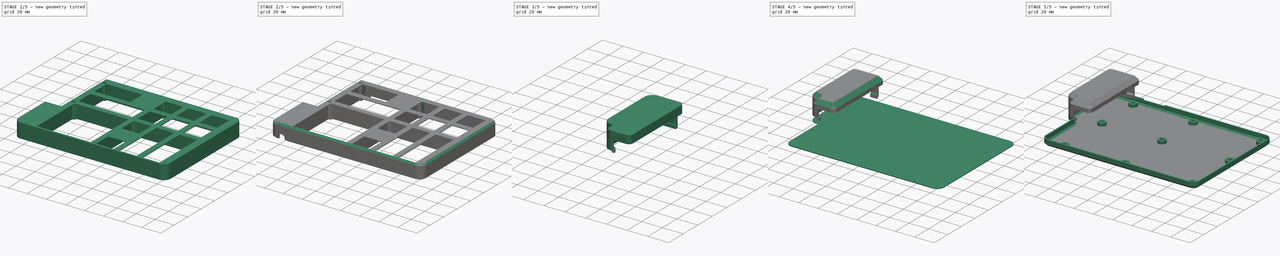
[diagram: build sequence overview — one tinted view per stage of 5, left to right]
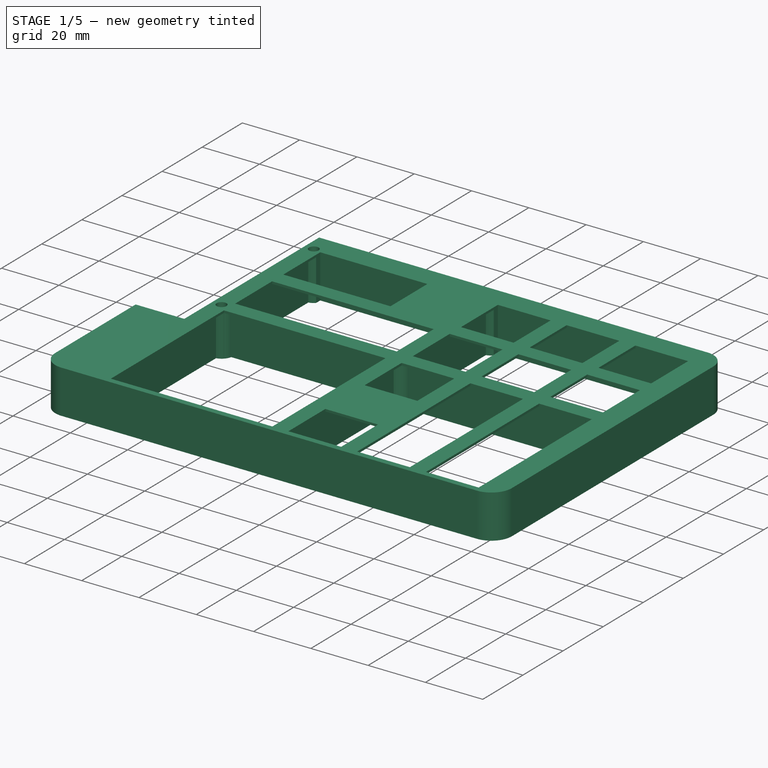
[diagram: stage 1 of 5 — iso view after this stage's code; geometry added in this stage tinted green]
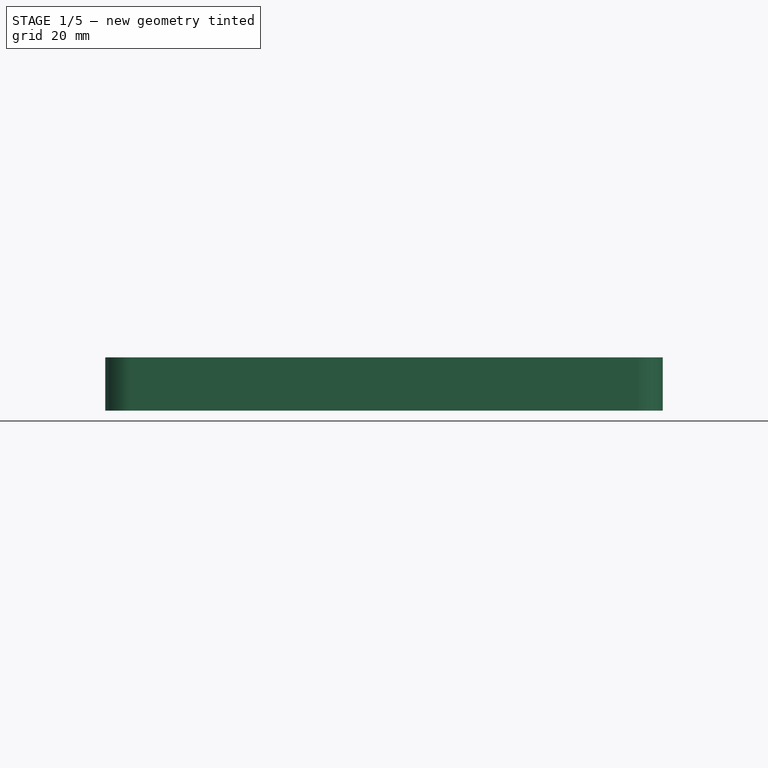
[diagram: stage 1 of 5 — front view after this stage's code; geometry added in this stage tinted green]
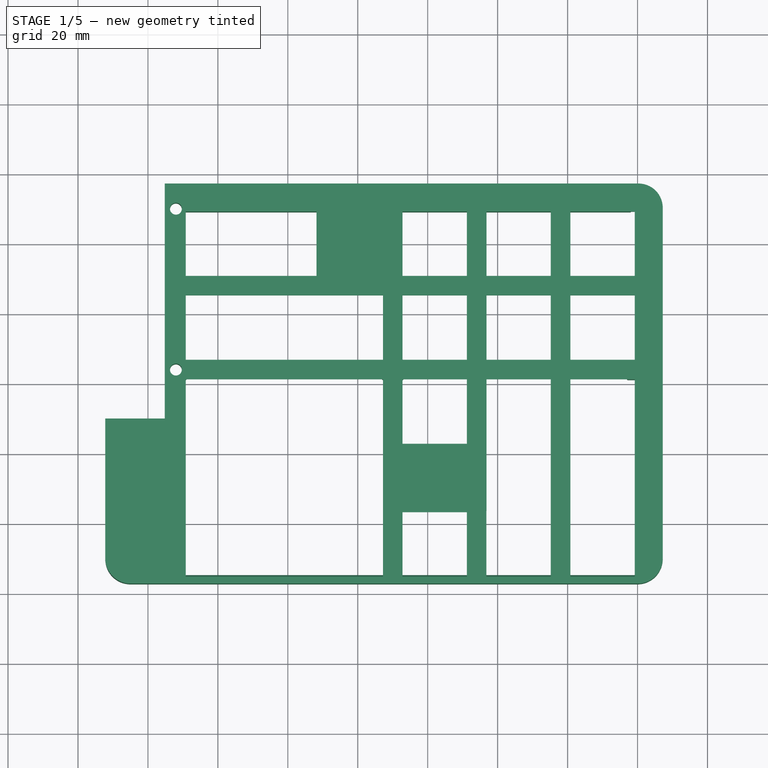
[diagram: stage 1 of 5 — top view after this stage's code; geometry added in this stage tinted green]
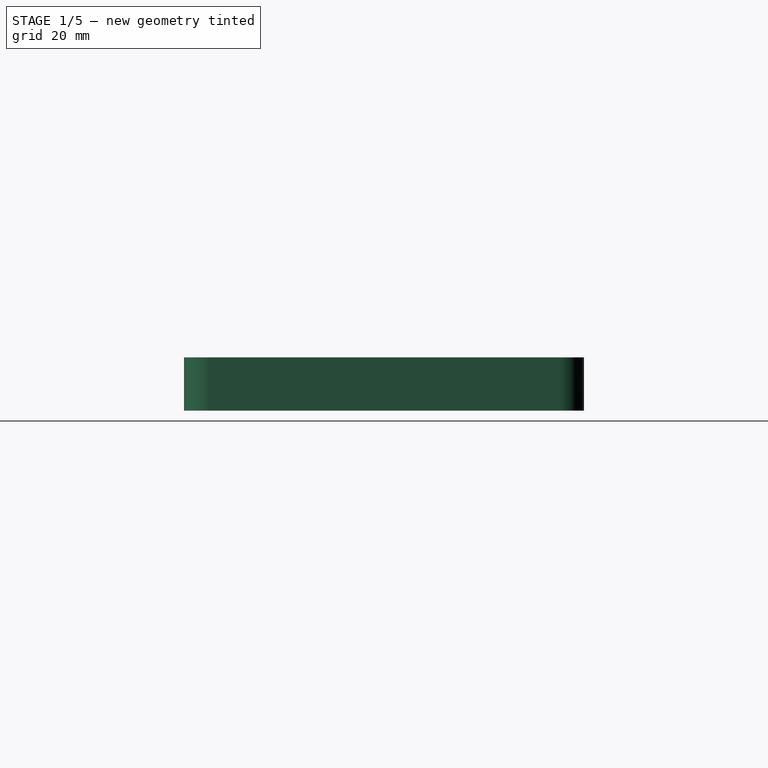
[diagram: stage 1 of 5 — right view after this stage's code; geometry added in this stage tinted green]
FCSTD DOCUMENT  (FreeCAD 2023.131R26244 +5365 (Git))
Label: KeyPadBox
License: All rights reserved
LicenseURL: http://en.wikipedia.org/wiki/All_rights_reserved
objects: Sketcher::SketchObject×36, PartDesign::Pocket×18, PartDesign::Pad×16, PartDesign::Chamfer×14, Part::SubShapeBinder×6, PartDesign::Plane×3, PartDesign::Body×3, PartDesign::SubShapeBinder×2, Part::Feature×1, App::Part×1, Spreadsheet::Sheet×1, PartDesign::Fillet×1
note: 234 computed .brp shape members not serialized (recipe doc carries the construction recipe); baked Part::Feature solids carry a one-line shape summary decoded from their .brp

FEATURE [Sketcher::SketchObject] Sketch008
  ArcFitTolerance = 1e-06
  AttachmentSupport = -> [XY_Plane]
  ExternalBSplineMaxDegree = 5
  ExternalBSplineTolerance = 0.0001
  ExternalGeometry = -> [Import]
  FixShape = 1
  FullyConstrained = true
  InternalTolerance = 1e-06
  InvalidShape = false
  MakeInternals = false
  MapMode = 5
  Support = -> [XY_Plane]
  TreeRank = 218
  ValidateShape = false
  sketch-geometry (5):
    g0: LineSegment StartX=89.5 StartY=-116.5 StartZ=0 EndX=89.5 EndY=-135.5 EndZ=0
    g1: LineSegment StartX=89.5 StartY=-135.5 StartZ=0 EndX=108.5 EndY=-135.5 EndZ=0
    g2: LineSegment StartX=108.5 StartY=-135.5 StartZ=0 EndX=108.5 EndY=-116.5 EndZ=0
    g3: LineSegment StartX=108.5 StartY=-116.5 StartZ=0 EndX=89.5 EndY=-116.5 EndZ=0
    g4: GeomPoint [constr] X=99 Y=-126 Z=0
  constraints (12):
    c: Coincident(g0,g1)
    c: Coincident(g1,g2)
    c: Coincident(g2,g3)
    c: Coincident(g3,g0)
    c: Horizontal(g1)
    c: Horizontal(g3)
    c: Vertical(g0)
    c: Vertical(g2)
    c: Symmetric(g1,g0,g4)
    c: Coincident(g4,g-3)
    c: Equal(g1,g2)
    c: Distance(g1) = 19
FEATURE [PartDesign::Body] Body  label="Bottom"
  AutoGroupSolids = false
  ClaimAllChildren = false
  ExportMode = 0
  FixShape = 1
  Group = -> [DatumPlane,Import,Sketch,Pad,Sketch001,Pad001,Chamfer,Sketch002,Pad002,Sketch003,Pocket,Sketch004,Pad003,Sketch005,Pad004,Sketch006,Pocket001,Sketch007,Pad005,Chamfer001,Chamfer002,Sketch008]
  InvalidShape = false
  Origin = -> Origin
  Tip = -> Chamfer002
  TreeRank = 192
  ValidateShape = false
  _ExportChildren = -> [DatumPlane,Import,Pad,Pad001,Chamfer,Pad002,Pocket,Pad003,Pad004,Pocket001,Pad005,Chamfer001,Chamfer002,Sketch008]
  _GroupVersion = 1
FEATURE [Part::SubShapeBinder] Import001  label="Import001(GrblHAL_Keypad PCB)"
  BindCopyOnChange = 0
  BindMode = 0
  ClaimChildren = false
  Context = -> Body001 [Import001.]
  EdgeTolerance = 1e-06
  FillStyle = 0
  FixShape = 1
  Fuse = false
  InvalidShape = false
  MakeFace = false
  MergeEdges = true
  OffsetFill = false
  OffsetIntersection = false
  OffsetJoinType = 0
  OffsetOpenResult = false
  Outline = false
  PartialLoad = false
  Relative = true
  SplitEdges = false
  Support = -> [Part006[Solid004.]]
  TightBound = false
  TreeRank = 232
  ValidateShape = false
  _Version = 8
FEATURE [PartDesign::Plane] DatumPlane001
  AttachmentOffset = pos=(0,0,14.4) rot=(0,0,1;0rad)
  AttachmentSupport = -> [Import001]
  FixShape = 1
  InvalidShape = false
  Length = 207.2
  MapMode = 5
  MinimumLength = 10
  MinimumWidth = 10
  Placement = pos=(0,0,16) rot=(0,0,1;0rad)
  ResizeMode = 0
  Support = -> [Import001]
  TreeRank = 231
  ValidateShape = false
  Width = 137.2
  expr: AttachmentOffset.Base.z = <<Vars>>.Top2PcbSpace
FEATURE [Part::SubShapeBinder] Import002  label="Import002(Chamfer002)"
  BindCopyOnChange = 0
  BindMode = 0
  ClaimChildren = false
  Context = -> Body001 [Import002.]
  EdgeTolerance = 1e-06
  FillStyle = 0
  FixShape = 1
  Fuse = false
  InvalidShape = false
  MakeFace = false
  MergeEdges = true
  OffsetFill = false
  OffsetIntersection = false
  OffsetJoinType = 0
  OffsetOpenResult = false
  Outline = false
  PartialLoad = false
  Relative = true
  SplitEdges = false
  Support = -> [Body[Chamfer002.]]
  TightBound = false
  TreeRank = 234
  ValidateShape = false
  _Version = 8
FEATURE [Sketcher::SketchObject] Sketch009
  ArcFitTolerance = 1e-06
  AttachmentSupport = -> [DatumPlane001]
  ExternalBSplineMaxDegree = 5
  ExternalBSplineTolerance = 0.0001
  ExternalGeometry = -> [Import001,Import002]
  FixShape = 1
  FullyConstrained = true
  InternalTolerance = 1e-06
  InvalidShape = false
  MakeInternals = false
  MapMode = 5
  Placement = pos=(0,0,16) rot=(0,0,1;0rad)
  Support = -> [DatumPlane001]
  TreeRank = 235
  ValidateShape = false
  expr: Constraints[336] = <<Vars>>.CapOpening
  sketch-geometry (163):
    g0: LineSegment StartX=70.8 StartY=-116.8 StartZ=0 EndX=70.8 EndY=-135.2 EndZ=0
    g1: LineSegment StartX=70.8 StartY=-135.2 StartZ=0 EndX=89.2 EndY=-135.2 EndZ=0
    g2: LineSegment [constr] StartX=89.2 StartY=-135.2 StartZ=0 EndX=89.2 EndY=-116.8 EndZ=0
    g3: LineSegment [constr] StartX=89.2 StartY=-116.8 StartZ=0 EndX=70.8 EndY=-116.8 EndZ=0
    g4: GeomPoint [constr] X=80 Y=-126 Z=0
    g5: LineSegment [constr] StartX=89.8 StartY=-116.8 StartZ=0 EndX=89.8 EndY=-135.2 EndZ=0
    g6: LineSegment StartX=89.8 StartY=-135.2 StartZ=0 EndX=108.2 EndY=-135.2 EndZ=0
    g7: LineSegment [constr] StartX=108.2 StartY=-135.2 StartZ=0 EndX=108.2 EndY=-116.8 EndZ=0
    g8: LineSegment [constr] StartX=108.2 StartY=-116.8 StartZ=0 EndX=89.8 EndY=-116.8 EndZ=0
    g9: GeomPoint [constr] X=99 Y=-126 Z=0
    g10: LineSegment StartX=127.2 StartY=-135.2 StartZ=0 EndX=127.2 EndY=-116.8 EndZ=0
    g11: LineSegment [constr] StartX=127.2 StartY=-116.8 StartZ=0 EndX=108.8 EndY=-116.8 EndZ=0
    g12: LineSegment [constr] StartX=108.8 StartY=-116.8 StartZ=0 EndX=108.8 EndY=-135.2 EndZ=0
    g13: LineSegment StartX=108.8 StartY=-135.2 StartZ=0 EndX=127.2 EndY=-135.2 EndZ=0
    g14: GeomPoint [constr] X=118 Y=-126 Z=0
    g15: LineSegment StartX=132.8 StartY=-116.8 StartZ=0 EndX=132.8 EndY=-135.2 EndZ=0
    g16: LineSegment StartX=132.8 StartY=-135.2 StartZ=0 EndX=151.2 EndY=-135.2 EndZ=0
    g17: LineSegment StartX=151.2 StartY=-135.2 StartZ=0 EndX=151.2 EndY=-116.8 EndZ=0
    g18: LineSegment StartX=151.2 StartY=-116.8 StartZ=0 EndX=132.8 EndY=-116.8 EndZ=0
    g19: GeomPoint [constr] X=142 Y=-126 Z=0
    g20: LineSegment StartX=156.785 StartY=-116.8 StartZ=0 EndX=156.785 EndY=-135.2 EndZ=0
    g21: LineSegment StartX=156.785 StartY=-135.2 StartZ=0 EndX=175.185 EndY=-135.2 EndZ=0
    g22: LineSegment StartX=175.185 StartY=-135.2 StartZ=0 EndX=175.185 EndY=-116.8 EndZ=0
    g23: LineSegment [constr] StartX=175.185 StartY=-116.8 StartZ=0 EndX=156.785 EndY=-116.8 EndZ=0
    g24: GeomPoint [constr] X=165.985 Y=-126 Z=0
    g25: LineSegment StartX=180.8 StartY=-116.8 StartZ=0 EndX=180.8 EndY=-135.2 EndZ=0
    g26: LineSegment StartX=180.8 StartY=-135.2 StartZ=0 EndX=199.2 EndY=-135.2 EndZ=0
    g27: LineSegment StartX=199.2 StartY=-135.2 StartZ=0 EndX=199.2 EndY=-116.8 EndZ=0
    g28: LineSegment [constr] StartX=199.2 StartY=-116.8 StartZ=0 EndX=180.8 EndY=-116.8 EndZ=0
    g29: GeomPoint [constr] X=190 Y=-126 Z=0
    g30: LineSegment StartX=180.8 StartY=-97.8 StartZ=0 EndX=180.8 EndY=-116.2 EndZ=0
    g31: LineSegment [constr] StartX=180.8 StartY=-116.2 StartZ=0 EndX=199.2 EndY=-116.2 EndZ=0
    g32: LineSegment StartX=199.2 StartY=-116.2 StartZ=0 EndX=199.2 EndY=-97.8 EndZ=0
    g33: LineSegment [constr] StartX=199.2 StartY=-97.8 StartZ=0 EndX=180.8 EndY=-97.8 EndZ=0
    g34: GeomPoint [constr] X=190 Y=-107 Z=0
    g35: LineSegment StartX=156.8 StartY=-97.8 StartZ=0 EndX=156.8 EndY=-116.2 EndZ=0
    g36: LineSegment [constr] StartX=156.8 StartY=-116.2 StartZ=0 EndX=175.2 EndY=-116.2 EndZ=0
    g37: LineSegment StartX=175.2 StartY=-116.2 StartZ=0 EndX=175.2 EndY=-97.8 EndZ=0
    g38: LineSegment [constr] StartX=175.2 StartY=-97.8 StartZ=0 EndX=156.8 EndY=-97.8 EndZ=0
    g39: GeomPoint [constr] X=166 Y=-107 Z=0
    g40: GeomPoint [constr] X=142 Y=-107 Z=0
    g41: LineSegment [constr] StartX=108.8 StartY=-97.8 StartZ=0 EndX=108.8 EndY=-116.2 EndZ=0
    g42: LineSegment [constr] StartX=108.8 StartY=-116.2 StartZ=0 EndX=127.2 EndY=-116.2 EndZ=0
    g43: LineSegment StartX=127.2 StartY=-116.2 StartZ=0 EndX=127.2 EndY=-97.8 EndZ=0
    g44: LineSegment [constr] StartX=127.2 StartY=-97.8 StartZ=0 EndX=108.8 EndY=-97.8 EndZ=0
    g45: GeomPoint [constr] X=118 Y=-107 Z=0
    g46: LineSegment [constr] StartX=89.8 StartY=-97.8 StartZ=0 EndX=89.8 EndY=-116.2 EndZ=0
    g47: LineSegment [constr] StartX=89.8 StartY=-116.2 StartZ=0 EndX=108.2 EndY=-116.2 EndZ=0
    g48: LineSegment [constr] StartX=108.2 StartY=-116.2 StartZ=0 EndX=108.2 EndY=-97.8 EndZ=0
    g49: LineSegment [constr] StartX=108.2 StartY=-97.8 StartZ=0 EndX=89.8 EndY=-97.8 EndZ=0
    g50: GeomPoint [constr] X=99 Y=-107 Z=0
    g51: LineSegment StartX=70.8 StartY=-97.8 StartZ=0 EndX=70.8 EndY=-116.2 EndZ=0
    g52: LineSegment [constr] StartX=70.8 StartY=-116.2 StartZ=0 EndX=89.2 EndY=-116.2 EndZ=0
    g53: LineSegment [constr] StartX=89.2 StartY=-116.2 StartZ=0 EndX=89.2 EndY=-97.8 EndZ=0
    g54: LineSegment [constr] StartX=89.2 StartY=-97.8 StartZ=0 EndX=70.8 EndY=-97.8 EndZ=0
    g55: GeomPoint [constr] X=80 Y=-107 Z=0
    g56: LineSegment StartX=70.8 StartY=-78.8 StartZ=0 EndX=70.8 EndY=-97.2 EndZ=0
    g57: LineSegment [constr] StartX=70.8 StartY=-97.2 StartZ=0 EndX=89.2 EndY=-97.2 EndZ=0
    g58: LineSegment [constr] StartX=89.2 StartY=-97.2 StartZ=0 EndX=89.2 EndY=-78.8 EndZ=0
    g59: LineSegment StartX=89.2 StartY=-78.8 StartZ=0 EndX=70.8 EndY=-78.8 EndZ=0
    g60: GeomPoint [constr] X=80 Y=-88 Z=0
    g61: LineSegment [constr] StartX=89.8 StartY=-78.8 StartZ=0 EndX=89.8 EndY=-97.2 EndZ=0
    g62: LineSegment [constr] StartX=89.8 StartY=-97.2 StartZ=0 EndX=108.2 EndY=-97.2 EndZ=0
    g63: LineSegment [constr] StartX=108.2 StartY=-97.2 StartZ=0 EndX=108.2 EndY=-78.8 EndZ=0
    g64: LineSegment StartX=108.2 StartY=-78.8 StartZ=0 EndX=89.8 EndY=-78.8 EndZ=0
    g65: GeomPoint [constr] X=99 Y=-88 Z=0
    g66: LineSegment [constr] StartX=108.8 StartY=-78.8 StartZ=0 EndX=108.8 EndY=-97.2 EndZ=0
    g67: LineSegment [constr] StartX=108.8 StartY=-97.2 StartZ=0 EndX=127.2 EndY=-97.2 EndZ=0
    g68: LineSegment StartX=127.2 StartY=-97.2 StartZ=0 EndX=127.2 EndY=-78.8 EndZ=0
    g69: LineSegment StartX=127.2 StartY=-78.8 StartZ=0 EndX=108.8 EndY=-78.8 EndZ=0
    g70: GeomPoint [constr] X=118 Y=-88 Z=0
    g71: LineSegment StartX=132.8 StartY=-78.8 StartZ=0 EndX=132.8 EndY=-97.2 EndZ=0
    g72: LineSegment StartX=132.8 StartY=-97.2 StartZ=0 EndX=151.2 EndY=-97.2 EndZ=0
    g73: LineSegment StartX=151.2 StartY=-97.2 StartZ=0 EndX=151.2 EndY=-78.8 EndZ=0
    g74: LineSegment StartX=151.2 StartY=-78.8 StartZ=0 EndX=132.8 EndY=-78.8 EndZ=0
    g75: GeomPoint [constr] X=142 Y=-88 Z=0
    g76: LineSegment StartX=156.8 StartY=-78.8 StartZ=0 EndX=156.8 EndY=-97.2 EndZ=0
    g77: LineSegment [constr] StartX=156.8 StartY=-97.2 StartZ=0 EndX=175.2 EndY=-97.2 EndZ=0
    g78: LineSegment StartX=175.2 StartY=-97.2 StartZ=0 EndX=175.2 EndY=-78.8 EndZ=0
    g79: LineSegment StartX=175.2 StartY=-78.8 StartZ=0 EndX=156.8 EndY=-78.8 EndZ=0
    g80: GeomPoint [constr] X=166 Y=-88 Z=0
    g81: LineSegment StartX=180.8 StartY=-78.8 StartZ=0 EndX=180.8 EndY=-97.2 EndZ=0
    g82: LineSegment [constr] StartX=180.8 StartY=-97.2 StartZ=0 EndX=199.2 EndY=-97.2 EndZ=0
    g83: LineSegment StartX=199.2 StartY=-97.2 StartZ=0 EndX=199.2 EndY=-78.8 EndZ=0
    g84: LineSegment StartX=199.2 StartY=-78.8 StartZ=0 EndX=180.8 EndY=-78.8 EndZ=0
    g85: GeomPoint [constr] X=190 Y=-88 Z=0
    g86: LineSegment StartX=180.8 StartY=-54.8 StartZ=0 EndX=180.8 EndY=-73.2 EndZ=0
    g87: LineSegment StartX=180.8 StartY=-73.2 StartZ=0 EndX=199.2 EndY=-73.2 EndZ=0
    g88: LineSegment StartX=199.2 StartY=-73.2 StartZ=0 EndX=199.2 EndY=-54.8 EndZ=0
    g89: LineSegment StartX=199.2 StartY=-54.8 StartZ=0 EndX=180.8 EndY=-54.8 EndZ=0
    g90: GeomPoint [constr] X=190 Y=-64 Z=0
    g91: LineSegment StartX=156.8 StartY=-54.8 StartZ=0 EndX=156.8 EndY=-73.2 EndZ=0
    g92: LineSegment StartX=156.8 StartY=-73.2 StartZ=0 EndX=175.2 EndY=-73.2 EndZ=0
    g93: LineSegment StartX=175.2 StartY=-73.2 StartZ=0 EndX=175.2 EndY=-54.8 EndZ=0
    g94: LineSegment StartX=175.2 StartY=-54.8 StartZ=0 EndX=156.8 EndY=-54.8 EndZ=0
    g95: GeomPoint [constr] X=166 Y=-64 Z=0
    g96: LineSegment StartX=156.8 StartY=-30.8 StartZ=0 EndX=156.8 EndY=-49.2 EndZ=0
    g97: LineSegment StartX=156.8 StartY=-49.2 StartZ=0 EndX=175.2 EndY=-49.2 EndZ=0
    g98: LineSegment StartX=175.2 StartY=-49.2 StartZ=0 EndX=175.2 EndY=-30.8 EndZ=0
    g99: LineSegment StartX=175.2 StartY=-30.8 StartZ=0 EndX=156.8 EndY=-30.8 EndZ=0
    g100: GeomPoint [constr] X=166 Y=-40 Z=0
    g101: LineSegment StartX=180.8 StartY=-30.8 StartZ=0 EndX=180.8 EndY=-49.2 EndZ=0
    g102: LineSegment StartX=180.8 StartY=-49.2 StartZ=0 EndX=199.2 EndY=-49.2 EndZ=0
    g103: LineSegment StartX=199.2 StartY=-49.2 StartZ=0 EndX=199.2 EndY=-30.8 EndZ=0
    g104: LineSegment StartX=199.2 StartY=-30.8 StartZ=0 EndX=180.8 EndY=-30.8 EndZ=0
    g105: GeomPoint [constr] X=190 Y=-40 Z=0
    g106: LineSegment StartX=132.8 StartY=-30.8 StartZ=0 EndX=132.8 EndY=-49.2 EndZ=0
    g107: LineSegment StartX=132.8 StartY=-49.2 StartZ=0 EndX=151.2 EndY=-49.2 EndZ=0
    g108: LineSegment StartX=151.2 StartY=-49.2 StartZ=0 EndX=151.2 EndY=-30.8 EndZ=0
    g109: LineSegment StartX=151.2 StartY=-30.8 StartZ=0 EndX=132.8 EndY=-30.8 EndZ=0
    g110: GeomPoint [constr] X=142 Y=-40 Z=0
    g111: LineSegment [constr] StartX=89.8 StartY=-30.8 StartZ=0 EndX=89.8 EndY=-49.2 EndZ=0
    g112: LineSegment StartX=89.8 StartY=-49.2 StartZ=0 EndX=108.2 EndY=-49.2 EndZ=0
    g113: LineSegment StartX=108.2 StartY=-49.2 StartZ=0 EndX=108.2 EndY=-30.8 EndZ=0
    g114: LineSegment StartX=108.2 StartY=-30.8 StartZ=0 EndX=89.8 EndY=-30.8 EndZ=0
    g115: GeomPoint [constr] X=99 Y=-40 Z=0
    g116: LineSegment StartX=70.8 StartY=-30.8 StartZ=0 EndX=70.8 EndY=-49.2 EndZ=0
    g117: LineSegment StartX=70.8 StartY=-49.2 StartZ=0 EndX=89.2 EndY=-49.2 EndZ=0
    g118: LineSegment [constr] StartX=89.2 StartY=-49.2 StartZ=0 EndX=89.2 EndY=-30.8 EndZ=0
    g119: LineSegment StartX=89.2 StartY=-30.8 StartZ=0 EndX=70.8 EndY=-30.8 EndZ=0
    g120: GeomPoint [constr] X=80 Y=-40 Z=0
    g121: LineSegment StartX=70.8 StartY=-54.8 StartZ=0 EndX=70.8 EndY=-73.2 EndZ=0
    g122: LineSegment StartX=70.8 StartY=-73.2 StartZ=0 EndX=89.2 EndY=-73.2 EndZ=0
    g123: LineSegment [constr] StartX=89.2 StartY=-73.2 StartZ=0 EndX=89.2 EndY=-54.8 EndZ=0
    g124: LineSegment StartX=89.2 StartY=-54.8 StartZ=0 EndX=70.8 EndY=-54.8 EndZ=0
    g125: GeomPoint [constr] X=80 Y=-64 Z=0
    g126: LineSegment [constr] StartX=89.8 StartY=-54.8 StartZ=0 EndX=89.8 EndY=-73.2 EndZ=0
    g127: LineSegment StartX=89.8 StartY=-73.2 StartZ=0 EndX=108.2 EndY=-73.2 EndZ=0
    g128: LineSegment [constr] StartX=108.2 StartY=-73.2 StartZ=0 EndX=108.2 EndY=-54.8 EndZ=0
    g129: LineSegment StartX=108.2 StartY=-54.8 StartZ=0 EndX=89.8 EndY=-54.8 EndZ=0
    g130: GeomPoint [constr] X=99 Y=-64 Z=0
    g131: LineSegment [constr] StartX=108.8 StartY=-54.8 StartZ=0 EndX=108.8 EndY=-73.2 EndZ=0
    g132: LineSegment StartX=108.8 StartY=-73.2 StartZ=0 EndX=127.2 EndY=-73.2 EndZ=0
    g133: LineSegment StartX=127.2 StartY=-73.2 StartZ=0 EndX=127.2 EndY=-54.8 EndZ=0
    g134: LineSegment StartX=127.2 StartY=-54.8 StartZ=0 EndX=108.8 EndY=-54.8 EndZ=0
    g135: GeomPoint [constr] X=118 Y=-64 Z=0
    g136: LineSegment StartX=132.8 StartY=-54.8 StartZ=0 EndX=132.8 EndY=-73.2 EndZ=0
    g137: LineSegment StartX=132.8 StartY=-73.2 StartZ=0 EndX=151.2 EndY=-73.2 EndZ=0
    g138: LineSegment StartX=151.2 StartY=-73.2 StartZ=0 EndX=151.2 EndY=-54.8 EndZ=0
    g139: LineSegment StartX=151.2 StartY=-54.8 StartZ=0 EndX=132.8 EndY=-54.8 EndZ=0
    g140: GeomPoint [constr] X=142 Y=-64 Z=0
    g141: LineSegment StartX=89.2 StartY=-78.8 StartZ=0 EndX=89.8 EndY=-78.8 EndZ=0
    g142: LineSegment StartX=108.2 StartY=-78.8 StartZ=0 EndX=108.8 EndY=-78.8 EndZ=0
    g143: LineSegment StartX=70.8 StartY=-97.8 StartZ=0 EndX=70.8 EndY=-97.2 EndZ=0
    g144: LineSegment StartX=70.8 StartY=-116.8 StartZ=0 EndX=70.8 EndY=-116.2 EndZ=0
    g145: LineSegment StartX=89.2 StartY=-135.2 StartZ=0 EndX=89.8 EndY=-135.2 EndZ=0
    g146: LineSegment StartX=108.2 StartY=-135.2 StartZ=0 EndX=108.8 EndY=-135.2 EndZ=0
    g147: LineSegment StartX=127.2 StartY=-116.8 StartZ=0 EndX=127.2 EndY=-116.2 EndZ=0
    g148: LineSegment StartX=127.2 StartY=-97.8 StartZ=0 EndX=127.2 EndY=-97.2 EndZ=0
    g149: LineSegment StartX=156.8 StartY=-97.2 StartZ=0 EndX=156.8 EndY=-97.8 EndZ=0
    g150: LineSegment StartX=156.8 StartY=-116.2 StartZ=0 EndX=156.785 EndY=-116.8 EndZ=0
    g151: LineSegment StartX=175.2 StartY=-97.2 StartZ=0 EndX=175.2 EndY=-97.8 EndZ=0
    g152: LineSegment StartX=175.2 StartY=-116.2 StartZ=0 EndX=175.185 EndY=-116.8 EndZ=0
    g153: LineSegment StartX=180.8 StartY=-97.2 StartZ=0 EndX=180.8 EndY=-97.8 EndZ=0
    g154: LineSegment StartX=199.2 StartY=-97.2 StartZ=0 EndX=199.2 EndY=-97.8 EndZ=0
    g155: LineSegment StartX=180.8 StartY=-116.2 StartZ=0 EndX=180.8 EndY=-116.8 EndZ=0
    g156: LineSegment StartX=199.2 StartY=-116.2 StartZ=0 EndX=199.2 EndY=-116.8 EndZ=0
    g157: LineSegment StartX=89.2 StartY=-73.2 StartZ=0 EndX=89.8 EndY=-73.2 EndZ=0
    g158: LineSegment StartX=108.2 StartY=-73.2 StartZ=0 EndX=108.8 EndY=-73.2 EndZ=0
    g159: LineSegment StartX=108.8 StartY=-54.8 StartZ=0 EndX=108.2 EndY=-54.8 EndZ=0
    g160: LineSegment StartX=89.8 StartY=-54.8 StartZ=0 EndX=89.2 EndY=-54.8 EndZ=0
    g161: LineSegment StartX=89.8 StartY=-49.2 StartZ=0 EndX=89.2 EndY=-49.2 EndZ=0
    g162: LineSegment StartX=89.8 StartY=-30.8 StartZ=0 EndX=89.2 EndY=-30.8 EndZ=0
  constraints (381):
    c: Coincident(g0,g1)
    c: Coincident(g1,g2)
    c: Coincident(g2,g3)
    c: Coincident(g3,g0)
    c: Horizontal(g1)
    c: Horizontal(g3)
    c: Vertical(g0)
    c: Vertical(g2)
    c: Symmetric(g1,g0,g4)
    c: Coincident(g4,g-3)
    c: Coincident(g5,g6)
    c: Coincident(g6,g7)
    c: Coincident(g7,g8)
    c: Coincident(g8,g5)
    c: Horizontal(g6)
    c: Horizontal(g8)
    c: Vertical(g5)
    c: Vertical(g7)
    c: Symmetric(g6,g5,g9)
    c: Coincident(g9,g-4)
    c: Coincident(g10,g11)
    c: Coincident(g11,g12)
    c: Coincident(g12,g13)
    c: Coincident(g13,g10)
    c: Horizontal(g11)
    c: Horizontal(g13)
    c: Vertical(g10)
    c: Vertical(g12)
    c: Symmetric(g11,g10,g14)
    c: Coincident(g14,g-5)
    c: Coincident(g15,g16)
    c: Coincident(g16,g17)
    c: Coincident(g17,g18)
    c: Coincident(g18,g15)
    c: Horizontal(g16)
    c: Horizontal(g18)
    c: Vertical(g15)
    c: Vertical(g17)
    c: Symmetric(g16,g15,g19)
    c: Coincident(g19,g-29)
    c: Coincident(g20,g21)
    c: Coincident(g21,g22)
    c: Coincident(g22,g23)
    c: Coincident(g23,g20)
    c: Horizontal(g21)
    c: Horizontal(g23)
    c: Vertical(g20)
    c: Vertical(g22)
    c: Symmetric(g21,g20,g24)
    c: Coincident(g24,g-32)
    c: Coincident(g25,g26)
    c: Coincident(g26,g27)
    c: Coincident(g27,g28)
    c: Coincident(g28,g25)
    c: Horizontal(g26)
    c: Horizontal(g28)
    c: Vertical(g25)
    c: Vertical(g27)
    c: Symmetric(g26,g25,g29)
    c: Coincident(g29,g-33)
    c: Coincident(g30,g31)
    c: Coincident(g31,g32)
    c: Coincident(g32,g33)
    c: Coincident(g33,g30)
    c: Horizontal(g31)
    c: Horizontal(g33)
    c: Vertical(g30)
    c: Vertical(g32)
    c: Symmetric(g31,g30,g34)
    c: Coincident(g34,g-31)
    c: Coincident(g35,g36)
    c: Coincident(g36,g37)
    c: Coincident(g37,g38)
    c: Coincident(g38,g35)
    c: Horizontal(g36)
    c: Horizontal(g38)
    c: Vertical(g35)
    c: Vertical(g37)
    c: Symmetric(g36,g35,g39)
    c: Coincident(g39,g-30)
    c: Coincident(g40,g-28)
    c: Coincident(g41,g42)
    c: Coincident(g42,g43)
    c: Coincident(g43,g44)
    c: Coincident(g44,g41)
    c: Horizontal(g42)
    c: Horizontal(g44)
    c: Vertical(g41)
    c: Vertical(g43)
    c: Symmetric(g42,g41,g45)
    c: Coincident(g45,g-15)
    c: Coincident(g46,g47)
    c: Coincident(g47,g48)
    c: Coincident(g48,g49)
    c: Coincident(g49,g46)
    c: Horizontal(g47)
    c: Horizontal(g49)
    c: Vertical(g46)
    c: Vertical(g48)
    c: Symmetric(g47,g46,g50)
    c: Coincident(g50,g-6)
    c: Coincident(g51,g52)
    c: Coincident(g52,g53)
    c: Coincident(g53,g54)
    c: Coincident(g54,g51)
    c: Horizontal(g52)
    c: Horizontal(g54)
    c: Vertical(g51)
    c: Vertical(g53)
    c: Symmetric(g52,g51,g55)
    c: Coincident(g55,g-7)
    c: Coincident(g56,g57)
    c: Coincident(g57,g58)
    c: Coincident(g58,g59)
    c: Coincident(g59,g56)
    c: Horizontal(g57)
    c: Horizontal(g59)
    c: Vertical(g56)
    c: Vertical(g58)
    c: Symmetric(g57,g56,g60)
    c: Coincident(g60,g-9)
    c: Coincident(g61,g62)
    c: Coincident(g62,g63)
    c: Coincident(g63,g64)
    c: Coincident(g64,g61)
    c: Horizontal(g62)
    c: Horizontal(g64)
    c: Vertical(g61)
    c: Vertical(g63)
    c: Symmetric(g62,g61,g65)
    c: Coincident(g65,g-10)
    c: Coincident(g66,g67)
    c: Coincident(g67,g68)
    c: Coincident(g68,g69)
    c: Coincident(g69,g66)
    c: Horizontal(g67)
    c: Horizontal(g69)
    c: Vertical(g66)
    c: Vertical(g68)
    c: Symmetric(g67,g66,g70)
    c: Coincident(g70,g-14)
    c: Coincident(g71,g72)
    c: Coincident(g72,g73)
    c: Coincident(g73,g74)
    c: Coincident(g74,g71)
    c: Horizontal(g72)
    c: Horizontal(g74)
    c: Vertical(g71)
    c: Vertical(g73)
    c: Symmetric(g72,g71,g75)
    c: Coincident(g75,g-27)
    c: Coincident(g76,g77)
    c: Coincident(g77,g78)
    c: Coincident(g78,g79)
    c: Coincident(g79,g76)
    c: Horizontal(g77)
    c: Horizontal(g79)
    c: Vertical(g76)
    c: Vertical(g78)
    c: Symmetric(g77,g76,g80)
    c: Coincident(g80,g-26)
    c: Coincident(g81,g82)
    c: Coincident(g82,g83)
    c: Coincident(g83,g84)
    c: Coincident(g84,g81)
    c: Horizontal(g82)
    c: Horizontal(g84)
    c: Vertical(g81)
    c: Vertical(g83)
    c: Symmetric(g82,g81,g85)
    c: Coincident(g85,g-25)
    c: Coincident(g86,g87)
    c: Coincident(g87,g88)
    c: Coincident(g88,g89)
    c: Coincident(g89,g86)
    c: Horizontal(g87)
    c: Horizontal(g89)
    c: Vertical(g86)
    c: Vertical(g88)
    c: Symmetric(g87,g86,g90)
    c: Coincident(g90,g-24)
    c: Coincident(g91,g92)
    c: Coincident(g92,g93)
    c: Coincident(g93,g94)
    c: Coincident(g94,g91)
    c: Horizontal(g92)
    c: Horizontal(g94)
    c: Vertical(g91)
    c: Vertical(g93)
    c: Symmetric(g92,g91,g95)
    c: Coincident(g95,g-23)
    c: Coincident(g96,g97)
    c: Coincident(g97,g98)
    c: Coincident(g98,g99)
    c: Coincident(g99,g96)
    c: Horizontal(g97)
    c: Horizontal(g99)
    c: Vertical(g96)
    c: Vertical(g98)
    c: Symmetric(g97,g96,g100)
    c: Coincident(g100,g-20)
    c: Coincident(g101,g102)
    c: Coincident(g102,g103)
    c: Coincident(g103,g104)
    c: Coincident(g104,g101)
    c: Horizontal(g102)
    c: Horizontal(g104)
    c: Vertical(g101)
    c: Vertical(g103)
    c: Symmetric(g102,g101,g105)
    c: Coincident(g105,g-22)
    c: Coincident(g106,g107)
    c: Coincident(g107,g108)
    c: Coincident(g108,g109)
    c: Coincident(g109,g106)
    c: Horizontal(g107)
    c: Horizontal(g109)
    c: Vertical(g106)
    c: Vertical(g108)
    c: Symmetric(g107,g106,g110)
    c: Coincident(g110,g-19)
    c: Coincident(g111,g112)
    c: Coincident(g112,g113)
    c: Coincident(g113,g114)
    c: Coincident(g114,g111)
    c: Horizontal(g112)
    c: Horizontal(g114)
    c: Vertical(g111)
    c: Vertical(g113)
    c: Symmetric(g112,g111,g115)
    c: Coincident(g115,g-17)
    c: Coincident(g116,g117)
    c: Coincident(g117,g118)
    c: Coincident(g118,g119)
    c: Coincident(g119,g116)
    c: Horizontal(g117)
    c: Horizontal(g119)
    c: Vertical(g116)
    c: Vertical(g118)
    c: Symmetric(g117,g116,g120)
    c: Coincident(g120,g-16)
    c: Coincident(g121,g122)
    c: Coincident(g122,g123)
    c: Coincident(g123,g124)
    c: Coincident(g124,g121)
    c: Horizontal(g122)
    c: Horizontal(g124)
    c: Vertical(g121)
    c: Vertical(g123)
    c: Symmetric(g122,g121,g125)
    c: Coincident(g125,g-11)
    c: Coincident(g126,g127)
    c: Coincident(g127,g128)
    c: Coincident(g128,g129)
    c: Coincident(g129,g126)
    c: Horizontal(g127)
    c: Horizontal(g129)
    c: Vertical(g126)
    c: Vertical(g128)
    c: Symmetric(g127,g126,g130)
    c: Coincident(g130,g-12)
    c: Coincident(g131,g132)
    c: Coincident(g132,g133)
    c: Coincident(g133,g134)
    c: Coincident(g134,g131)
    c: Horizontal(g132)
    c: Horizontal(g134)
    c: Vertical(g131)
    c: Vertical(g133)
    c: Symmetric(g132,g131,g135)
    c: Coincident(g135,g-13)
    c: Coincident(g136,g137)
    c: Coincident(g137,g138)
    c: Coincident(g138,g139)
    c: Coincident(g139,g136)
    c: Horizontal(g137)
    c: Horizontal(g139)
    c: Vertical(g136)
    c: Vertical(g138)
    c: Symmetric(g137,g136,g140)
    c: Coincident(g140,g-21)
    c: Equal(g51,g0)
    c: Equal(g0,g5)
    c: Equal(g5,g12)
    c: Equal(g12,g15)
    c: Equal(g15,g20)
    c: Equal(g20,g25)
    c: Equal(g25,g30)
    c: Equal(g30,g35)
    c: Equal(g35,g41)
    c: Equal(g41,g46)
    c: Equal(g46,g56)
    c: Equal(g56,g61)
    c: Equal(g61,g66)
    c: Equal(g66,g71)
    c: Equal(g71,g76)
    c: Equal(g76,g81)
    c: Equal(g81,g121)
    c: Equal(g121,g126)
    c: Equal(g126,g131)
    c: Equal(g131,g136)
    c: Equal(g136,g91)
    c: Equal(g91,g86)
    c: Equal(g86,g116)
    c: Equal(g116,g111)
    c: Equal(g111,g106)
    c: Equal(g106,g96)
    c: Equal(g96,g101)
    c: Equal(g117,g112)
    c: Equal(g112,g107)
    c: Equal(g107,g97)
    c: Equal(g97,g102)
    c: Equal(g102,g87)
    c: Equal(g87,g92)
    c: Equal(g92,g137)
    c: Equal(g137,g132)
    c: Equal(g132,g127)
    c: Equal(g127,g122)
    c: Equal(g122,g57)
    c: Equal(g57,g62)
    c: Equal(g62,g67)
    c: Equal(g67,g72)
    c: Equal(g72,g77)
    c: Equal(g77,g82)
    c: Equal(g82,g31)
    c: Equal(g31,g36)
    c: Equal(g36,g42)
    c: Equal(g42,g47)
    c: Equal(g47,g52)
    c: Equal(g52,g1)
    c: Equal(g1,g6)
    c: Equal(g6,g13)
    c: Equal(g13,g16)
    c: Equal(g16,g21)
    c: Equal(g21,g26)
    c: Equal(g117,g116)
    c: Distance(g3) = 18.4
    c: Coincident(g141,g59)
    c: Coincident(g141,g64)
    c: Coincident(g142,g64)
    c: Coincident(g142,g69)
    c: Coincident(g143,g51)
    c: Coincident(g143,g56)
    c: Coincident(g144,g0)
    c: Coincident(g144,g51)
    c: Coincident(g145,g1)
    c: Coincident(g145,g6)
    c: Coincident(g146,g6)
    c: Coincident(g146,g13)
    c: Coincident(g147,g10)
    c: Coincident(g147,g43)
    c: Coincident(g148,g43)
    c: Coincident(g148,g68)
    c: Coincident(g149,g76)
    c: Coincident(g149,g35)
    c: Coincident(g150,g35)
    c: Coincident(g150,g20)
    c: Coincident(g151,g78)
    c: Coincident(g151,g37)
    c: Coincident(g152,g37)
    c: Coincident(g152,g22)
    c: Coincident(g153,g81)
    c: Coincident(g153,g30)
    c: Coincident(g154,g83)
    c: Coincident(g154,g32)
    c: Coincident(g155,g30)
    c: Coincident(g155,g25)
    c: Coincident(g156,g32)
    c: Coincident(g156,g27)
    c: Coincident(g157,g122)
    c: Coincident(g157,g127)
    c: Coincident(g158,g127)
    c: Coincident(g158,g132)
    c: Coincident(g159,g134)
    c: Coincident(g159,g129)
    c: Coincident(g160,g129)
    c: Coincident(g160,g124)
    c: Coincident(g161,g112)
    c: Coincident(g161,g117)
    c: Coincident(g162,g114)
    c: Coincident(g162,g119)
FEATURE [PartDesign::Pad] Pad006
  AddSubType = 0
  AlongSketchNormal = false
  AutoTaperInnerAngle = true
  CheckUpToFaceLimits = true
  ClaimChildren = false
  Direction = (0,0,1)
  Fit = 0
  FitJoin = 0
  FixShape = 1
  InnerFit = 0
  InnerFitJoin = 0
  InvalidShape = false
  Length = 0.8
  Length2 = 100
  Linearize = true
  NewSolid = false
  Profile = -> Sketch009
  Refine = true
  Reversed = true
  Suppress = false
  TaperInnerAngle = 0
  TaperInnerAngleRev = 0
  TreeRank = 236
  Type = 0
  ValidateShape = false
  _ProfileBasedVersion = 1
  expr: Length = <<Vars>>.BoxThickHoriz
FEATURE [Sketcher::SketchObject] Sketch010
  ArcFitTolerance = 1e-06
  AttachmentSupport = -> [Pad006]
  ExternalBSplineMaxDegree = 5
  ExternalBSplineTolerance = 0.0001
  ExternalGeometry = -> [Import001]
  FixShape = 1
  FullyConstrained = true
  InternalTolerance = 1e-06
  InvalidShape = false
  MakeInternals = false
  MapMode = 5
  Placement = pos=(0,0,15.2) rot=(1,0,0;3.14159rad)
  Support = -> [Pad006]
  TreeRank = 237
  ValidateShape = false
  sketch-geometry (9):
    g0: Circle CenterX=68 CenterY=30 CenterZ=0 NormalX=0 NormalY=0 NormalZ=1 AngleXU=0 Radius=4
    g1: Circle CenterX=68 CenterY=76 CenterZ=0 NormalX=0 NormalY=0 NormalZ=1 AngleXU=0 Radius=4
    g2: Circle CenterX=130 CenterY=76 CenterZ=0 NormalX=0 NormalY=0 NormalZ=1 AngleXU=0 Radius=4
    g3: Circle CenterX=130 CenterY=30 CenterZ=0 NormalX=0 NormalY=0 NormalZ=1 AngleXU=0 Radius=4
    g4: Circle CenterX=200 CenterY=30 CenterZ=0 NormalX=0 NormalY=0 NormalZ=1 AngleXU=0 Radius=4
    g5: Circle CenterX=200 CenterY=76 CenterZ=0 NormalX=0 NormalY=0 NormalZ=1 AngleXU=0 Radius=4
    g6: Circle CenterX=200 CenterY=131 CenterZ=0 NormalX=0 NormalY=0 NormalZ=1 AngleXU=0 Radius=4
    g7: Circle CenterX=130 CenterY=131 CenterZ=0 NormalX=0 NormalY=0 NormalZ=1 AngleXU=0 Radius=4
    g8: Circle CenterX=68 CenterY=131 CenterZ=0 NormalX=0 NormalY=0 NormalZ=1 AngleXU=0 Radius=4
  constraints (18):
    c: Coincident(g0,g-3)
    c: Coincident(g1,g-4)
    c: Coincident(g2,g-6)
    c: Coincident(g3,g-9)
    c: Coincident(g4,g-10)
    c: Coincident(g5,g-7)
    c: Coincident(g6,g-11)
    c: Coincident(g7,g-8)
    c: Coincident(g8,g-5)
    c: Equal(g7,g8)
    c: Equal(g8,g6)
    c: Equal(g6,g5)
    c: Equal(g5,g2)
    c: Equal(g2,g1)
    c: Equal(g1,g0)
    c: Equal(g0,g3)
    c: Equal(g3,g4)
    c: Diameter(g8) = 8
FEATURE [PartDesign::Pad] Pad007
  AddSubType = 0
  AlongSketchNormal = false
  AutoTaperInnerAngle = true
  BaseFeature = -> Pad006
  CheckUpToFaceLimits = true
  ClaimChildren = false
  Direction = (0,0,-1)
  Fit = 0
  FitJoin = 0
  FixShape = 1
  InnerFit = 0
  InnerFitJoin = 0
  InvalidShape = false
  Length = 14.4
  Length2 = 100
  Linearize = true
  NewSolid = false
  Profile = -> Sketch010
  Refine = true
  Suppress = false
  TaperInnerAngle = 0
  TaperInnerAngleRev = 0
  TreeRank = 238
  Type = 0
  ValidateShape = false
  _ProfileBasedVersion = 1
  expr: Length = <<Vars>>.Top2PcbSpace
FEATURE [Sketcher::SketchObject] Sketch011
  ArcFitTolerance = 1e-06
  AttachmentSupport = -> [Pad007]
  ExternalBSplineMaxDegree = 5
  ExternalBSplineTolerance = 0.0001
  ExternalGeometry = -> [Pad007]
  FixShape = 1
  FullyConstrained = true
  InternalTolerance = 1e-06
  InvalidShape = false
  MakeInternals = false
  MapMode = 5
  Placement = pos=(0,0,16) rot=(0,0,1;0rad)
  Support = -> [Pad007]
  TreeRank = 239
  ValidateShape = false
FEATURE [PartDesign::Pocket] Pocket002
  AddSubType = 1
  AutoTaperInnerAngle = true
  BaseFeature = -> Pad007
  CheckUpToFaceLimits = true
  ClaimChildren = false
  Fit = 0
  FitJoin = 0
  FixShape = 1
  InnerFit = 0
  InnerFitJoin = 0
  InvalidShape = false
  Length = 5
  Length2 = 100
  Linearize = true
  NewSolid = false
  Profile = -> Sketch011
  Refine = true
  Suppress = false
  TaperInnerAngle = 0
  TaperInnerAngleRev = 0
  TreeRank = 240
  Type = 1
  ValidateShape = false
  _ProfileBasedVersion = 1
  _Version = 1
FEATURE [Sketcher::SketchObject] Sketch012
  ArcFitTolerance = 1e-06
  AttachmentSupport = -> [Pocket002]
  ExternalBSplineMaxDegree = 5
  ExternalBSplineTolerance = 0.0001
  ExternalGeometry = -> [Pocket002]
  FixShape = 1
  FullyConstrained = true
  InternalTolerance = 1e-06
  InvalidShape = false
  MakeInternals = false
  MapMode = 5
  Placement = pos=(0,0,15.2) rot=(1,0,0;3.14159rad)
  Support = -> [Pocket002]
  TreeRank = 241
  ValidateShape = false
  sketch-geometry (3):
    g0: LineSegment StartX=47.8 StartY=90 StartZ=0 EndX=64.8 EndY=90 EndZ=0
    g1: LineSegment StartX=64.8 StartY=90 StartZ=0 EndX=64.8 EndY=22.8 EndZ=0
    g2: LineSegment StartX=64.8 StartY=22.8 StartZ=0 EndX=45 EndY=22.8 EndZ=0
  constraints (8):
    c: Coincident(g0,g1)
    c: PointOnObject(g1,g-7)
    c: Vertical(g1)
    c: Coincident(g1,g2)
    c: Coincident(g2,g-7)
    c: Horizontal(g0)
    c: DistanceX(g-6,g1) = 27
    c: Coincident(g0,g-5)
FEATURE [PartDesign::Pocket] Pocket003
  AddSubType = 1
  AutoTaperInnerAngle = true
  BaseFeature = -> Pocket002
  CheckUpToFaceLimits = true
  ClaimChildren = false
  Fit = 0
  FitJoin = 0
  FixShape = 1
  InnerFit = 0
  InnerFitJoin = 0
  InvalidShape = false
  Length = 5
  Length2 = 100
  Linearize = true
  Midplane = true
  NewSolid = false
  Profile = -> Sketch012
  Refine = true
  Suppress = false
  TaperInnerAngle = 0
  TaperInnerAngleRev = 0
  TreeRank = 242
  Type = 1
  ValidateShape = false
  _ProfileBasedVersion = 1
  _Version = 1
FEATURE [Sketcher::SketchObject] Sketch013
  ArcFitTolerance = 1e-06
  AttachmentSupport = -> [Pocket003]
  ExternalBSplineMaxDegree = 5
  ExternalBSplineTolerance = 0.0001
  ExternalGeometry = -> [Pocket003]
  FixShape = 1
  FullyConstrained = false
  InternalTolerance = 1e-06
  InvalidShape = false
  MakeInternals = false
  MapMode = 5
  Placement = pos=(0,0,0.8) rot=(1,0,0;3.14159rad)
  Support = -> [Pocket003]
  TreeRank = 243
  ValidateShape = false
  expr: Constraints[9] = <<Vars>>.InsertHoleDiam
  sketch-geometry (7):
    g0: Circle CenterX=130 CenterY=30 CenterZ=0 NormalX=0 NormalY=0 NormalZ=1 AngleXU=0 Radius=2.1
    g1: Circle CenterX=130 CenterY=76 CenterZ=0 NormalX=0 NormalY=0 NormalZ=1 AngleXU=0 Radius=2.1
    g2: Circle CenterX=130 CenterY=131 CenterZ=0 NormalX=0 NormalY=0 NormalZ=1 AngleXU=0 Radius=2.1
    g3: Circle CenterX=200 CenterY=76 CenterZ=0 NormalX=0 NormalY=0 NormalZ=1 AngleXU=0 Radius=2.1
    g4: Circle CenterX=200 CenterY=30 CenterZ=0 NormalX=0 NormalY=0 NormalZ=1 AngleXU=0 Radius=2.1
    g5: Circle CenterX=200 CenterY=131 CenterZ=0 NormalX=0 NormalY=0 NormalZ=1 AngleXU=0 Radius=2.1
    g6: Circle CenterX=68 CenterY=131 CenterZ=0 NormalX=0 NormalY=0 NormalZ=1 AngleXU=0 Radius=2.1
  constraints (13):
    c: Coincident(g0,g-5)
    c: Coincident(g2,g-6)
    c: Coincident(g3,g-3)
    c: Coincident(g4,g-4)
    c: Coincident(g5,g-7)
    c: Equal(g0,g2)
    c: Equal(g2,g5)
    c: Equal(g5,g3)
    c: Equal(g3,g4)
    c: Diameter(g2) = 4.2
    c: Coincident(g6,g-8)
    c: Equal(g6,g2)
    c: Coincident(g1,g-9)
FEATURE [PartDesign::Pocket] Pocket004
  AddSubType = 1
  AutoTaperInnerAngle = true
  BaseFeature = -> Pocket003
  CheckUpToFaceLimits = true
  ClaimChildren = false
  Fit = 0
  FitJoin = 0
  FixShape = 1
  InnerFit = 0
  InnerFitJoin = 0
  InvalidShape = false
  Length = 10
  Length2 = 100
  Linearize = true
  NewSolid = false
  Profile = -> Sketch013
  Refine = true
  Suppress = false
  TaperInnerAngle = 0
  TaperInnerAngleRev = 0
  TreeRank = 244
  Type = 0
  ValidateShape = false
  _ProfileBasedVersion = 1
  _Version = 1
FEATURE [Sketcher::SketchObject] Sketch014
  ArcFitTolerance = 1e-06
  AttachmentSupport = -> [Pocket004]
  ExternalBSplineMaxDegree = 5
  ExternalBSplineTolerance = 0.0001
  ExternalGeometry = -> [Pocket004]
  FixShape = 1
  FullyConstrained = true
  InternalTolerance = 1e-06
  InvalidShape = false
  MakeInternals = false
  MapMode = 5
  Placement = pos=(0,0,0.8) rot=(1,0,0;3.14159rad)
  Support = -> [Pocket004]
  TreeRank = 245
  ValidateShape = false
FEATURE [Sketcher::SketchObject] Sketch015
  ArcFitTolerance = 1e-06
  AttachmentSupport = -> [Pocket004]
  ExternalBSplineMaxDegree = 5
  ExternalBSplineTolerance = 0.0001
  ExternalGeometry = -> [Pocket004]
  FixShape = 1
  FullyConstrained = true
  InternalTolerance = 1e-06
  InvalidShape = false
  MakeInternals = false
  MapMode = 5
  Placement = pos=(0,0,0.8) rot=(1,0,0;3.14159rad)
  Support = -> [Pocket004]
  TreeRank = 246
  ValidateShape = false
  expr: Constraints[2] = <<Vars>>.ScrewHoleDiam
  sketch-geometry (2):
    g0: Circle CenterX=68 CenterY=76 CenterZ=0 NormalX=0 NormalY=0 NormalZ=1 AngleXU=0 Radius=1.7
    g1: Circle CenterX=68 CenterY=30 CenterZ=0 NormalX=0 NormalY=0 NormalZ=1 AngleXU=0 Radius=1.7
  constraints (4):
    c: Coincident(g1,g-3)
    c: Equal(g0,g1)
    c: Diameter(g1) = 3.4
    c: Coincident(g0,g-4)
FEATURE [PartDesign::Pocket] Pocket005
  AddSubType = 1
  AutoTaperInnerAngle = true
  BaseFeature = -> Pocket004
  CheckUpToFaceLimits = true
  ClaimChildren = false
  Fit = 0
  FitJoin = 0
  FixShape = 1
  InnerFit = 0
  InnerFitJoin = 0
  InvalidShape = false
  Length = 5
  Length2 = 100
  Linearize = true
  NewSolid = false
  Profile = -> Sketch015
  Refine = true
  Suppress = false
  TaperInnerAngle = 0
  TaperInnerAngleRev = 0
  TreeRank = 247
  Type = 1
  ValidateShape = false
  _ProfileBasedVersion = 1
  _Version = 1
FEATURE [Sketcher::SketchObject] Sketch016
  ArcFitTolerance = 1e-06
  AttachmentSupport = -> [Pocket005]
  ExternalBSplineMaxDegree = 5
  ExternalBSplineTolerance = 0.0001
  ExternalGeometry = -> [Pocket005]
  FixShape = 1
  FullyConstrained = true
  InternalTolerance = 1e-06
  InvalidShape = false
  MakeInternals = false
  MapMode = 5
  Placement = pos=(0,0,0.8) rot=(1,0,0;3.14159rad)
  Support = -> [Pocket005]
  TreeRank = 248
  ValidateShape = false
  sketch-geometry (40):
    g0: LineSegment StartX=129.2 StartY=72.0808 StartZ=0 EndX=130.8 EndY=72.0808 EndZ=0
    g1: LineSegment StartX=130.8 StartY=72.0808 StartZ=0 EndX=130.8 EndY=33.9192 EndZ=0
    g2: LineSegment StartX=130.8 StartY=33.9192 StartZ=0 EndX=129.2 EndY=33.9192 EndZ=0
    g3: LineSegment StartX=129.2 StartY=33.9192 StartZ=0 EndX=129.2 EndY=72.0808 EndZ=0
    g4: LineSegment StartX=71.9192 StartY=30.8 StartZ=0 EndX=126.081 EndY=30.8 EndZ=0
    g5: LineSegment StartX=126.081 StartY=30.8 StartZ=0 EndX=126.081 EndY=29.2 EndZ=0
    g6: LineSegment StartX=126.081 StartY=29.2 StartZ=0 EndX=71.9192 EndY=29.2 EndZ=0
    g7: LineSegment StartX=71.9192 StartY=29.2 StartZ=0 EndX=71.9192 EndY=30.8 EndZ=0
    g8: LineSegment StartX=67.2 StartY=72.0808 StartZ=0 EndX=68.8 EndY=72.0808 EndZ=0
    g9: LineSegment StartX=68.8 StartY=72.0808 StartZ=0 EndX=68.8 EndY=33.9192 EndZ=0
    g10: LineSegment StartX=68.8 StartY=33.9192 StartZ=0 EndX=67.2 EndY=33.9192 EndZ=0
    g11: LineSegment StartX=67.2 StartY=33.9192 StartZ=0 EndX=67.2 EndY=72.0808 EndZ=0
    g12: LineSegment StartX=67.2 StartY=127.081 StartZ=0 EndX=68.8 EndY=127.081 EndZ=0
    g13: LineSegment StartX=68.8 StartY=127.081 StartZ=0 EndX=68.8 EndY=79.9192 EndZ=0
    g14: LineSegment StartX=68.8 StartY=79.9192 StartZ=0 EndX=67.2 EndY=79.9192 EndZ=0
    g15: LineSegment StartX=67.2 StartY=79.9192 StartZ=0 EndX=67.2 EndY=127.081 EndZ=0
    g16: LineSegment StartX=129.2 StartY=127.081 StartZ=0 EndX=130.8 EndY=127.081 EndZ=0
    g17: LineSegment StartX=130.8 StartY=127.081 StartZ=0 EndX=130.8 EndY=79.9192 EndZ=0
    g18: LineSegment StartX=130.8 StartY=79.9192 StartZ=0 EndX=129.2 EndY=79.9192 EndZ=0
    g19: LineSegment StartX=129.2 StartY=79.9192 StartZ=0 EndX=129.2 EndY=127.081 EndZ=0
    g20: LineSegment StartX=71.9192 StartY=76.8 StartZ=0 EndX=126.081 EndY=76.8 EndZ=0
    g21: LineSegment StartX=126.081 StartY=76.8 StartZ=0 EndX=126.081 EndY=75.2 EndZ=0
    g22: LineSegment StartX=126.081 StartY=75.2 StartZ=0 EndX=71.9192 EndY=75.2 EndZ=0
    g23: LineSegment StartX=71.9192 StartY=75.2 StartZ=0 EndX=71.9192 EndY=76.8 EndZ=0
    g24: LineSegment StartX=133.919 StartY=29.2 StartZ=0 EndX=196.081 EndY=29.2 EndZ=0
    g25: LineSegment StartX=196.081 StartY=29.2 StartZ=0 EndX=196.081 EndY=30.8 EndZ=0
    g26: LineSegment StartX=196.081 StartY=30.8 StartZ=0 EndX=133.919 EndY=30.8 EndZ=0
    g27: LineSegment StartX=133.919 StartY=30.8 StartZ=0 EndX=133.919 EndY=29.2 EndZ=0
    g28: LineSegment StartX=199.2 StartY=33.9192 StartZ=0 EndX=200.8 EndY=33.9192 EndZ=0
    g29: LineSegment StartX=200.8 StartY=33.9192 StartZ=0 EndX=200.8 EndY=72.0808 EndZ=0
    g30: LineSegment StartX=200.8 StartY=72.0808 StartZ=0 EndX=199.2 EndY=72.0808 EndZ=0
    g31: LineSegment StartX=199.2 StartY=72.0808 StartZ=0 EndX=199.2 EndY=33.9192 EndZ=0
    g32: LineSegment StartX=199.2 StartY=127.081 StartZ=0 EndX=200.8 EndY=127.081 EndZ=0
    g33: LineSegment StartX=200.8 StartY=127.081 StartZ=0 EndX=200.8 EndY=79.9192 EndZ=0
    g34: LineSegment StartX=200.8 StartY=79.9192 StartZ=0 EndX=199.2 EndY=79.9192 EndZ=0
    g35: LineSegment StartX=199.2 StartY=79.9192 StartZ=0 EndX=199.2 EndY=127.081 EndZ=0
    g36: LineSegment StartX=133.919 StartY=76.8 StartZ=0 EndX=196.081 EndY=76.8 EndZ=0
    g37: LineSegment StartX=196.081 StartY=76.8 StartZ=0 EndX=196.081 EndY=75.2 EndZ=0
    g38: LineSegment StartX=196.081 StartY=75.2 StartZ=0 EndX=133.919 EndY=75.2 EndZ=0
    g39: LineSegment StartX=133.919 StartY=75.2 StartZ=0 EndX=133.919 EndY=76.8 EndZ=0
  constraints (120):
    c: Coincident(g0,g1)
    c: Coincident(g1,g2)
    c: Coincident(g2,g3)
    c: Coincident(g3,g0)
    c: Horizontal(g0)
    c: Horizontal(g2)
    c: Vertical(g1)
    c: Vertical(g3)
    c: PointOnObject(g1,g-3)
    c: Coincident(g4,g5)
    c: Coincident(g5,g6)
    c: Coincident(g6,g7)
    c: Coincident(g7,g4)
    c: Horizontal(g4)
    c: Horizontal(g6)
    c: Vertical(g5)
    c: Vertical(g7)
    c: PointOnObject(g4,g-14)
    c: PointOnObject(g5,g-3)
    c: Coincident(g8,g9)
    c: Coincident(g9,g10)
    c: Coincident(g10,g11)
    c: Coincident(g11,g8)
    c: Horizontal(g8)
    c: Horizontal(g10)
    c: Vertical(g9)
    c: Vertical(g11)
    c: PointOnObject(g8,g-10)
    c: PointOnObject(g9,g-13)
    c: Coincident(g12,g13)
    c: Coincident(g13,g14)
    c: Coincident(g14,g15)
    c: Coincident(g15,g12)
    c: Horizontal(g12)
    c: Horizontal(g14)
    c: Vertical(g13)
    c: Vertical(g15)
    c: PointOnObject(g12,g-11)
    c: Coincident(g16,g17)
    c: Coincident(g17,g18)
    c: Coincident(g18,g19)
    c: Coincident(g19,g16)
    c: Horizontal(g16)
    c: Horizontal(g18)
    c: Vertical(g17)
    c: Vertical(g19)
    c: PointOnObject(g16,g-9)
    c: Coincident(g20,g21)
    c: Coincident(g21,g22)
    c: Coincident(g22,g23)
    c: Coincident(g23,g20)
    c: Horizontal(g20)
    c: Horizontal(g22)
    c: Vertical(g21)
    c: Vertical(g23)
    c: Coincident(g24,g25)
    c: Coincident(g25,g26)
    c: Coincident(g26,g27)
    c: Coincident(g27,g24)
    c: Horizontal(g24)
    c: Horizontal(g26)
    c: Vertical(g25)
    c: Vertical(g27)
    c: PointOnObject(g24,g-3)
    c: PointOnObject(g25,g-4)
    c: Coincident(g28,g29)
    c: Coincident(g29,g30)
    c: Coincident(g30,g31)
    c: Coincident(g31,g28)
    c: Horizontal(g28)
    c: Horizontal(g30)
    c: Vertical(g29)
    c: Vertical(g31)
    c: PointOnObject(g28,g-5)
    c: PointOnObject(g29,g-6)
    c: Coincident(g32,g33)
    c: Coincident(g33,g34)
    c: Coincident(g34,g35)
    c: Coincident(g35,g32)
    c: Horizontal(g32)
    c: Horizontal(g34)
    c: Vertical(g33)
    c: Vertical(g35)
    c: PointOnObject(g32,g-8)
    c: PointOnObject(g33,g-7)
    c: Coincident(g36,g37)
    c: Coincident(g37,g38)
    c: Coincident(g38,g39)
    c: Coincident(g39,g36)
    c: Horizontal(g36)
    c: Horizontal(g38)
    c: Vertical(g37)
    c: Vertical(g39)
    c: PointOnObject(g37,g-6)
    c: Equal(g5,g10)
    c: Equal(g10,g2)
    c: Equal(g2,g21)
    c: Equal(g21,g14)
    c: Equal(g14,g18)
    c: Equal(g18,g39)
    c: Equal(g39,g25)
    c: Equal(g25,g28)
    c: Equal(g28,g34)
    c: Distance(g8) = 1.6
    c: PointOnObject(g22,g-10)
    c: PointOnObject(g8,g-10)
    c: PointOnObject(g4,g-3)
    c: PointOnObject(g26,g-15)
    c: PointOnObject(g2,g-3)
    c: PointOnObject(g28,g-5)
    c: PointOnObject(g34,g-7)
    c: PointOnObject(g36,g-6)
    c: PointOnObject(g13,g-17)
    c: PointOnObject(g14,g-17)
    c: PointOnObject(g20,g-16)
    c: PointOnObject(g36,g-20)
    c: PointOnObject(g0,g-18)
    c: PointOnObject(g21,g-18)
    c: PointOnObject(g17,g-20)
    c: PointOnObject(g18,g-20)
FEATURE [PartDesign::Pad] Pad008
  AddSubType = 0
  AlongSketchNormal = false
  AutoTaperInnerAngle = true
  BaseFeature = -> Pocket005
  CheckUpToFaceLimits = true
  ClaimChildren = false
  Direction = (0,0,-1)
  Fit = 0
  FitJoin = 0
  FixShape = 1
  InnerFit = 0
  InnerFitJoin = 0
  InvalidShape = false
  Length = 10
  Length2 = 100
  Linearize = true
  NewSolid = false
  Profile = -> Sketch016
  Refine = true
  Reversed = true
  Suppress = false
  TaperInnerAngle = 0
  TaperInnerAngleRev = 0
  TreeRank = 249
  Type = 3
  UpToFace = -> Pocket005 [Face5]
  ValidateShape = false
  _ProfileBasedVersion = 1
FEATURE [Sketcher::SketchObject] Sketch017
  ArcFitTolerance = 1e-06
  AttachmentSupport = -> [Pad008]
  ExternalBSplineMaxDegree = 5
  ExternalBSplineTolerance = 0.0001
  ExternalGeometry = -> [Pad008]
  FixShape = 1
  FullyConstrained = true
  InternalTolerance = 1e-06
  InvalidShape = false
  MakeInternals = false
  MapMode = 5
  Placement = pos=(0,0,15.2) rot=(1,0,0;3.14159rad)
  Support = -> [Pad008]
  TreeRank = 250
  ValidateShape = false
  expr: Constraints[22] = 2 * <<Vars>>.BoxThickVert + 0.2
  sketch-geometry (9):
    g0: ArcOfCircle CenterX=200.288 CenterY=29.712 CenterZ=0 NormalX=0 NormalY=0 NormalZ=1 AngleXU=0 Radius=4.32159 StartAngle=4.64569 EndAngle=6.34988
    g1: ArcOfCircle CenterX=200 CenterY=130 CenterZ=0 NormalX=0 NormalY=0 NormalZ=1 AngleXU=0 Radius=4.6 StartAngle=6e-16 EndAngle=1.5708
    g2: ArcOfCircle CenterX=55 CenterY=130 CenterZ=0 NormalX=0 NormalY=0 NormalZ=1 AngleXU=0 Radius=4.6 StartAngle=1.5708 EndAngle=3.14159
    g3: LineSegment StartX=50.4 StartY=130 StartZ=0 EndX=50.4 EndY=90 EndZ=0
    g4: LineSegment StartX=50.4 StartY=90 StartZ=0 EndX=47.8 EndY=90 EndZ=0
    g5: LineSegment StartX=55 StartY=134.6 StartZ=0 EndX=200 EndY=134.6 EndZ=0
    g6: LineSegment StartX=204.6 StartY=130 StartZ=0 EndX=204.6 EndY=30 EndZ=0
    g7: LineSegment StartX=200 StartY=25.4 StartZ=0 EndX=64.8 EndY=25.4 EndZ=0
    g8: LineSegment StartX=64.8 StartY=25.4 StartZ=0 EndX=64.8 EndY=22.8 EndZ=0
  constraints (24):
    c: Coincident(g0,g-8)
    c: Coincident(g1,g-6)
    c: Coincident(g2,g-4)
    c: Vertical(g-5,g2)
    c: Vertical(g1,g-6)
    c: Vertical(g-9,g0)
    c: Horizontal(g-8,g0)
    c: Horizontal(g-7,g1)
    c: Horizontal(g2,g-4)
    c: Tangent(g2,g3) = -1.5708
    c: Coincident(g3,g4)
    c: Coincident(g4,g-3)
    c: Tangent(g2,g5) = 1.5708
    c: Coincident(g5,g1)
    c: Coincident(g6,g1)
    c: Coincident(g6,g0)
    c: Vertical(g6)
    c: Coincident(g7,g0)
    c: Horizontal(g7)
    c: Coincident(g8,g7)
    c: Coincident(g8,g-9)
    c: Vertical(g8)
    c: Distance(g8) = 2.6
    c: Horizontal(g4)
FEATURE [PartDesign::Pad] Pad009
  AddSubType = 0
  AlongSketchNormal = false
  AutoTaperInnerAngle = true
  BaseFeature = -> Pad008
  CheckUpToFaceLimits = true
  ClaimChildren = false
  Direction = (0,0,-1)
  Fit = 0
  FitJoin = 0
  FixShape = 1
  InnerFit = 0
  InnerFitJoin = 0
  InvalidShape = false
  Length = 14.4
  Length2 = 100
  Linearize = true
  NewSolid = false
  Profile = -> Sketch017
  Refine = true
  Suppress = false
  TaperInnerAngle = 0
  TaperInnerAngleRev = 0
  TreeRank = 251
  Type = 0
  ValidateShape = false
  _ProfileBasedVersion = 1
  expr: Length = <<Vars>>.Top2PcbSpace
FEATURE [Sketcher::SketchObject] Sketch018
  ArcFitTolerance = 1e-06
  AttachmentSupport = -> [Pad009]
  ExternalBSplineMaxDegree = 5
  ExternalBSplineTolerance = 0.0001
  ExternalGeometry = -> [Pad009]
  FixShape = 1
  FullyConstrained = true
  InternalTolerance = 1e-06
  InvalidShape = false
  MakeInternals = false
  MapMode = 5
  Placement = pos=(0,0,16) rot=(0,0,1;0rad)
  Support = -> [Pad009]
  TreeRank = 252
  ValidateShape = false
  sketch-geometry (3):
    g0: LineSegment StartX=70.8 StartY=-116.8 StartZ=0 EndX=127.2 EndY=-116.8 EndZ=0
    g1: LineSegment StartX=156.785 StartY=-116.8 StartZ=0 EndX=175.185 EndY=-116.8 EndZ=0
    g2: LineSegment StartX=180.8 StartY=-116.8 StartZ=0 EndX=199.2 EndY=-116.8 EndZ=0
  constraints (6):
    c: Coincident(g0,g-19)
    c: Coincident(g0,g-13)
    c: Coincident(g1,g-8)
    c: Coincident(g1,g-7)
    c: Coincident(g2,g-5)
    c: Coincident(g2,g-3)
FEATURE [PartDesign::Pocket] Pocket006
  AddSubType = 1
  AutoTaperInnerAngle = true
  BaseFeature = -> Pad009
  CheckUpToFaceLimits = true
  ClaimChildren = false
  Fit = 0
  FitJoin = 0
  FixShape = 1
  InnerFit = 0
  InnerFitJoin = 0
  InvalidShape = false
  Length = 10
  Length2 = 100
  Linearize = true
  NewSolid = false
  Profile = -> Sketch018
  Refine = true
  Suppress = false
  TaperInnerAngle = 0
  TaperInnerAngleRev = 0
  TreeRank = 253
  Type = 0
  ValidateShape = false
  _ProfileBasedVersion = 1
  _Version = 1
FEATURE [PartDesign::Chamfer] Chamfer003
  AddSubType = 0
  Angle = 45
  Base = -> Pocket006 [Edge337,Edge268,Edge272,Edge276]
  BaseFeature = -> Pocket006
  ChamferType = 0
  FixShape = 1
  FlipDirection = false
  InvalidShape = false
  NewSolid = false
  Refine = true
  Size = 0.5
  Size2 = 1
  SupportTransform = false
  Suppress = false
  TreeRank = 254
  ValidateShape = false
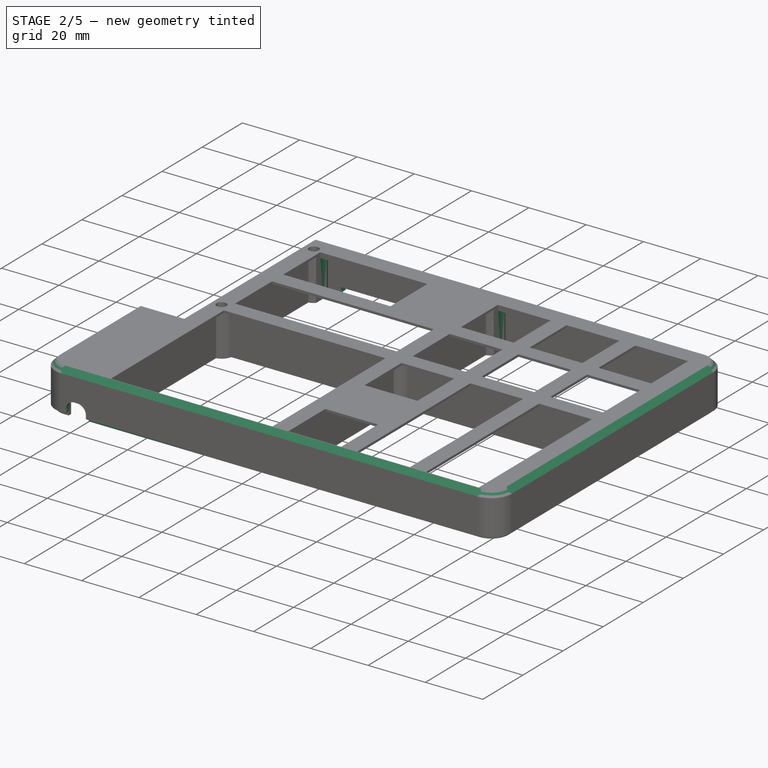
[diagram: stage 2 of 5 — iso view after this stage's code; geometry added in this stage tinted green]
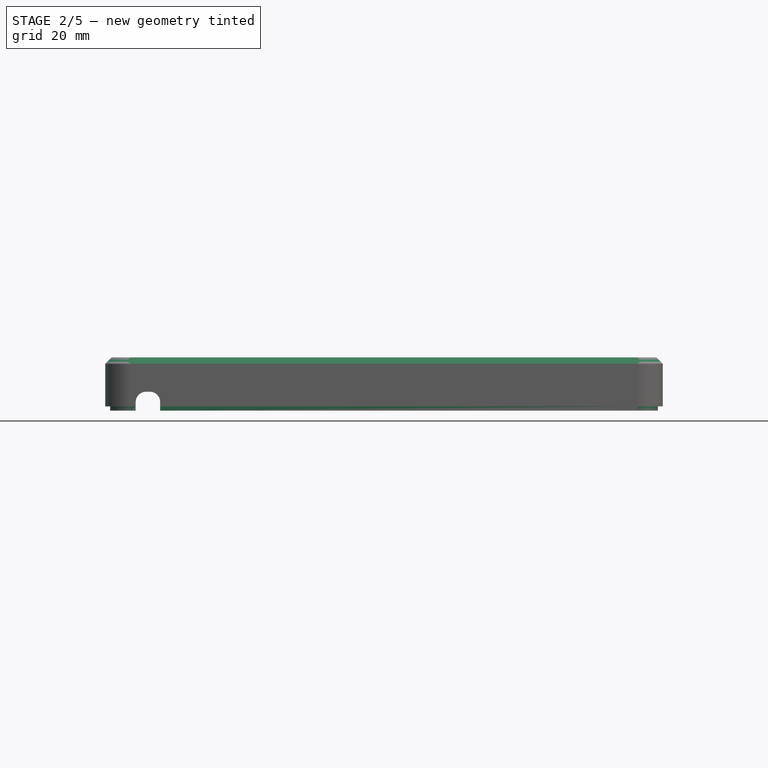
[diagram: stage 2 of 5 — front view after this stage's code; geometry added in this stage tinted green]
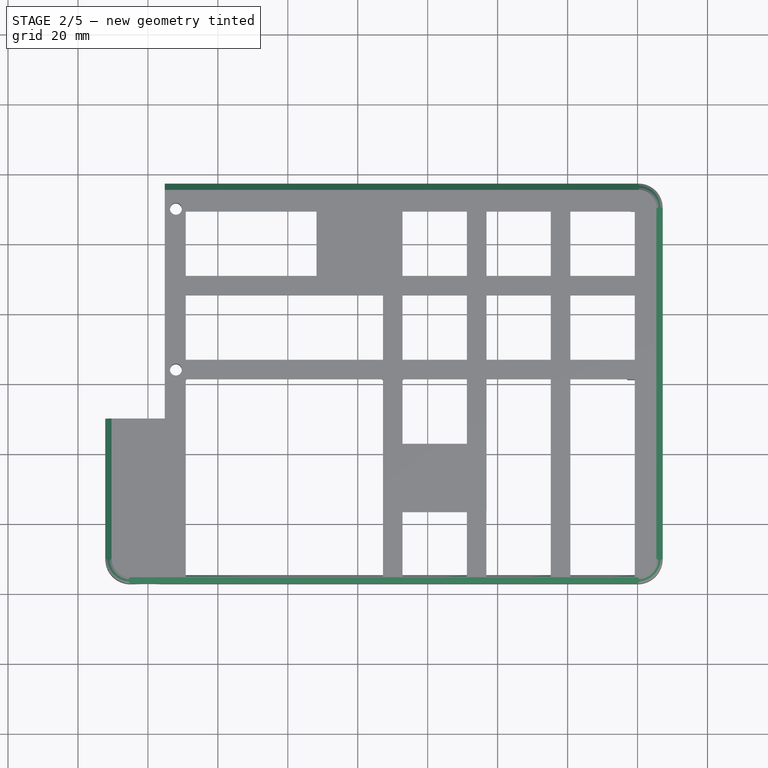
[diagram: stage 2 of 5 — top view after this stage's code; geometry added in this stage tinted green]
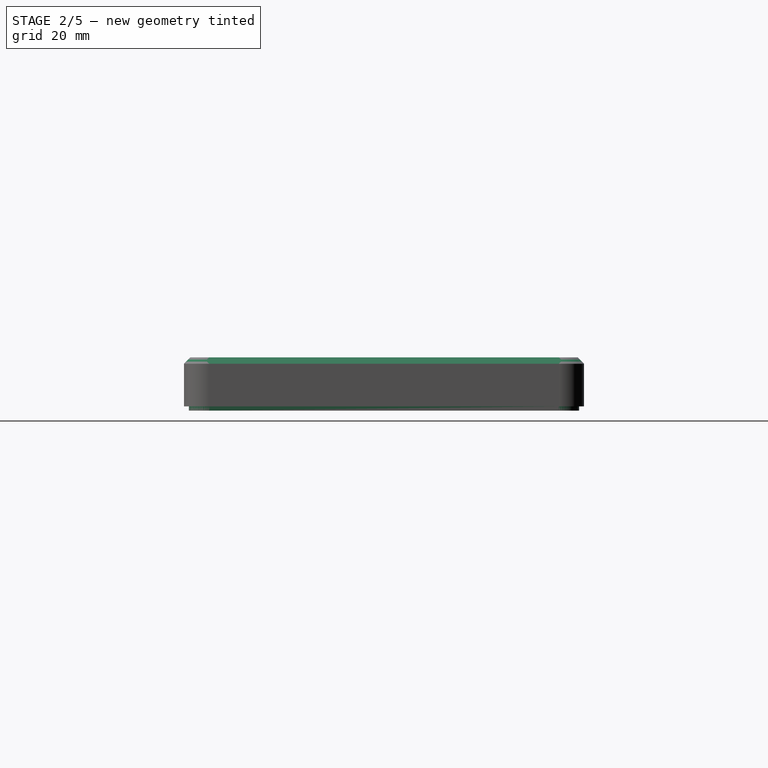
[diagram: stage 2 of 5 — right view after this stage's code; geometry added in this stage tinted green]
FEATURE [PartDesign::Chamfer] Chamfer004
  AddSubType = 0
  Angle = 45
  Base = -> Chamfer003 [Edge203]
  BaseFeature = -> Chamfer003
  ChamferType = 0
  FixShape = 1
  FlipDirection = false
  InvalidShape = false
  NewSolid = false
  Refine = true
  Size = 1.8
  Size2 = 1
  SupportTransform = false
  Suppress = false
  TreeRank = 255
  ValidateShape = false
FEATURE [Sketcher::SketchObject] Sketch019
  ArcFitTolerance = 1e-06
  AttachmentSupport = -> [Chamfer004]
  ExternalBSplineMaxDegree = 5
  ExternalBSplineTolerance = 0.0001
  ExternalGeometry = -> [Chamfer004]
  FixShape = 1
  FullyConstrained = true
  InternalTolerance = 1e-06
  InvalidShape = false
  MakeInternals = false
  MapMode = 5
  Placement = pos=(0,0,0.8) rot=(1,0,0;3.14159rad)
  Support = -> [Chamfer004]
  TreeRank = 256
  ValidateShape = false
  expr: Constraints[25] = <<Vars>>.BoxThickVert + 0.2
  sketch-geometry (9):
    g0: ArcOfCircle CenterX=55 CenterY=130 CenterZ=0 NormalX=0 NormalY=0 NormalZ=1 AngleXU=0 Radius=5.8 StartAngle=1.5708 EndAngle=3.14159
    g1: ArcOfCircle CenterX=200 CenterY=130 CenterZ=0 NormalX=0 NormalY=0 NormalZ=1 AngleXU=0 Radius=5.8 StartAngle=8e-16 EndAngle=1.5708
    g2: ArcOfCircle CenterX=200.288 CenterY=29.712 CenterZ=0 NormalX=0 NormalY=0 NormalZ=1 AngleXU=0 Radius=5.5195 StartAngle=4.66018 EndAngle=6.33539
    g3: LineSegment StartX=200 StartY=24.2 StartZ=0 EndX=64.8 EndY=24.2 EndZ=0
    g4: LineSegment StartX=64.8 StartY=24.2 StartZ=0 EndX=64.8 EndY=22.8 EndZ=0
    g5: LineSegment StartX=205.8 StartY=30 StartZ=0 EndX=205.8 EndY=130 EndZ=0
    g6: LineSegment StartX=200 StartY=135.8 StartZ=0 EndX=55 EndY=135.8 EndZ=0
    g7: LineSegment StartX=49.2 StartY=130 StartZ=0 EndX=49.2 EndY=90 EndZ=0
    g8: LineSegment StartX=49.2 StartY=90 StartZ=0 EndX=47.8 EndY=90 EndZ=0
  constraints (26):
    c: Coincident(g0,g-8)
    c: Coincident(g1,g-6)
    c: Coincident(g2,g-4)
    c: Horizontal(g2,g-5)
    c: Horizontal(g1,g-6)
    c: Horizontal(g-9,g0)
    c: Vertical(g-8,g0)
    c: Vertical(g1,g-7)
    c: Vertical(g-4,g2)
    c: Coincident(g3,g2)
    c: Horizontal(g3)
    c: Coincident(g4,g3)
    c: Coincident(g4,g-3)
    c: Vertical(g4)
    c: Coincident(g5,g2)
    c: Coincident(g5,g1)
    c: Vertical(g5)
    c: Coincident(g6,g1)
    c: Coincident(g6,g0)
    c: Horizontal(g6)
    c: Coincident(g7,g0)
    c: Vertical(g7)
    c: Coincident(g8,g7)
    c: Horizontal(g8)
    c: Coincident(g8,g-9)
    c: Distance(g8) = 1.4
FEATURE [PartDesign::Pocket] Pocket007
  AddSubType = 1
  AutoTaperInnerAngle = true
  BaseFeature = -> Chamfer004
  CheckUpToFaceLimits = true
  ClaimChildren = false
  Fit = 0
  FitJoin = 0
  FixShape = 1
  InnerFit = 0
  InnerFitJoin = 0
  InvalidShape = false
  Length = 1.2
  Length2 = 100
  Linearize = true
  NewSolid = false
  Profile = -> Sketch019
  Refine = true
  Suppress = false
  TaperInnerAngle = 0
  TaperInnerAngleRev = 0
  TreeRank = 257
  Type = 0
  ValidateShape = false
  _ProfileBasedVersion = 1
  _Version = 1
  expr: Length = <<Vars>>.BotTopOvrlp + 0.2
FEATURE [Sketcher::SketchObject] Sketch020
  ArcFitTolerance = 1e-06
  AttachmentSupport = -> [Pocket007]
  ExternalBSplineMaxDegree = 5
  ExternalBSplineTolerance = 0.0001
  ExternalGeometry = -> [Import001]
  FixShape = 1
  FullyConstrained = true
  InternalTolerance = 1e-06
  InvalidShape = false
  MakeInternals = false
  MapMode = 5
  Placement = pos=(0,0,2) rot=(1,0,0;3.14159rad)
  Support = -> [Pocket007]
  TreeRank = 258
  ValidateShape = false
  sketch-geometry (5):
    g0: LineSegment StartX=56.5 StartY=139 StartZ=0 EndX=56.5 EndY=129 EndZ=0
    g1: LineSegment StartX=56.5 StartY=129 StartZ=0 EndX=63.5 EndY=129 EndZ=0
    g2: LineSegment StartX=63.5 StartY=129 StartZ=0 EndX=63.5 EndY=139 EndZ=0
    g3: LineSegment StartX=63.5 StartY=139 StartZ=0 EndX=56.5 EndY=139 EndZ=0
    g4: GeomPoint [constr] X=60 Y=134 Z=0
  constraints (12):
    c: Coincident(g0,g1)
    c: Coincident(g1,g2)
    c: Coincident(g2,g3)
    c: Coincident(g3,g0)
    c: Horizontal(g1)
    c: Horizontal(g3)
    c: Vertical(g0)
    c: Vertical(g2)
    c: Symmetric(g1,g0,g4)
    c: Coincident(g4,g-3)
    c: Distance(g3) = 7
    c: Distance(g2) = 10
FEATURE [PartDesign::Pocket] Pocket008
  AddSubType = 1
  AutoTaperInnerAngle = true
  BaseFeature = -> Pocket007
  CheckUpToFaceLimits = true
  ClaimChildren = false
  Fit = 0
  FitJoin = 0
  FixShape = 1
  InnerFit = 0
  InnerFitJoin = 0
  InvalidShape = false
  Length = 8.4
  Length2 = 100
  Linearize = true
  Midplane = true
  NewSolid = false
  Profile = -> Sketch020
  Refine = true
  Suppress = false
  TaperInnerAngle = 0
  TaperInnerAngleRev = 0
  TreeRank = 259
  Type = 0
  ValidateShape = false
  _ProfileBasedVersion = 1
  _Version = 1
FEATURE [PartDesign::Fillet] Fillet
  AddSubType = 0
  Base = -> Pocket008 [Edge596,Edge578]
  BaseFeature = -> Pocket008
  FixShape = 1
  InvalidShape = false
  NewSolid = false
  Radius = 3
  Refine = true
  SupportTransform = false
  Suppress = false
  TreeRank = 260
  ValidateShape = false
FEATURE [Sketcher::SketchObject] Sketch021
  ArcFitTolerance = 1e-06
  AttachmentSupport = -> [Fillet]
  ExternalBSplineMaxDegree = 5
  ExternalBSplineTolerance = 0.0001
  ExternalGeometry = -> [Fillet]
  FixShape = 1
  FullyConstrained = true
  InternalTolerance = 1e-06
  InvalidShape = false
  MakeInternals = false
  MapMode = 5
  Placement = pos=(0,0,0.8) rot=(1,0,0;3.14159rad)
  Support = -> [Fillet]
  TreeRank = 261
  ValidateShape = false
  sketch-geometry (4):
    g0: LineSegment StartX=56.5 StartY=134.6 StartZ=0 EndX=63.5 EndY=134.6 EndZ=0
    g1: LineSegment StartX=56.5 StartY=135.8 StartZ=0 EndX=56.5 EndY=136.2 EndZ=0
    g2: LineSegment StartX=56.5 StartY=136.2 StartZ=0 EndX=63.5 EndY=136.2 EndZ=0
    g3: LineSegment StartX=63.5 StartY=136.2 StartZ=0 EndX=63.5 EndY=135.8 EndZ=0
  constraints (10):
    c: Coincident(g0,g-4)
    c: Coincident(g0,g-3)
    c: Coincident(g-4,g1)
    c: Coincident(g1,g2)
    c: Horizontal(g2)
    c: Coincident(g2,g3)
    c: Coincident(g3,g-3)
    c: Vertical(g3)
    c: Vertical(g1)
    c: Distance(g3) = 0.4
FEATURE [PartDesign::Pocket] Pocket009
  AddSubType = 1
  AutoTaperInnerAngle = true
  BaseFeature = -> Fillet
  CheckUpToFaceLimits = true
  ClaimChildren = false
  Fit = 0
  FitJoin = 0
  FixShape = 1
  InnerFit = 0
  InnerFitJoin = 0
  InvalidShape = false
  Length = 0
  Length2 = 100
  Linearize = true
  NewSolid = false
  Profile = -> Sketch021
  Refine = true
  Suppress = false
  TaperInnerAngle = 0
  TaperInnerAngleRev = 0
  TreeRank = 262
  Type = 3
  UpToFace = -> Fillet [Face5]
  ValidateShape = false
  _ProfileBasedVersion = 1
  _Version = 1
FEATURE [Sketcher::SketchObject] Sketch022
  ArcFitTolerance = 1e-06
  AttachmentSupport = -> [Pocket009]
  ExternalBSplineMaxDegree = 5
  ExternalBSplineTolerance = 0.0001
  ExternalGeometry = -> [Pocket009]
  FixShape = 1
  FullyConstrained = true
  InternalTolerance = 1e-06
  InvalidShape = false
  MakeInternals = false
  MapMode = 5
  Placement = pos=(2.64e-14,-134.6,0) rot=(0,0.707107,0.707107;3.14159rad)
  Support = -> [Pocket009]
  TreeRank = 263
  ValidateShape = false
  sketch-geometry (12):
    g0: LineSegment StartX=-199.2 StartY=5.5 StartZ=0 EndX=-199.2 EndY=14.2 EndZ=0
    g1: LineSegment StartX=-199.2 StartY=14.2 StartZ=0 EndX=-180.8 EndY=14.2 EndZ=0
    g2: LineSegment StartX=-180.8 StartY=14.2 StartZ=0 EndX=-180.8 EndY=5.5 EndZ=0
    g3: LineSegment StartX=-175.185 StartY=5.5 StartZ=0 EndX=-175.185 EndY=14.2 EndZ=0
    g4: LineSegment StartX=-175.185 StartY=14.2 StartZ=0 EndX=-156.785 EndY=14.2 EndZ=0
    g5: LineSegment StartX=-156.785 StartY=14.2 StartZ=0 EndX=-156.785 EndY=5.5 EndZ=0
    g6: LineSegment StartX=-151.2 StartY=5.5 StartZ=0 EndX=-151.2 EndY=14.2 EndZ=0
    g7: LineSegment StartX=-151.2 StartY=14.2 StartZ=0 EndX=-132.8 EndY=14.2 EndZ=0
    g8: LineSegment StartX=-132.8 StartY=14.2 StartZ=0 EndX=-132.8 EndY=5.5 EndZ=0
    g9: LineSegment StartX=-127.2 StartY=5.5 StartZ=0 EndX=-127.2 EndY=14.2 EndZ=0
    g10: LineSegment StartX=-127.2 StartY=14.2 StartZ=0 EndX=-70.8 EndY=14.2 EndZ=0
    g11: LineSegment StartX=-70.8 StartY=14.2 StartZ=0 EndX=-70.8 EndY=5.5 EndZ=0
  constraints (32):
    c: Coincident(g-6,g0)
    c: PointOnObject(g0,g-7)
    c: Vertical(g0)
    c: Coincident(g0,g1)
    c: PointOnObject(g1,g-7)
    c: Coincident(g1,g2)
    c: Coincident(g2,g-6)
    c: Vertical(g2)
    c: Coincident(g-5,g3)
    c: PointOnObject(g3,g-7)
    c: Vertical(g3)
    c: Coincident(g3,g4)
    c: PointOnObject(g4,g-7)
    c: Coincident(g4,g5)
    c: Coincident(g5,g-5)
    c: Vertical(g5)
    c: PointOnObject(g6,g-7)
    c: Vertical(g6)
    c: Coincident(g6,g7)
    c: PointOnObject(g7,g-7)
    c: Coincident(g7,g8)
    c: Coincident(g8,g-4)
    c: Coincident(g-3,g9)
    c: PointOnObject(g9,g-7)
    c: Vertical(g9)
    c: Coincident(g9,g10)
    c: PointOnObject(g10,g-7)
    c: Coincident(g10,g11)
    c: Coincident(g11,g-3)
    c: Vertical(g11)
    c: Vertical(g8)
    c: Coincident(g6,g-4)
FEATURE [PartDesign::Pocket] Pocket010
  AddSubType = 1
  AutoTaperInnerAngle = true
  BaseFeature = -> Pocket009
  CheckUpToFaceLimits = true
  ClaimChildren = false
  Fit = 0
  FitJoin = 0
  FixShape = 1
  InnerFit = 0
  InnerFitJoin = 0
  InvalidShape = false
  Length = 1.4
  Length2 = 100
  Linearize = true
  NewSolid = false
  Profile = -> Sketch022
  Refine = true
  Suppress = false
  TaperInnerAngle = 0
  TaperInnerAngleRev = 0
  TreeRank = 264
  Type = 0
  ValidateShape = false
  _ProfileBasedVersion = 1
  _Version = 1
FEATURE [PartDesign::Chamfer] Chamfer005
  AddSubType = 0
  Angle = 45
  Base = -> Pocket010 [Edge370,Edge379,Edge378,Edge438]
  BaseFeature = -> Pocket010
  ChamferType = 0
  FixShape = 1
  FlipDirection = false
  InvalidShape = false
  NewSolid = false
  Refine = true
  Size = 1.2
  Size2 = 1
  SupportTransform = false
  Suppress = false
  TreeRank = 265
  ValidateShape = false
FEATURE [PartDesign::Chamfer] Chamfer006
  AddSubType = 0
  Angle = 45
  Base = -> Chamfer005 [Edge548,Edge514,Edge527,Edge204]
  BaseFeature = -> Chamfer005
  ChamferType = 0
  FixShape = 1
  FlipDirection = false
  InvalidShape = false
  NewSolid = false
  Refine = true
  Size = 0.6
  Size2 = 1
  SupportTransform = false
  Suppress = false
  TreeRank = 266
  ValidateShape = false
FEATURE [Sketcher::SketchObject] Sketch023
  ArcFitTolerance = 1e-06
  AttachmentSupport = -> [Chamfer006]
  ExternalBSplineMaxDegree = 5
  ExternalBSplineTolerance = 0.0001
  ExternalGeometry = -> [Import002,Chamfer006]
  FixShape = 1
  FullyConstrained = true
  InternalTolerance = 1e-06
  InvalidShape = false
  MakeInternals = false
  MapMode = 5
  Placement = pos=(0,0,0.8) rot=(1,0,0;3.14159rad)
  Support = -> [Chamfer006]
  TreeRank = 267
  ValidateShape = false
  sketch-geometry (4):
    g0: LineSegment StartX=74.11 StartY=22.8 StartZ=0 EndX=96.11 EndY=22.8 EndZ=0
    g1: LineSegment StartX=96.11 StartY=22.8 StartZ=0 EndX=96.11 EndY=25.4 EndZ=0
    g2: LineSegment StartX=96.11 StartY=25.4 StartZ=0 EndX=74.11 EndY=25.4 EndZ=0
    g3: LineSegment StartX=74.11 StartY=25.4 StartZ=0 EndX=74.11 EndY=22.8 EndZ=0
  constraints (11):
    c: Coincident(g0,g1)
    c: Coincident(g1,g2)
    c: Coincident(g2,g3)
    c: Coincident(g3,g0)
    c: Horizontal(g0)
    c: Horizontal(g2)
    c: Vertical(g1)
    c: Vertical(g3)
    c: Coincident(g0,g-3)
    c: PointOnObject(g1,g-5)
    c: PointOnObject(g-4,g1)
FEATURE [PartDesign::Pocket] Pocket011
  AddSubType = 1
  AutoTaperInnerAngle = true
  BaseFeature = -> Chamfer006
  CheckUpToFaceLimits = true
  ClaimChildren = false
  Fit = 0
  FitJoin = 0
  FixShape = 1
  InnerFit = 0
  InnerFitJoin = 0
  InvalidShape = false
  Length = 3
  Length2 = 100
  Linearize = true
  NewSolid = false
  Profile = -> Sketch023
  Refine = true
  Suppress = false
  TaperInnerAngle = 0
  TaperInnerAngleRev = 0
  TreeRank = 268
  Type = 0
  ValidateShape = false
  _ProfileBasedVersion = 1
  _Version = 1
FEATURE [Sketcher::SketchObject] Sketch024
  ArcFitTolerance = 1e-06
  AttachmentSupport = -> [Pocket011]
  ExternalBSplineMaxDegree = 5
  ExternalBSplineTolerance = 0.0001
  ExternalGeometry = -> [Pocket011]
  FixShape = 1
  FullyConstrained = true
  InternalTolerance = 1e-06
  InvalidShape = false
  MakeInternals = false
  MapMode = 5
  Placement = pos=(0,0,0.8) rot=(1,0,0;3.14159rad)
  Support = -> [Pocket011]
  TreeRank = 269
  ValidateShape = false
  sketch-geometry (16):
    g0: LineSegment StartX=199.2 StartY=129.058 StartZ=0 EndX=200.8 EndY=129.058 EndZ=0
    g1: LineSegment StartX=200.8 StartY=129.058 StartZ=0 EndX=200.8 EndY=78.8 EndZ=0
    g2: LineSegment StartX=200.8 StartY=78.8 StartZ=0 EndX=199.2 EndY=78.8 EndZ=0
    g3: LineSegment StartX=199.2 StartY=78.8 StartZ=0 EndX=199.2 EndY=129.058 EndZ=0
    g4: LineSegment StartX=199.2 StartY=73.2 StartZ=0 EndX=200.8 EndY=73.2 EndZ=0
    g5: LineSegment StartX=200.8 StartY=73.2 StartZ=0 EndX=200.8 EndY=31.9416 EndZ=0
    g6: LineSegment StartX=200.8 StartY=31.9416 StartZ=0 EndX=199.2 EndY=31.9416 EndZ=0
    g7: LineSegment StartX=199.2 StartY=31.9416 StartZ=0 EndX=199.2 EndY=73.2 EndZ=0
    g8: LineSegment StartX=198.058 StartY=30.8 StartZ=0 EndX=132.8 EndY=30.8 EndZ=0
    g9: LineSegment StartX=132.8 StartY=30.8 StartZ=0 EndX=132.8 EndY=29.2 EndZ=0
    g10: LineSegment StartX=132.8 StartY=29.2 StartZ=0 EndX=198.058 EndY=29.2 EndZ=0
    g11: LineSegment StartX=198.058 StartY=29.2 StartZ=0 EndX=198.058 EndY=30.8 EndZ=0
    g12: LineSegment StartX=126.081 StartY=29.2 StartZ=0 EndX=70.8 EndY=29.2 EndZ=0
    g13: LineSegment StartX=70.8 StartY=29.2 StartZ=0 EndX=70.8 EndY=30.8 EndZ=0
    g14: LineSegment StartX=70.8 StartY=30.8 StartZ=0 EndX=126.081 EndY=30.8 EndZ=0
    g15: LineSegment StartX=126.081 StartY=30.8 StartZ=0 EndX=126.081 EndY=29.2 EndZ=0
  constraints (43):
    c: Coincident(g0,g1)
    c: Coincident(g1,g2)
    c: Coincident(g2,g3)
    c: Coincident(g3,g0)
    c: Horizontal(g0)
    c: Horizontal(g2)
    c: Vertical(g1)
    c: Vertical(g3)
    c: Coincident(g0,g-13)
    c: PointOnObject(g-11,g2)
    c: PointOnObject(g-12,g1)
    c: Coincident(g4,g5)
    c: Coincident(g5,g6)
    c: Coincident(g6,g7)
    c: Coincident(g7,g4)
    c: Horizontal(g4)
    c: Horizontal(g6)
    c: Vertical(g5)
    c: Vertical(g7)
    c: Coincident(g4,g-10)
    c: Coincident(g8,g9)
    c: Coincident(g9,g10)
    c: Coincident(g10,g11)
    c: Coincident(g11,g8)
    c: Horizontal(g8)
    c: Horizontal(g10)
    c: Vertical(g9)
    c: Vertical(g11)
    c: Coincident(g8,g-5)
    c: Coincident(g12,g13)
    c: Coincident(g13,g14)
    c: Coincident(g14,g15)
    c: Coincident(g15,g12)
    c: Horizontal(g12)
    c: Horizontal(g14)
    c: Vertical(g13)
    c: Vertical(g15)
    c: Coincident(g12,g-7)
    c: Coincident(g13,g-6)
    c: PointOnObject(g-3,g9)
    c: PointOnObject(g-4,g10)
    c: PointOnObject(g-8,g6)
    c: PointOnObject(g-9,g5)
FEATURE [PartDesign::Pocket] Pocket012
  AddSubType = 1
  AutoTaperInnerAngle = true
  BaseFeature = -> Pocket011
  CheckUpToFaceLimits = true
  ClaimChildren = false
  Fit = 0
  FitJoin = 0
  FixShape = 1
  InnerFit = 0
  InnerFitJoin = 0
  InvalidShape = false
  Length = 0
  Length2 = 100
  Linearize = true
  NewSolid = false
  Profile = -> Sketch024
  Refine = true
  Suppress = false
  TaperInnerAngle = 0
  TaperInnerAngleRev = 0
  TreeRank = 270
  Type = 3
  UpToFace = -> Pocket011 [Face159]
  ValidateShape = false
  _ProfileBasedVersion = 1
  _Version = 1
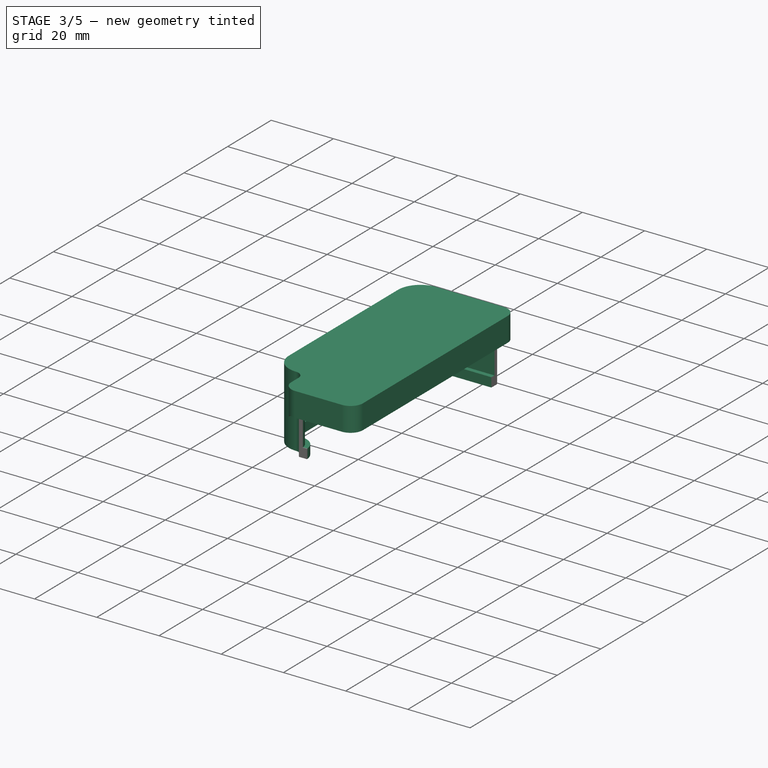
[diagram: stage 3 of 5 — iso view after this stage's code; geometry added in this stage tinted green]
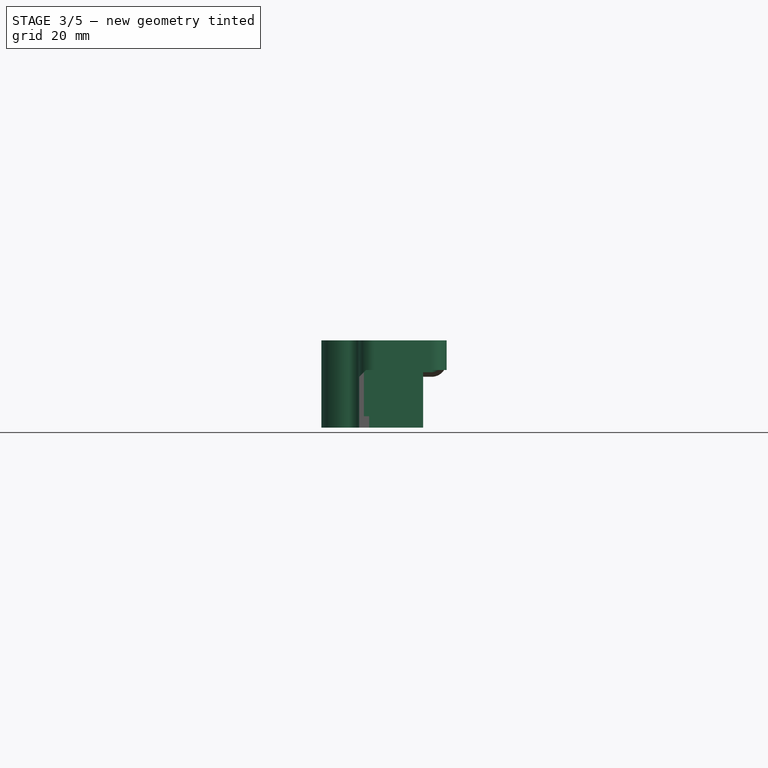
[diagram: stage 3 of 5 — front view after this stage's code; geometry added in this stage tinted green]
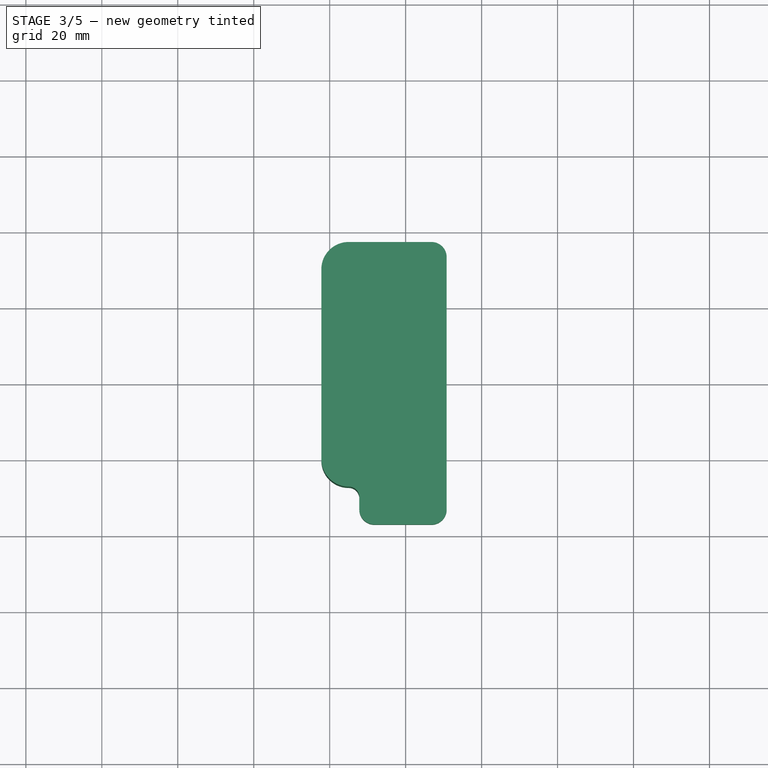
[diagram: stage 3 of 5 — top view after this stage's code; geometry added in this stage tinted green]
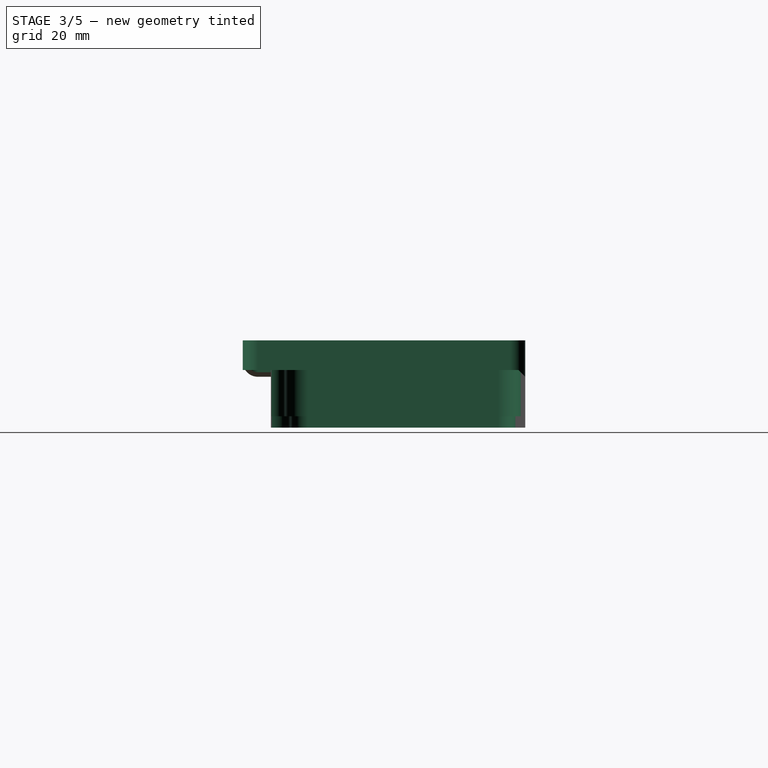
[diagram: stage 3 of 5 — right view after this stage's code; geometry added in this stage tinted green]
FEATURE [PartDesign::Chamfer] Chamfer007
  AddSubType = 0
  Angle = 45
  Base = -> Pocket012 [Edge569,Edge609]
  BaseFeature = -> Pocket012
  ChamferType = 0
  FixShape = 1
  FlipDirection = false
  InvalidShape = false
  NewSolid = false
  Refine = true
  Size = 0.7
  Size2 = 1
  SupportTransform = false
  Suppress = false
  TreeRank = 271
  ValidateShape = false
FEATURE [PartDesign::Chamfer] Chamfer008
  AddSubType = 0
  Angle = 45
  Base = -> Chamfer007 [Edge571,Edge172]
  BaseFeature = -> Chamfer007
  ChamferType = 0
  FixShape = 1
  FlipDirection = false
  InvalidShape = false
  NewSolid = false
  Refine = true
  Size = 0.7
  Size2 = 1
  SupportTransform = false
  Suppress = false
  TreeRank = 272
  ValidateShape = false
FEATURE [PartDesign::Body] Body001  label="Top"
  AutoGroupSolids = false
  ClaimAllChildren = false
  ExportMode = 0
  FixShape = 1
  Group = -> [DatumPlane001,Import001,Sketch009,Import002,Pad006,Sketch010,Pad007,Sketch011,Pocket002,Sketch012,Pocket003,Sketch013,Pocket004,Sketch014,Sketch015,Pocket005,Sketch016,Pad008,Sketch017,Pad009,Sketch018,Pocket006,Chamfer003,Chamfer004,Sketch019,Pocket007,Sketch020,Pocket008,Fillet,Sketch021,Pocket009,Sketch022,Pocket010,Chamfer005,Chamfer006,Sketch023,Pocket011,Sketch024,Pocket012,Chamfer007,+1 more]
  InvalidShape = false
  Origin = -> Origin007
  Tip = -> Chamfer008
  TreeRank = 228
  ValidateShape = false
  _ExportChildren = -> [DatumPlane001,Import001,Import002,Pad006,Pad007,Pocket002,Pocket003,Pocket004,Sketch014,Pocket005,Pad008,Pad009,Pocket006,Chamfer003,Chamfer004,Pocket007,Pocket008,Fillet,Pocket009,Pocket010,Chamfer005,Chamfer006,Pocket011,Pocket012,Chamfer007,Chamfer008]
  _GroupVersion = 1
FEATURE [Part::SubShapeBinder] Import003  label="Import003(GrblHAL_Keypad PCB)"
  BindCopyOnChange = 0
  BindMode = 0
  ClaimChildren = false
  Context = -> Body002 [Import003.]
  EdgeTolerance = 1e-06
  FillStyle = 0
  FixShape = 1
  Fuse = false
  InvalidShape = false
  MakeFace = false
  MergeEdges = true
  OffsetFill = false
  OffsetIntersection = false
  OffsetJoinType = 0
  OffsetOpenResult = false
  Outline = false
  PartialLoad = false
  Relative = true
  SplitEdges = false
  Support = -> [Part006[Solid004.]]
  TightBound = false
  TreeRank = 286
  ValidateShape = false
  _Version = 8
FEATURE [PartDesign::Plane] DatumPlane002
  AttachmentOffset = pos=(0,0,21.4) rot=(0,0,1;0rad)
  AttachmentSupport = -> [Import003]
  FixShape = 1
  InvalidShape = false
  Length = 205
  MapMode = 5
  MinimumLength = 10
  MinimumWidth = 10
  Placement = pos=(0,0,23) rot=(0,0,1;0rad)
  ResizeMode = 0
  Support = -> [Import003]
  TreeRank = 285
  ValidateShape = false
  Width = 135
  expr: AttachmentOffset.Base.z = <<Vars>>.McuTop2Pcb
FEATURE [Part::SubShapeBinder] Import004  label="Import004(Chamfer002)"
  BindCopyOnChange = 0
  BindMode = 0
  ClaimChildren = false
  Context = -> Body002 [Import004.]
  EdgeTolerance = 1e-06
  FillStyle = 0
  FixShape = 1
  Fuse = false
  InvalidShape = false
  MakeFace = false
  MergeEdges = true
  OffsetFill = false
  OffsetIntersection = false
  OffsetJoinType = 0
  OffsetOpenResult = false
  Outline = false
  PartialLoad = false
  Relative = true
  SplitEdges = false
  Support = -> [Body[Chamfer002.]]
  TightBound = false
  TreeRank = 288
  ValidateShape = false
  _Version = 8
FEATURE [Part::SubShapeBinder] Import005  label="Import005(Chamfer008)"
  BindCopyOnChange = 0
  BindMode = 0
  ClaimChildren = false
  Context = -> Body002 [Import005.]
  EdgeTolerance = 1e-06
  FillStyle = 0
  FixShape = 1
  Fuse = false
  InvalidShape = false
  MakeFace = false
  MergeEdges = true
  OffsetFill = false
  OffsetIntersection = false
  OffsetJoinType = 0
  OffsetOpenResult = false
  Outline = false
  PartialLoad = false
  Relative = true
  SplitEdges = false
  Support = -> [Body001[Chamfer008.]]
  TightBound = false
  TreeRank = 289
  ValidateShape = false
  _Version = 8
FEATURE [Sketcher::SketchObject] Sketch025
  ArcFitTolerance = 1e-06
  AttachmentSupport = -> [DatumPlane002]
  ExternalBSplineMaxDegree = 5
  ExternalBSplineTolerance = 0.0001
  ExternalGeometry = -> [Import004,Import005]
  FixShape = 1
  FullyConstrained = true
  InternalTolerance = 1e-06
  InvalidShape = false
  MakeInternals = false
  MapMode = 5
  Placement = pos=(0,0,23) rot=(0,0,1;0rad)
  Support = -> [DatumPlane002]
  TreeRank = 287
  ValidateShape = false
  sketch-geometry (7):
    g0: LineSegment StartX=47.8 StartY=-90 StartZ=0 EndX=47.8 EndY=-93.2 EndZ=0
    g1: LineSegment StartX=51.8 StartY=-97.2 StartZ=0 EndX=66.8 EndY=-97.2 EndZ=0
    g2: LineSegment StartX=70.8 StartY=-93.2 StartZ=0 EndX=70.8 EndY=-26.8 EndZ=0
    g3: LineSegment StartX=66.8 StartY=-22.8 StartZ=0 EndX=47.38 EndY=-22.8 EndZ=0
    g4: ArcOfCircle CenterX=66.8 CenterY=-93.2 CenterZ=0 NormalX=0 NormalY=0 NormalZ=1 AngleXU=0 Radius=4 StartAngle=4.71239 EndAngle=6.28319
    g5: ArcOfCircle CenterX=51.8 CenterY=-93.2 CenterZ=0 NormalX=0 NormalY=0 NormalZ=1 AngleXU=0 Radius=4 StartAngle=3.14159 EndAngle=4.71239
    g6: ArcOfCircle CenterX=66.8 CenterY=-26.8 CenterZ=0 NormalX=0 NormalY=0 NormalZ=1 AngleXU=0 Radius=4 StartAngle=0 EndAngle=1.5708
  constraints (16):
    c: Tangent(g-3,g0) = 1.5708
    c: Horizontal(g1)
    c: Vertical(g2)
    c: Coincident(g3,g-7)
    c: Tangent(g1,g4) = -1.5708
    c: Tangent(g2,g4) = -1.5708
    c: Tangent(g1,g5) = -1.5708
    c: Tangent(g0,g5) = -1.5708
    c: Tangent(g2,g6) = -1.5708
    c: Tangent(g3,g6) = -1.5708
    c: Equal(g5,g4)
    c: Equal(g4,g6)
    c: PointOnObject(g-14,g2)
    c: Horizontal(g-14,g1)
    c: Radius(g5) = 4
    c: PointOnObject(g3,g-8)
FEATURE [PartDesign::Pad] Pad010
  AddSubType = 0
  AlongSketchNormal = false
  AutoTaperInnerAngle = true
  CheckUpToFaceLimits = true
  ClaimChildren = false
  Direction = (0,0,1)
  Fit = 0
  FitJoin = 0
  FixShape = 1
  InnerFit = 0
  InnerFitJoin = 0
  InvalidShape = false
  Length = 0.8
  Length2 = 100
  Linearize = true
  NewSolid = false
  Profile = -> Sketch025
  Refine = true
  Suppress = false
  TaperInnerAngle = 0
  TaperInnerAngleRev = 0
  TreeRank = 290
  Type = 0
  ValidateShape = false
  _ProfileBasedVersion = 1
  expr: Length = <<Vars>>.BoxThickHoriz
FEATURE [Sketcher::SketchObject] Sketch026
  ArcFitTolerance = 1e-06
  AttachmentSupport = -> [Pad010]
  ExternalBSplineMaxDegree = 5
  ExternalBSplineTolerance = 0.0001
  ExternalGeometry = -> [Pad010]
  FixShape = 1
  FullyConstrained = true
  InternalTolerance = 1e-06
  InvalidShape = false
  MakeInternals = false
  MapMode = 5
  Placement = pos=(0,0,23) rot=(1,0,0;3.14159rad)
  Support = -> [Pad010]
  TreeRank = 291
  ValidateShape = false
  expr: Constraints[30] = <<Vars>>.BoxThickVert
  sketch-geometry (11):
    g0: ArcOfCircle CenterX=45 CenterY=30 CenterZ=0 NormalX=0 NormalY=0 NormalZ=1 AngleXU=0 Radius=6 StartAngle=3.14159 EndAngle=4.71239
    g1: ArcOfCircle CenterX=45 CenterY=80 CenterZ=0 NormalX=0 NormalY=0 NormalZ=1 AngleXU=0 Radius=6 StartAngle=1.5708 EndAngle=3.14159
    g2: ArcOfCircle CenterX=45 CenterY=90 CenterZ=0 NormalX=0 NormalY=0 NormalZ=1 AngleXU=0 Radius=4 StartAngle=4.71239 EndAngle=6.28319
    g3: ArcOfCircle CenterX=51.8 CenterY=93.2 CenterZ=0 NormalX=0 NormalY=0 NormalZ=1 AngleXU=0 Radius=2.8 StartAngle=1.5708 EndAngle=3.14159
    g4: ArcOfCircle CenterX=66.8 CenterY=93.2 CenterZ=0 NormalX=0 NormalY=0 NormalZ=1 AngleXU=0 Radius=2.8 StartAngle=-9e-16 EndAngle=1.5708
    g5: ArcOfCircle CenterX=66.8 CenterY=26.8 CenterZ=0 NormalX=0 NormalY=0 NormalZ=1 AngleXU=0 Radius=2.8 StartAngle=4.71239 EndAngle=6.28319
    g6: LineSegment StartX=39 StartY=80 StartZ=0 EndX=39 EndY=30 EndZ=0
    g7: LineSegment StartX=45 StartY=24 StartZ=0 EndX=66.8 EndY=24 EndZ=0
    g8: LineSegment StartX=69.6 StartY=26.8 StartZ=0 EndX=69.6 EndY=93.2 EndZ=0
    g9: LineSegment StartX=66.8 StartY=96 StartZ=0 EndX=51.8 EndY=96 EndZ=0
    g10: LineSegment StartX=49 StartY=93.2 StartZ=0 EndX=49 EndY=90 EndZ=0
  constraints (33):
    c: Coincident(g0,g-8)
    c: Coincident(g1,g-10)
    c: Coincident(g2,g-13)
    c: Coincident(g2,g1)
    c: Coincident(g3,g-12)
    c: Coincident(g4,g-4)
    c: Coincident(g5,g-6)
    c: Horizontal(g-6,g5)
    c: Horizontal(g0,g-9)
    c: Horizontal(g1,g-10)
    c: Horizontal(g2,g-13)
    c: Horizontal(g3,g-12)
    c: Vertical(g3,g-12)
    c: Vertical(g-4,g4)
    c: Vertical(g5,g-7)
    c: Vertical(g0,g-8)
    c: Vertical(g-13,g1)
    c: Coincident(g6,g1)
    c: Coincident(g6,g0)
    c: Vertical(g6)
    c: Coincident(g7,g0)
    c: Coincident(g7,g5)
    c: Horizontal(g7)
    c: Coincident(g8,g5)
    c: Coincident(g8,g4)
    c: Vertical(g8)
    c: Coincident(g9,g4)
    c: Coincident(g9,g3)
    c: Horizontal(g9)
    c: Coincident(g10,g3)
    c: DistanceX(g-12,g3) = 1.2
    c: Horizontal(g4,g-5)
    c: Coincident(g10,g2)
FEATURE [PartDesign::Pad] Pad011
  AddSubType = 0
  AlongSketchNormal = false
  AutoTaperInnerAngle = true
  BaseFeature = -> Pad010
  CheckUpToFaceLimits = true
  ClaimChildren = false
  Direction = (0,0,-1)
  Fit = 0
  FitJoin = 0
  FixShape = 1
  InnerFit = 0
  InnerFitJoin = 0
  InvalidShape = false
  Length = 7
  Length2 = 100
  Linearize = true
  NewSolid = false
  Profile = -> Sketch026
  Refine = true
  Suppress = false
  TaperInnerAngle = 0
  TaperInnerAngleRev = 0
  TreeRank = 292
  Type = 0
  ValidateShape = false
  _ProfileBasedVersion = 1
  expr: Length = <<Vars>>.McuTop2Pcb - <<Vars>>.Top2PcbSpace
FEATURE [PartDesign::Chamfer] Chamfer009
  AddSubType = 0
  Angle = 45
  Base = -> Pad011 [Edge27]
  BaseFeature = -> Pad011
  ChamferType = 0
  FixShape = 1
  FlipDirection = false
  InvalidShape = false
  NewSolid = false
  Refine = true
  Size = 2.7
  Size2 = 1
  SupportTransform = false
  Suppress = false
  TreeRank = 293
  ValidateShape = false
FEATURE [Sketcher::SketchObject] Sketch027
  ArcFitTolerance = 1e-06
  AttachmentSupport = -> [Chamfer009]
  ExternalBSplineMaxDegree = 5
  ExternalBSplineTolerance = 0.0001
  ExternalGeometry = -> [Chamfer009]
  FixShape = 1
  FullyConstrained = true
  InternalTolerance = 1e-06
  InvalidShape = false
  MakeInternals = false
  MapMode = 5
  Placement = pos=(0,0,16) rot=(1,0,0;3.14159rad)
  Support = -> [Chamfer009]
  TreeRank = 294
  ValidateShape = false
  sketch-geometry (2):
    g0: LineSegment StartX=69.6 StartY=26.8 StartZ=0 EndX=70.8 EndY=26.8 EndZ=0
    g1: LineSegment StartX=51.8 StartY=97.2 StartZ=0 EndX=51.8 EndY=96 EndZ=0
  constraints (4):
    c: Coincident(g0,g-14)
    c: Coincident(g-11,g0)
    c: Coincident(g1,g-16)
    c: Coincident(g1,g-17)
FEATURE [PartDesign::Pad] Pad012
  AddSubType = 0
  AlongSketchNormal = false
  AutoTaperInnerAngle = true
  BaseFeature = -> Chamfer009
  CheckUpToFaceLimits = true
  ClaimChildren = false
  Direction = (0,0,-1)
  Fit = 0
  FitJoin = 0
  FixShape = 1
  InnerFit = 0
  InnerFitJoin = 0
  InvalidShape = false
  Length = 15.2
  Length2 = 100
  Linearize = true
  NewSolid = false
  Profile = -> Sketch027
  Refine = true
  Suppress = false
  TaperInnerAngle = 0
  TaperInnerAngleRev = 0
  TreeRank = 295
  Type = 0
  ValidateShape = false
  _ProfileBasedVersion = 1
  expr: Length = <<Vars>>.Top2PcbSpace + <<Vars>>.BotTopOvrlp - 0.2
FEATURE [Sketcher::SketchObject] Sketch028
  ArcFitTolerance = 1e-06
  AttachmentSupport = -> [Pad012]
  ExternalBSplineMaxDegree = 5
  ExternalBSplineTolerance = 0.0001
  ExternalGeometry = -> [Import005]
  FixShape = 1
  FullyConstrained = true
  InternalTolerance = 1e-06
  InvalidShape = false
  MakeInternals = false
  MapMode = 5
  Placement = pos=(70.8,0,0) rot=(0.57735,0.57735,0.57735;2.0944rad)
  Support = -> [Pad012]
  TreeRank = 296
  ValidateShape = false
  sketch-geometry (4):
    g0: LineSegment StartX=-24.5984 StartY=16 StartZ=0 EndX=-32.5984 EndY=16 EndZ=0
    g1: LineSegment StartX=-32.5984 StartY=16 StartZ=0 EndX=-32.5984 EndY=-4 EndZ=0
    g2: LineSegment StartX=-32.5984 StartY=-4 StartZ=0 EndX=-22.8 EndY=-4 EndZ=0
    g3: LineSegment StartX=-22.8 StartY=-4 StartZ=0 EndX=-22.8 EndY=2 EndZ=0
  constraints (11):
    c: Coincident(g-3,g0)
    c: Horizontal(g0)
    c: Coincident(g0,g1)
    c: Vertical(g1)
    c: Coincident(g1,g2)
    c: Horizontal(g2)
    c: Coincident(g2,g3)
    c: Coincident(g3,g-4)
    c: Vertical(g3)
    c: Distance(g0) = 8
    c: Distance(g1) = 20
FEATURE [PartDesign::SubShapeBinder] Import006  label="Import006(Chamfer008)"
  BindCopyOnChange = 0
  BindMode = 0
  ClaimChildren = false
  Context = -> Body002 [Import006.]
  EdgeTolerance = 1e-06
  FillStyle = 0
  FixShape = 1
  Fuse = false
  InvalidShape = false
  MakeFace = false
  MergeEdges = true
  OffsetFill = false
  OffsetIntersection = false
  OffsetJoinType = 0
  OffsetOpenResult = false
  Outline = false
  PartialLoad = false
  Relative = true
  SplitEdges = false
  Support = -> [Body001[Chamfer008.Face23]]
  TightBound = false
  TreeRank = 298
  ValidateShape = false
  _Version = 8
FEATURE [PartDesign::Pocket] Pocket013
  AddSubType = 1
  AutoTaperInnerAngle = true
  BaseFeature = -> Pad012
  CheckUpToFaceLimits = true
  ClaimChildren = false
  Fit = 0
  FitJoin = 0
  FixShape = 1
  InnerFit = 0
  InnerFitJoin = 0
  InvalidShape = false
  Length = 0
  Length2 = 100
  Linearize = true
  NewSolid = false
  Offset = 0.2
  Profile = -> Sketch028
  Refine = true
  Suppress = false
  TaperInnerAngle = 0
  TaperInnerAngleRev = 0
  TreeRank = 297
  Type = 3
  UpToFace = -> Import006
  ValidateShape = false
  _ProfileBasedVersion = 1
  _Version = 1
FEATURE [Sketcher::SketchObject] Sketch029
  ArcFitTolerance = 1e-06
  AttachmentSupport = -> [Pocket013]
  ExternalBSplineMaxDegree = 5
  ExternalBSplineTolerance = 0.0001
  ExternalGeometry = -> [Import005]
  FixShape = 1
  FullyConstrained = true
  InternalTolerance = 1e-06
  InvalidShape = false
  MakeInternals = false
  MapMode = 5
  Placement = pos=(0,-97.2,0) rot=(1,0,0;1.5708rad)
  Support = -> [Pocket013]
  TreeRank = 299
  ValidateShape = false
  sketch-geometry (5):
    g0: LineSegment StartX=49.6 StartY=16 StartZ=0 EndX=57.6 EndY=16 EndZ=0
    g1: LineSegment StartX=57.6 StartY=16 StartZ=0 EndX=57.6 EndY=-4 EndZ=0
    g2: LineSegment StartX=57.6 StartY=-4 StartZ=0 EndX=46 EndY=-4 EndZ=0
    g3: LineSegment StartX=46 StartY=-4 StartZ=0 EndX=46 EndY=12.4 EndZ=0
    g4: LineSegment StartX=47.8 StartY=14.2 StartZ=0 EndX=46 EndY=12.4 EndZ=0
  constraints (14):
    c: Coincident(g-3,g0)
    c: Horizontal(g0)
    c: Coincident(g0,g1)
    c: Vertical(g1)
    c: Coincident(g1,g2)
    c: Horizontal(g2)
    c: Coincident(g2,g3)
    c: Vertical(g3)
    c: Distance(g0) = 8
    c: Distance(g1) = 20
    c: Coincident(g4,g-3)
    c: Coincident(g4,g3)
    c: Equal(g4,g-3)
    c: Parallel(g-3,g4)
FEATURE [PartDesign::SubShapeBinder] Import007  label="Import007(Chamfer008)"
  BindCopyOnChange = 0
  BindMode = 0
  ClaimChildren = false
  Context = -> Body002 [Import007.]
  EdgeTolerance = 1e-06
  FillStyle = 0
  FixShape = 1
  Fuse = false
  InvalidShape = false
  MakeFace = false
  MergeEdges = true
  OffsetFill = false
  OffsetIntersection = false
  OffsetJoinType = 0
  OffsetOpenResult = false
  Outline = false
  PartialLoad = false
  Relative = true
  SplitEdges = false
  Support = -> [Body001[Chamfer008.Face21]]
  TightBound = false
  TreeRank = 302
  ValidateShape = false
  _Version = 8
FEATURE [PartDesign::Pocket] Pocket014
  AddSubType = 1
  AutoTaperInnerAngle = true
  BaseFeature = -> Pocket013
  CheckUpToFaceLimits = true
  ClaimChildren = false
  Fit = 0
  FitJoin = 0
  FixShape = 1
  InnerFit = 0
  InnerFitJoin = 0
  InvalidShape = false
  Length = 0
  Length2 = 100
  Linearize = true
  NewSolid = false
  Offset = -0.2
  Profile = -> Sketch029
  Refine = true
  Suppress = false
  TaperInnerAngle = 0
  TaperInnerAngleRev = 0
  TreeRank = 300
  Type = 3
  UpToFace = -> Import007
  ValidateShape = false
  _ProfileBasedVersion = 1
  _Version = 1
FEATURE [Sketcher::SketchObject] Sketch030
  ArcFitTolerance = 1e-06
  AttachmentSupport = -> [Pocket014]
  ExternalBSplineMaxDegree = 5
  ExternalBSplineTolerance = 0.0001
  ExternalGeometry = -> [Pocket014]
  FixShape = 1
  FullyConstrained = true
  InternalTolerance = 1e-06
  InvalidShape = false
  MakeInternals = false
  MapMode = 5
  Placement = pos=(0,0,0.8) rot=(1,0,0;3.14159rad)
  Support = -> [Pocket014]
  TreeRank = 301
  ValidateShape = false
  expr: Constraints[15] = <<Vars>>.BoxThickVert * 2 + 0.2
  sketch-geometry (7):
    g0: ArcOfCircle CenterX=45 CenterY=30 CenterZ=0 NormalX=0 NormalY=0 NormalZ=1 AngleXU=0 Radius=4.6 StartAngle=3.14159 EndAngle=4.71239
    g1: ArcOfCircle CenterX=45 CenterY=80 CenterZ=0 NormalX=0 NormalY=0 NormalZ=1 AngleXU=0 Radius=4.6 StartAngle=1.5708 EndAngle=3.14159
    g2: ArcOfCircle CenterX=45 CenterY=90 CenterZ=0 NormalX=0 NormalY=0 NormalZ=1 AngleXU=0 Radius=5.4 StartAngle=4.71239 EndAngle=6.24614
    g3: LineSegment StartX=40.4 StartY=80 StartZ=0 EndX=40.4 EndY=30 EndZ=0
    g4: LineSegment StartX=45 StartY=25.4 StartZ=0 EndX=64.6 EndY=25.4 EndZ=0
    g5: LineSegment StartX=64.6 StartY=25.4 StartZ=0 EndX=64.6 EndY=22.8 EndZ=0
    g6: LineSegment StartX=50.3963 StartY=89.8 StartZ=0 EndX=47.7928 EndY=89.8 EndZ=0
  constraints (20):
    c: Coincident(g0,g-6)
    c: Coincident(g1,g-3)
    c: Coincident(g2,g-5)
    c: Coincident(g2,g1)
    c: Coincident(g3,g1)
    c: Coincident(g3,g0)
    c: Vertical(g3)
    c: Coincident(g4,g0)
    c: Horizontal(g4)
    c: Coincident(g5,g4)
    c: Coincident(g5,g-7)
    c: Vertical(g5)
    c: Coincident(g6,g2)
    c: Coincident(g6,g-5)
    c: Horizontal(g6)
    c: Distance(g5) = 2.6
    c: Horizontal(g0,g-6)
    c: Vertical(g0,g-7)
    c: Horizontal(g1,g-4)
    c: Vertical(g-5,g1)
FEATURE [PartDesign::Pad] Pad013
  AddSubType = 0
  AlongSketchNormal = false
  AutoTaperInnerAngle = true
  BaseFeature = -> Pocket014
  CheckUpToFaceLimits = true
  ClaimChildren = false
  Direction = (0,0,-1)
  Fit = 0
  FitJoin = 0
  FixShape = 1
  InnerFit = 0
  InnerFitJoin = 0
  InvalidShape = false
  Length = 3
  Length2 = 100
  Linearize = true
  NewSolid = false
  Profile = -> Sketch030
  Refine = true
  Reversed = true
  Suppress = false
  TaperInnerAngle = 0
  TaperInnerAngleRev = 0
  TreeRank = 303
  Type = 0
  ValidateShape = false
  _ProfileBasedVersion = 1
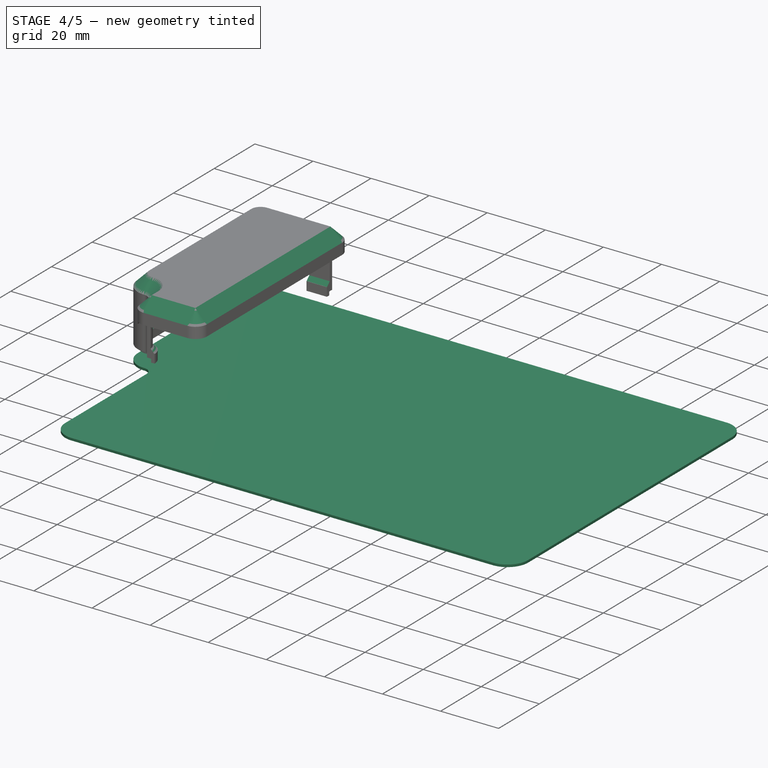
[diagram: stage 4 of 5 — iso view after this stage's code; geometry added in this stage tinted green]
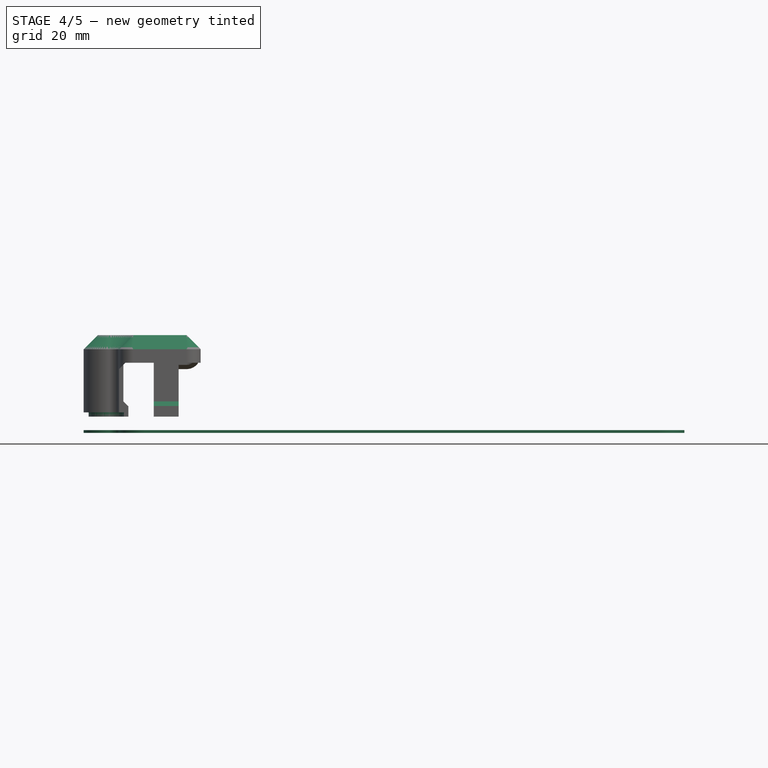
[diagram: stage 4 of 5 — front view after this stage's code; geometry added in this stage tinted green]
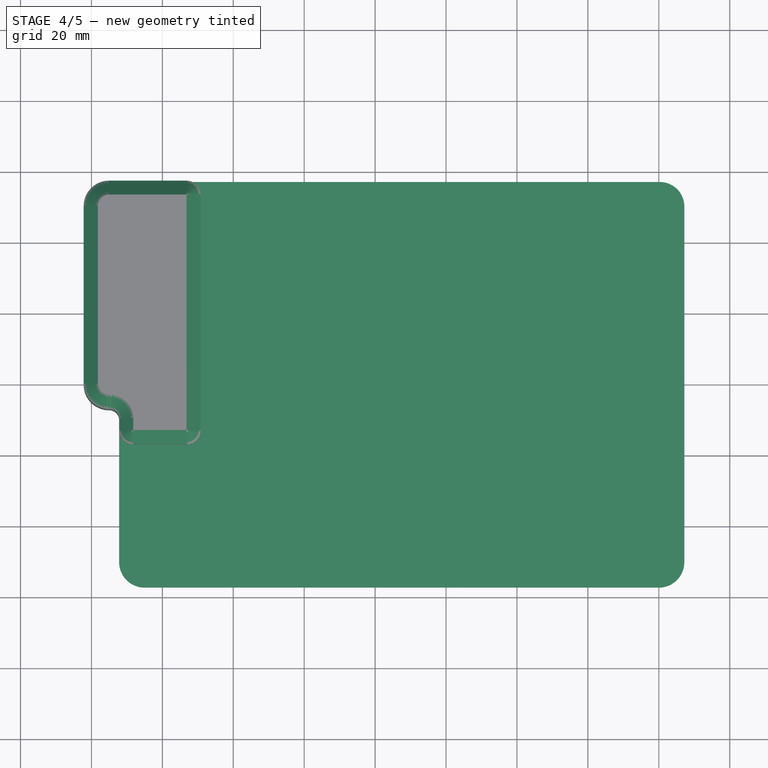
[diagram: stage 4 of 5 — top view after this stage's code; geometry added in this stage tinted green]
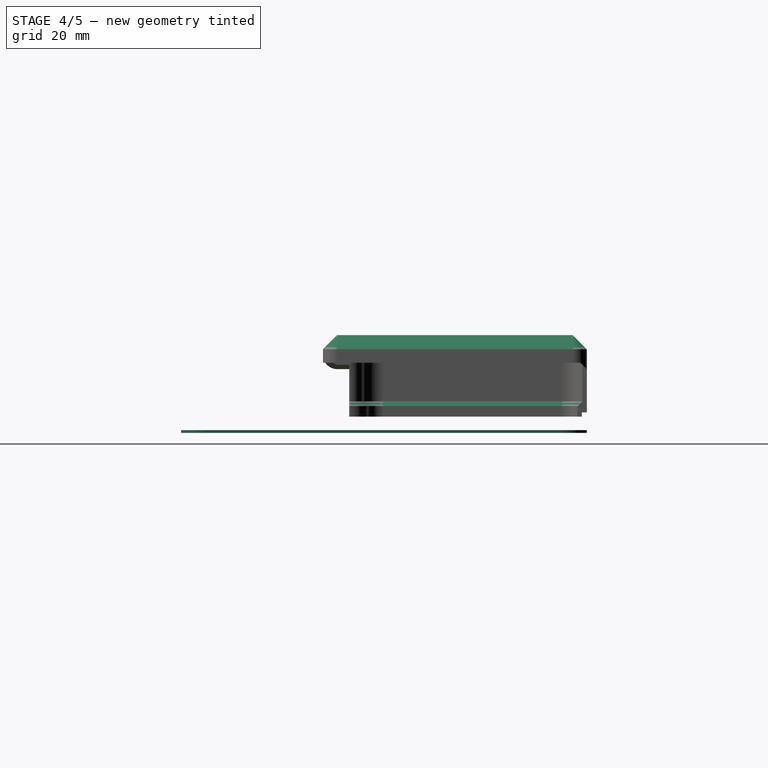
[diagram: stage 4 of 5 — right view after this stage's code; geometry added in this stage tinted green]
FEATURE [Part::Feature] Solid004  label="GrblHAL_Keypad PCB"
  FixShape = 1
  InvalidShape = false
  TreeRank = 180
  ValidateShape = false
  shape: bbox 165 x 110 x 1.6 mm, 412 faces (baked)
FEATURE [App::Part] Part006  label="GrblHAL_Keypad 1"
  ClaimAllChildren = false
  ExportMode = 1
  Group = -> [Solid004]
  Origin = -> Origin006
  TreeRank = 182
  _ExportChildren = -> [Solid004]
  _GroupVersion = 1
FEATURE [Part::SubShapeBinder] Import  label="Import(GrblHAL_Keypad PCB)"
  BindCopyOnChange = 0
  BindMode = 0
  ClaimChildren = false
  Context = -> Body [Import.]
  EdgeTolerance = 1e-06
  FillStyle = 0
  FixShape = 1
  Fuse = false
  InvalidShape = false
  MakeFace = false
  MergeEdges = true
  OffsetFill = false
  OffsetIntersection = false
  OffsetJoinType = 0
  OffsetOpenResult = false
  Outline = false
  PartialLoad = false
  Relative = true
  SplitEdges = false
  Support = -> [Part006[Solid004.]]
  TightBound = false
  TreeRank = 196
  ValidateShape = false
  _Version = 8
FEATURE [PartDesign::Plane] DatumPlane
  AttachmentOffset = pos=(0,0,3) rot=(0,0,1;0rad)
  AttachmentSupport = -> [Import]
  FixShape = 1
  InvalidShape = false
  Length = 207.2
  MapMode = 5
  MinimumLength = 10
  MinimumWidth = 10
  Placement = pos=(0,0,-3) rot=(1,0,0;3.14159rad)
  ResizeMode = 0
  Support = -> [Import]
  TreeRank = 195
  ValidateShape = false
  Width = 137.2
  expr: AttachmentOffset.Base.z = <<Vars>>.Pcb2BotSpace
FEATURE [Sketcher::SketchObject] Sketch
  ArcFitTolerance = 1e-06
  AttachmentSupport = -> [DatumPlane]
  ExternalBSplineMaxDegree = 5
  ExternalBSplineTolerance = 0.0001
  ExternalGeometry = -> [Import]
  FixShape = 1
  FullyConstrained = false
  InternalTolerance = 1e-06
  InvalidShape = false
  MakeInternals = false
  MapMode = 5
  Placement = pos=(0,0,-3) rot=(1,0,0;3.14159rad)
  Support = -> [DatumPlane]
  TreeRank = 199
  ValidateShape = false
  expr: Constraints[4] = <<Vars>>.Pcb2SideSpace
  expr: Constraints[5] = <<Vars>>.Pcb2SideSpace
  expr: Constraints[6] = <<Vars>>.Pcb2SideSpace
  expr: Constraints[8] = <<Vars>>.Pcb2SideSpace
  expr: Constraints[9] = <<Vars>>.Pcb2SideSpace
  sketch-geometry (11):
    g0: LineSegment StartX=55 StartY=137.2 StartZ=0 EndX=200 EndY=137.2 EndZ=0
    g1: LineSegment StartX=207.2 StartY=130 StartZ=0 EndX=207.2 EndY=30 EndZ=0
    g2: LineSegment StartX=200 StartY=22.8 StartZ=0 EndX=45 EndY=22.8 EndZ=0
    g3: LineSegment StartX=37.8 StartY=80 StartZ=0 EndX=37.8 EndY=30 EndZ=0
    g4: LineSegment StartX=47.8 StartY=130 StartZ=0 EndX=47.8 EndY=90 EndZ=0
    g5: ArcOfCircle CenterX=55 CenterY=130 CenterZ=0 NormalX=0 NormalY=0 NormalZ=1 AngleXU=0 Radius=7.2 StartAngle=1.5708 EndAngle=3.14159
    g6: ArcOfCircle CenterX=45 CenterY=30 CenterZ=0 NormalX=0 NormalY=0 NormalZ=1 AngleXU=0 Radius=7.2 StartAngle=3.14159 EndAngle=4.71239
    g7: ArcOfCircle CenterX=200.288 CenterY=29.712 CenterZ=0 NormalX=0 NormalY=0 NormalZ=1 AngleXU=0 Radius=6.91798 StartAngle=4.67074 EndAngle=6.32483
    g8: ArcOfCircle CenterX=200 CenterY=130 CenterZ=0 NormalX=0 NormalY=0 NormalZ=1 AngleXU=0 Radius=7.2 StartAngle=0 EndAngle=1.5708
    g9: ArcOfCircle CenterX=45 CenterY=90 CenterZ=0 NormalX=0 NormalY=0 NormalZ=1 AngleXU=0 Radius=2.8 StartAngle=4.71239 EndAngle=6.28319
    g10: ArcOfCircle CenterX=45 CenterY=80 CenterZ=0 NormalX=0 NormalY=0 NormalZ=1 AngleXU=0 Radius=7.2 StartAngle=1.5708 EndAngle=3.14159
  constraints (29):
    c: Horizontal(g0)
    c: Vertical(g1)
    c: Horizontal(g2)
    c: Vertical(g3)
    c: DistanceY(g-3,g0) = 2.2
    c: DistanceX(g-7,g1) = 2.2
    c: DistanceY(g2,g-6) = 2.2
    c: Vertical(g4)
    c: DistanceX(g4,g-4) = 2.2
    c: DistanceX(g3,g-5) = 2.2
    c: Vertical(g0,g-3)
    c: Vertical(g0,g-3)
    c: Horizontal(g1,g-7)
    c: Horizontal(g-4,g4)
    c: Horizontal(g3,g-5)
    c: Horizontal(g-5,g3)
    c: Vertical(g2,g-6)
    c: Coincident(g7,g2)
    c: Coincident(g7,g1)
    c: Tangent(g8,g1) = 1.5708
    c: Tangent(g8,g0) = 1.5708
    c: Tangent(g5,g0) = 1.5708
    c: Tangent(g5,g4) = -1.5708
    c: Tangent(g6,g2) = 1.5708
    c: Tangent(g6,g3) = -1.5708
    c: Tangent(g9,g4) = 1.5708
    c: Tangent(g10,g3) = -1.5708
    c: Tangent(g10,g9) = 1.5708
    c: Vertical(g6,g10)
FEATURE [Spreadsheet::Sheet] Spreadsheet  label="Vars"
  PythonMode = false
  ShowCells = 0
  TreeRank = 198
  cells = A1=Pcb2SideSpace; B1(Pcb2SideSpace)=2.2; A2=Pcb2BotSpace; B2(Pcb2BotSpace)=3; A3=BoxThickVert; B3(BoxThickVert)=1.2; A4=BoxThickHoriz; B4(BoxThickHoriz)=0.8; A5=PcbThick; B5(PcbThick)=1.6; A6=BotTopOvrlp; B6(BotTopOvrlp)=1; A7=BotWallHeight; B7(BotWallHeight)==Pcb2BotSpace + PcbThick + BotTopOvrlp; A8=BotStudDiam; B8(BotStudDiam)=8; A9=ScrewHoleDiam; B9(ScrewHoleDiam)=3.4; A10=InsertHoleDiam; B10(InsertHoleDiam)=4.2; A11=CapOpening; B11(CapOpening)=18.4; A12=Top2PcbSpace; B12(Top2PcbSpace)=14.4; A13=McuTop2Pcb; B13(McuTop2Pcb)==Top2PcbSpace + 7
FEATURE [PartDesign::Pad] Pad
  AddSubType = 0
  AlongSketchNormal = false
  AutoTaperInnerAngle = true
  CheckUpToFaceLimits = true
  ClaimChildren = false
  Direction = (0,0,-1)
  Fit = 0
  FitJoin = 0
  FixShape = 1
  InnerFit = 0
  InnerFitJoin = 0
  InvalidShape = false
  Length = 0.8
  Length2 = 100
  Linearize = true
  NewSolid = false
  Profile = -> Sketch
  Refine = true
  Suppress = false
  TaperInnerAngle = 0
  TaperInnerAngleRev = 0
  TreeRank = 200
  Type = 0
  ValidateShape = false
  _ProfileBasedVersion = 1
  expr: Length = <<Vars>>.BoxThickHoriz
FEATURE [Sketcher::SketchObject] Sketch031
  ArcFitTolerance = 1e-06
  AttachmentSupport = -> [Pad013]
  ExternalBSplineMaxDegree = 5
  ExternalBSplineTolerance = 0.0001
  ExternalGeometry = -> [Pad013]
  FixShape = 1
  FullyConstrained = true
  InternalTolerance = 1e-06
  InvalidShape = false
  MakeInternals = false
  MapMode = 5
  Placement = pos=(0,0,0.8) rot=(1,0,0;3.14159rad)
  Support = -> [Pad013]
  TreeRank = 304
  ValidateShape = false
  expr: Constraints[19] = <<Vars>>.BoxThickVert + 0.2
  sketch-geometry (7):
    g0: ArcOfCircle CenterX=45 CenterY=30 CenterZ=0 NormalX=0 NormalY=0 NormalZ=1 AngleXU=0 Radius=5.8 StartAngle=3.14159 EndAngle=4.71239
    g1: ArcOfCircle CenterX=45 CenterY=80 CenterZ=0 NormalX=0 NormalY=0 NormalZ=1 AngleXU=0 Radius=5.8 StartAngle=1.5708 EndAngle=3.14159
    g2: ArcOfCircle CenterX=45 CenterY=90 CenterZ=0 NormalX=0 NormalY=0 NormalZ=1 AngleXU=0 Radius=4.2 StartAngle=4.71239 EndAngle=6.23555
    g3: LineSegment StartX=49.1952 StartY=89.8 StartZ=0 EndX=47.7928 EndY=89.8 EndZ=0
    g4: LineSegment StartX=45 StartY=24.2 StartZ=0 EndX=64.6 EndY=24.2 EndZ=0
    g5: LineSegment StartX=64.6 StartY=24.2 StartZ=0 EndX=64.6 EndY=22.8 EndZ=0
    g6: LineSegment StartX=39.2 StartY=30 StartZ=0 EndX=39.2 EndY=80 EndZ=0
  constraints (20):
    c: Coincident(g0,g-6)
    c: Coincident(g1,g-4)
    c: Coincident(g2,g-3)
    c: Coincident(g2,g1)
    c: Horizontal(g-3,g2)
    c: Vertical(g-4,g1)
    c: Vertical(g-7,g0)
    c: Horizontal(g0,g-6)
    c: Horizontal(g1,g-5)
    c: Coincident(g3,g2)
    c: Coincident(g3,g-3)
    c: Coincident(g4,g0)
    c: Horizontal(g4)
    c: Coincident(g5,g-7)
    c: Coincident(g6,g0)
    c: Coincident(g6,g1)
    c: Vertical(g6)
    c: Vertical(g5)
    c: Coincident(g5,g4)
    c: Distance(g5) = 1.4
FEATURE [PartDesign::Pocket] Pocket015
  AddSubType = 1
  AutoTaperInnerAngle = true
  BaseFeature = -> Pad013
  CheckUpToFaceLimits = true
  ClaimChildren = false
  Fit = 0
  FitJoin = 0
  FixShape = 1
  InnerFit = 0
  InnerFitJoin = 0
  InvalidShape = false
  Length = 1.2
  Length2 = 100
  Linearize = true
  NewSolid = false
  Profile = -> Sketch031
  Refine = true
  Suppress = false
  TaperInnerAngle = 0
  TaperInnerAngleRev = 0
  TreeRank = 305
  Type = 0
  ValidateShape = false
  _ProfileBasedVersion = 1
  _Version = 1
  expr: Length = <<Vars>>.BotTopOvrlp + 0.2
FEATURE [Sketcher::SketchObject] Sketch032
  ArcFitTolerance = 1e-06
  AttachmentSupport = -> [Pocket015]
  ExternalBSplineMaxDegree = 5
  ExternalBSplineTolerance = 0.0001
  ExternalGeometry = -> [Import005,Pocket015]
  FixShape = 1
  FullyConstrained = true
  InternalTolerance = 1e-06
  InvalidShape = false
  MakeInternals = false
  MapMode = 5
  Placement = pos=(0,0,23) rot=(1,0,0;3.14159rad)
  Support = -> [Pocket015]
  TreeRank = 306
  ValidateShape = false
  sketch-geometry (9):
    g0: ArcOfCircle CenterX=68 CenterY=76 CenterZ=0 NormalX=0 NormalY=0 NormalZ=1 AngleXU=0 Radius=4 StartAngle=0.795399 EndAngle=2.34619
    g1: ArcOfCircle CenterX=68 CenterY=30 CenterZ=0 NormalX=0 NormalY=0 NormalZ=1 AngleXU=0 Radius=4 StartAngle=0.795399 EndAngle=2.34619
    g2: LineSegment StartX=70.8 StartY=78.8566 StartZ=0 EndX=70.8 EndY=73.1434 EndZ=0
    g3: LineSegment StartX=70.8 StartY=32.8566 StartZ=0 EndX=70.8 EndY=27.1434 EndZ=0
    g4: LineSegment [constr] StartX=68 StartY=76 StartZ=0 EndX=68 EndY=30 EndZ=0
    g5: LineSegment StartX=65.2 StartY=32.8566 StartZ=0 EndX=65.2 EndY=27.1434 EndZ=0
    g6: LineSegment StartX=65.2 StartY=78.8566 StartZ=0 EndX=65.2 EndY=73.1434 EndZ=0
    g7: ArcOfCircle CenterX=68 CenterY=30 CenterZ=0 NormalX=0 NormalY=0 NormalZ=1 AngleXU=0 Radius=4 StartAngle=3.93699 EndAngle=5.48779
    g8: ArcOfCircle CenterX=68 CenterY=76 CenterZ=0 NormalX=0 NormalY=0 NormalZ=1 AngleXU=0 Radius=4 StartAngle=3.93699 EndAngle=5.48779
  constraints (26):
    c: Coincident(g0,g-3)
    c: Coincident(g1,g-4)
    c: Equal(g1,g0)
    c: Diameter(g0) = 8
    c: PointOnObject(g2,g-5)
    c: Vertical(g2)
    c: Vertical(g3)
    c: PointOnObject(g3,g-5)
    c: Coincident(g4,g0)
    c: Coincident(g4,g1)
    c: Vertical(g6)
    c: Vertical(g5)
    c: Symmetric(g2,g6,g4)
    c: Symmetric(g3,g5,g4)
    c: Coincident(g7,g3)
    c: Coincident(g1,g3)
    c: Equal(g1,g7)
    c: Coincident(g1,g5)
    c: PointOnObject(g7,g5)
    c: Coincident(g1,g7)
    c: Coincident(g8,g2)
    c: Coincident(g0,g2)
    c: Equal(g0,g8)
    c: Coincident(g0,g6)
    c: PointOnObject(g8,g6)
    c: Coincident(g0,g8)
FEATURE [PartDesign::Pad] Pad014
  AddSubType = 0
  AlongSketchNormal = false
  AutoTaperInnerAngle = true
  BaseFeature = -> Pocket015
  CheckUpToFaceLimits = true
  ClaimChildren = false
  Direction = (0,0,-1)
  Fit = 0
  FitJoin = 0
  FixShape = 1
  InnerFit = 0
  InnerFitJoin = 0
  InvalidShape = false
  Length = 10
  Length2 = 100
  Linearize = true
  NewSolid = false
  Profile = -> Sketch032
  Refine = true
  Suppress = false
  TaperInnerAngle = 0
  TaperInnerAngleRev = 0
  TreeRank = 307
  Type = 3
  UpToFace = -> Pocket015 [Face7]
  ValidateShape = false
  _ProfileBasedVersion = 1
FEATURE [Sketcher::SketchObject] Sketch033
  ArcFitTolerance = 1e-06
  AttachmentSupport = -> [Pad014]
  ExternalBSplineMaxDegree = 5
  ExternalBSplineTolerance = 0.0001
  ExternalGeometry = -> [Pad014]
  FixShape = 1
  FullyConstrained = true
  InternalTolerance = 1e-06
  InvalidShape = false
  MakeInternals = false
  MapMode = 5
  Placement = pos=(-4.5e-15,5e-16,16) rot=(1,0,0;3.14159rad)
  Support = -> [Pad014]
  TreeRank = 308
  ValidateShape = false
  sketch-geometry (2):
    g0: Circle CenterX=68 CenterY=76 CenterZ=0 NormalX=0 NormalY=0 NormalZ=1 AngleXU=0 Radius=2.1
    g1: Circle CenterX=68 CenterY=30 CenterZ=0 NormalX=0 NormalY=0 NormalZ=1 AngleXU=0 Radius=2.1
  constraints (4):
    c: Coincident(g0,g-3)
    c: Coincident(g1,g-4)
    c: Equal(g1,g0)
    c: Diameter(g0) = 4.2
FEATURE [PartDesign::Pocket] Pocket016
  AddSubType = 1
  AutoTaperInnerAngle = true
  BaseFeature = -> Pad014
  CheckUpToFaceLimits = true
  ClaimChildren = false
  Fit = 0
  FitJoin = 0
  FixShape = 1
  InnerFit = 0
  InnerFitJoin = 0
  InvalidShape = false
  Length = 4
  Length2 = 100
  Linearize = true
  NewSolid = false
  Profile = -> Sketch033
  Refine = true
  Suppress = false
  TaperInnerAngle = 0
  TaperInnerAngleRev = 0
  TreeRank = 309
  Type = 0
  ValidateShape = false
  _ProfileBasedVersion = 1
  _Version = 1
FEATURE [PartDesign::Chamfer] Chamfer010
  AddSubType = 0
  Angle = 45
  Base = -> Pocket016 [Edge52]
  BaseFeature = -> Pocket016
  ChamferType = 0
  FixShape = 1
  FlipDirection = false
  InvalidShape = false
  NewSolid = false
  Refine = true
  Size = 4
  Size2 = 1
  SupportTransform = false
  Suppress = false
  TreeRank = 310
  ValidateShape = false
FEATURE [Sketcher::SketchObject] Sketch034
  ArcFitTolerance = 1e-06
  AttachmentSupport = -> [Chamfer010]
  ExternalBSplineMaxDegree = 5
  ExternalBSplineTolerance = 0.0001
  ExternalGeometry = -> [Import004]
  FixShape = 1
  FullyConstrained = true
  InternalTolerance = 1e-06
  InvalidShape = false
  MakeInternals = false
  MapMode = 5
  Placement = pos=(1.1e-15,-22.8,9e-16) rot=(0,0.707107,0.707107;3.14159rad)
  Support = -> [Chamfer010]
  TreeRank = 311
  ValidateShape = false
  sketch-geometry (4):
    g0: LineSegment StartX=-57.58 StartY=19.6 StartZ=0 EndX=-47.18 EndY=19.6 EndZ=0
    g1: LineSegment StartX=-47.18 StartY=19.6 StartZ=0 EndX=-47.18 EndY=-2.4 EndZ=0
    g2: LineSegment StartX=-47.18 StartY=-2.4 StartZ=0 EndX=-57.58 EndY=-2.4 EndZ=0
    g3: LineSegment StartX=-57.58 StartY=-2.4 StartZ=0 EndX=-57.58 EndY=19.6 EndZ=0
  constraints (12):
    c: Coincident(g0,g1)
    c: Coincident(g1,g2)
    c: Coincident(g2,g3)
    c: Coincident(g3,g0)
    c: Horizontal(g0)
    c: Horizontal(g2)
    c: Vertical(g1)
    c: Vertical(g3)
    c: DistanceX(g-3,g1) = 0.2
    c: DistanceX(g2,g-4) = 0.2
    c: Distance(g3) = 22
    c: DistanceY(g-5,g0) = 6
FEATURE [PartDesign::Pocket] Pocket017
  AddSubType = 1
  AutoTaperInnerAngle = true
  BaseFeature = -> Chamfer010
  CheckUpToFaceLimits = true
  ClaimChildren = false
  Fit = 0
  FitJoin = 0
  FixShape = 1
  InnerFit = 0
  InnerFitJoin = 0
  InvalidShape = false
  Length = 5
  Length2 = 100
  Linearize = true
  NewSolid = false
  Profile = -> Sketch034
  Refine = true
  Suppress = false
  TaperInnerAngle = 0
  TaperInnerAngleRev = 0
  TreeRank = 312
  Type = 0
  ValidateShape = false
  _ProfileBasedVersion = 1
  _Version = 1
FEATURE [Sketcher::SketchObject] Sketch035
  ArcFitTolerance = 1e-06
  AttachmentSupport = -> [Pocket017]
  ExternalBSplineMaxDegree = 5
  ExternalBSplineTolerance = 0.0001
  ExternalGeometry = -> [Pocket017]
  FixShape = 1
  FullyConstrained = true
  InternalTolerance = 1e-06
  InvalidShape = false
  MakeInternals = false
  MapMode = 5
  Placement = pos=(47.18,2.2e-15,0) rot=(0.57735,0.57735,0.57735;2.0944rad)
  Support = -> [Pocket017]
  TreeRank = 313
  ValidateShape = false
  sketch-geometry (5):
    g0: LineSegment StartX=-22.8 StartY=19.6 StartZ=0 EndX=-23.8 EndY=18.6 EndZ=0
    g1: LineSegment StartX=-23.8 StartY=18.6 StartZ=0 EndX=-23.8 EndY=16.6 EndZ=0
    g2: LineSegment StartX=-23.8 StartY=16.6 StartZ=0 EndX=-25 EndY=16.6 EndZ=0
    g3: LineSegment StartX=-25 StartY=16.6 StartZ=0 EndX=-25 EndY=18.6 EndZ=0
    g4: LineSegment StartX=-25 StartY=18.6 StartZ=0 EndX=-24 EndY=19.6 EndZ=0
  constraints (14):
    c: Coincident(g-3,g0)
    c: Coincident(g0,g1)
    c: Vertical(g1)
    c: Coincident(g1,g2)
    c: Horizontal(g2)
    c: Coincident(g2,g3)
    c: Coincident(g3,g4)
    c: Coincident(g4,g-3)
    c: Vertical(g3)
    c: DistanceY(g2,g4) = 3
    c: Parallel(g0,g4)
    c: Angle(g-3,g0) = 0.785398
    c: Equal(g0,g4)
    c: DistanceX(g-4,g1) = 0.2
FEATURE [PartDesign::Pad] Pad015
  AddSubType = 0
  AlongSketchNormal = false
  AutoTaperInnerAngle = true
  BaseFeature = -> Pocket017
  CheckUpToFaceLimits = true
  ClaimChildren = false
  Direction = (1,0,0)
  Fit = 0
  FitJoin = 0
  FixShape = 1
  InnerFit = 0
  InnerFitJoin = 0
  InvalidShape = false
  Length = 10
  Length2 = 100
  Linearize = true
  NewSolid = false
  Profile = -> Sketch035
  Refine = true
  Suppress = false
  TaperInnerAngle = 0
  TaperInnerAngleRev = 0
  TreeRank = 314
  Type = 3
  UpToFace = -> Pocket017 [Face57]
  ValidateShape = false
  _ProfileBasedVersion = 1
FEATURE [PartDesign::Chamfer] Chamfer011
  AddSubType = 0
  Angle = 45
  Base = -> Pad015 [Edge97,Edge95]
  BaseFeature = -> Pad015
  ChamferType = 0
  FixShape = 1
  FlipDirection = false
  InvalidShape = false
  NewSolid = false
  Refine = true
  Size = 0.9
  Size2 = 1
  SupportTransform = false
  Suppress = false
  TreeRank = 315
  ValidateShape = false
FEATURE [PartDesign::Chamfer] Chamfer012
  AddSubType = 0
  Angle = 45
  Base = -> Chamfer011 [Edge126,Edge128]
  BaseFeature = -> Chamfer011
  ChamferType = 0
  FixShape = 1
  FlipDirection = false
  InvalidShape = false
  NewSolid = false
  Refine = true
  Size = 0.8
  Size2 = 1
  SupportTransform = false
  Suppress = false
  TreeRank = 316
  ValidateShape = false
FEATURE [PartDesign::Chamfer] Chamfer013
  AddSubType = 0
  Angle = 45
  Base = -> Chamfer012 [Edge61,Edge9]
  BaseFeature = -> Chamfer012
  ChamferType = 0
  FixShape = 1
  FlipDirection = false
  InvalidShape = false
  NewSolid = false
  Refine = true
  Size = 1.3
  Size2 = 1
  SupportTransform = false
  Suppress = false
  TreeRank = 317
  ValidateShape = false
FEATURE [PartDesign::Body] Body002  label="McuCover"
  AutoGroupSolids = false
  ClaimAllChildren = false
  ExportMode = 0
  FixShape = 1
  Group = -> [DatumPlane002,Import003,Sketch025,Import004,Import005,Pad010,Sketch026,Pad011,Chamfer009,Sketch027,Pad012,Sketch028,Pocket013,Import006,Sketch029,Pocket014,Sketch030,Import007,Pad013,Sketch031,Pocket015,Sketch032,Pad014,Sketch033,Pocket016,Chamfer010,Sketch034,Pocket017,Sketch035,Pad015,Chamfer011,Chamfer012,Chamfer013]
  InvalidShape = false
  Origin = -> Origin008
  Tip = -> Chamfer013
  TreeRank = 282
  ValidateShape = false
  _ExportChildren = -> [DatumPlane002,Import003,Import004,Import005,Pad010,Pad011,Chamfer009,Pad012,Pocket013,Import006,Pocket014,Import007,Pad013,Pocket015,Pad014,Pocket016,Chamfer010,Pocket017,Pad015,Chamfer011,Chamfer012,Chamfer013]
  _GroupVersion = 1
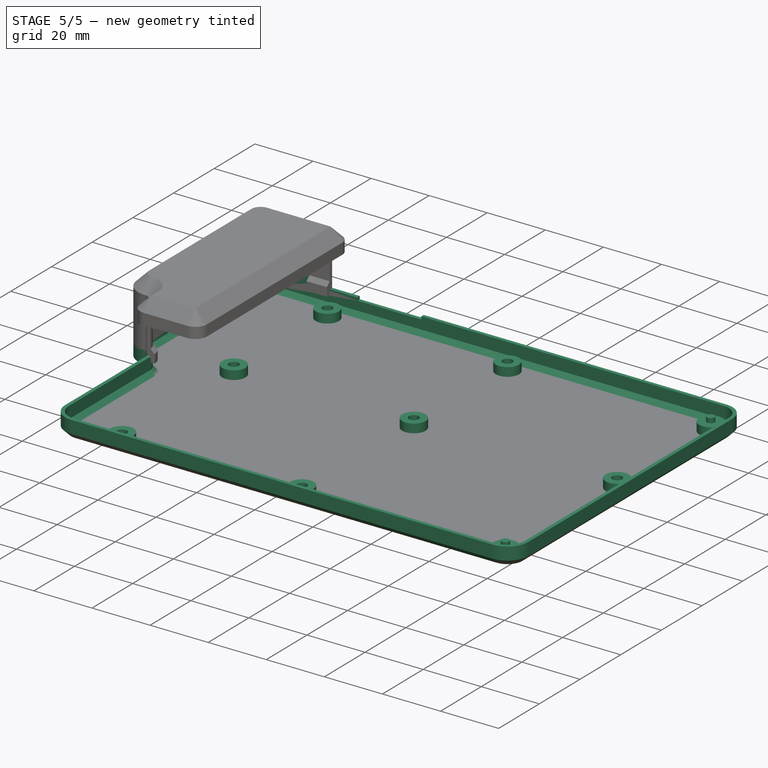
[diagram: stage 5 of 5 — iso view after this stage's code; geometry added in this stage tinted green]
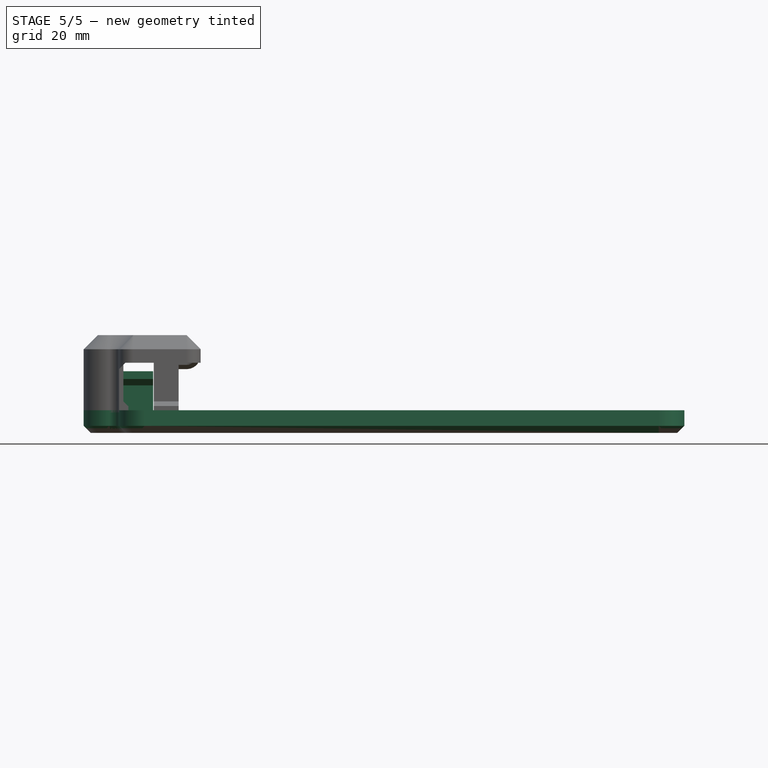
[diagram: stage 5 of 5 — front view after this stage's code; geometry added in this stage tinted green]
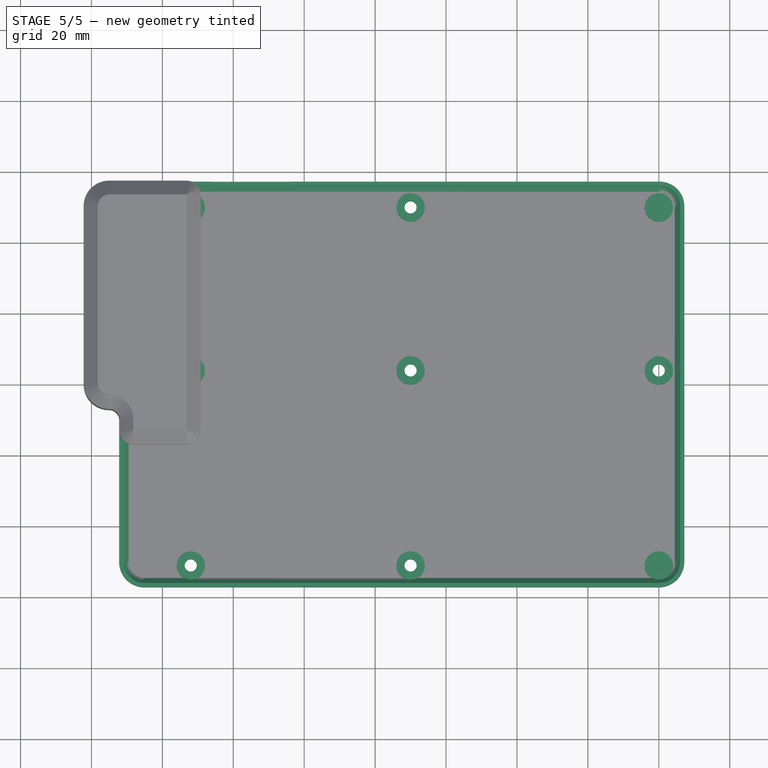
[diagram: stage 5 of 5 — top view after this stage's code; geometry added in this stage tinted green]
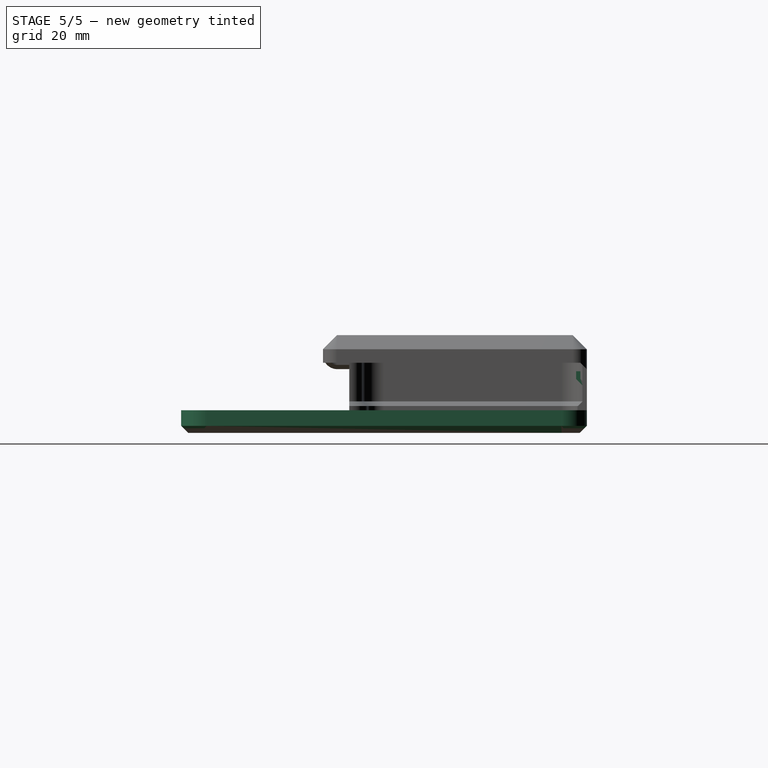
[diagram: stage 5 of 5 — right view after this stage's code; geometry added in this stage tinted green]
FEATURE [Sketcher::SketchObject] Sketch001
  ArcFitTolerance = 1e-06
  AttachmentSupport = -> [Pad]
  ExternalBSplineMaxDegree = 5
  ExternalBSplineTolerance = 0.0001
  ExternalGeometry = -> [Pad]
  FixShape = 1
  FullyConstrained = true
  InternalTolerance = 1e-06
  InvalidShape = false
  MakeInternals = false
  MapMode = 5
  Placement = pos=(0,0,-3) rot=(0,0,1;0rad)
  Support = -> [Pad]
  TreeRank = 201
  ValidateShape = false
  expr: Constraints[32] = <<Vars>>.BoxThickVert
  sketch-geometry (11):
    g0: ArcOfCircle CenterX=45 CenterY=-30 CenterZ=0 NormalX=0 NormalY=0 NormalZ=1 AngleXU=0 Radius=6 StartAngle=1.5708 EndAngle=3.14159
    g1: ArcOfCircle CenterX=45 CenterY=-80 CenterZ=0 NormalX=0 NormalY=0 NormalZ=1 AngleXU=0 Radius=6 StartAngle=3.14159 EndAngle=4.71239
    g2: ArcOfCircle CenterX=45 CenterY=-90 CenterZ=0 NormalX=0 NormalY=0 NormalZ=1 AngleXU=0 Radius=4 StartAngle=-9e-16 EndAngle=1.57079
    g3: ArcOfCircle CenterX=55 CenterY=-130 CenterZ=0 NormalX=0 NormalY=0 NormalZ=1 AngleXU=0 Radius=6 StartAngle=3.14159 EndAngle=4.71239
    g4: ArcOfCircle CenterX=200 CenterY=-130 CenterZ=0 NormalX=0 NormalY=0 NormalZ=1 AngleXU=0 Radius=6 StartAngle=4.71239 EndAngle=6.28319
    g5: ArcOfCircle CenterX=200.288 CenterY=-29.712 CenterZ=0 NormalX=0 NormalY=0 NormalZ=1 AngleXU=0 Radius=5.71924 StartAngle=6.2328 EndAngle=7.90436
    g6: LineSegment StartX=200 StartY=-24 StartZ=0 EndX=45 EndY=-24 EndZ=0
    g7: LineSegment StartX=39 StartY=-30 StartZ=0 EndX=39 EndY=-80 EndZ=0
    g8: LineSegment StartX=49 StartY=-90 StartZ=0 EndX=49 EndY=-130 EndZ=0
    g9: LineSegment StartX=55 StartY=-136 StartZ=0 EndX=200 EndY=-136 EndZ=0
    g10: LineSegment StartX=206 StartY=-130 StartZ=0 EndX=206 EndY=-30 EndZ=0
  constraints (33):
    c: Coincident(g0,g-6)
    c: Coincident(g1,g-8)
    c: Coincident(g2,g-9)
    c: Coincident(g2,g1)
    c: Coincident(g3,g-12)
    c: Coincident(g4,g-13)
    c: Coincident(g5,g-3)
    c: Coincident(g6,g5)
    c: Coincident(g6,g0)
    c: Horizontal(g6)
    c: Coincident(g7,g0)
    c: Coincident(g7,g1)
    c: Vertical(g7)
    c: Coincident(g8,g2)
    c: Coincident(g8,g3)
    c: Vertical(g8)
    c: Tangent(g8,g3)
    c: Coincident(g9,g3)
    c: Coincident(g9,g4)
    c: Horizontal(g9)
    c: Coincident(g10,g4)
    c: Coincident(g10,g5)
    c: Vertical(g10)
    c: Horizontal(g-4,g5)
    c: Horizontal(g-13,g4)
    c: Horizontal(g2,g-10)
    c: Horizontal(g1,g-8)
    c: Horizontal(g0,g-7)
    c: Vertical(g-6,g0)
    c: Vertical(g5,g-5)
    c: Vertical(g-13,g4)
    c: Vertical(g-12,g3)
    c: DistanceX(g-10,g2) = 1.2
FEATURE [PartDesign::Pad] Pad001
  AddSubType = 0
  AlongSketchNormal = false
  AutoTaperInnerAngle = true
  BaseFeature = -> Pad
  CheckUpToFaceLimits = true
  ClaimChildren = false
  Direction = (0,0,1)
  Fit = 0
  FitJoin = 0
  FixShape = 1
  InnerFit = 0
  InnerFitJoin = 0
  InvalidShape = false
  Length = 5.6
  Length2 = 100
  Linearize = true
  NewSolid = false
  Profile = -> Sketch001
  Refine = true
  Suppress = false
  TaperInnerAngle = 0
  TaperInnerAngleRev = 0
  TreeRank = 202
  Type = 0
  ValidateShape = false
  _ProfileBasedVersion = 1
  expr: Length = <<Vars>>.BotWallHeight
FEATURE [Sketcher::SketchObject] Sketch002
  ArcFitTolerance = 1e-06
  AttachmentSupport = -> [Pad001]
  ExternalBSplineMaxDegree = 5
  ExternalBSplineTolerance = 0.0001
  ExternalGeometry = -> [Import]
  FixShape = 1
  FullyConstrained = true
  InternalTolerance = 1e-06
  InvalidShape = false
  MakeInternals = false
  MapMode = 5
  Placement = pos=(0,0,-3) rot=(0,0,1;0rad)
  Support = -> [Pad001]
  TreeRank = 203
  ValidateShape = false
  expr: Constraints[17] = <<Vars>>.BotStudDiam
  sketch-geometry (9):
    g0: Circle CenterX=68 CenterY=-30 CenterZ=0 NormalX=0 NormalY=0 NormalZ=1 AngleXU=0 Radius=4
    g1: Circle CenterX=130 CenterY=-30 CenterZ=0 NormalX=0 NormalY=0 NormalZ=1 AngleXU=0 Radius=4
    g2: Circle CenterX=200 CenterY=-30 CenterZ=0 NormalX=0 NormalY=0 NormalZ=1 AngleXU=0 Radius=4
    g3: Circle CenterX=130 CenterY=-76 CenterZ=0 NormalX=0 NormalY=0 NormalZ=1 AngleXU=0 Radius=4
    g4: Circle CenterX=68 CenterY=-76 CenterZ=0 NormalX=0 NormalY=0 NormalZ=1 AngleXU=0 Radius=4
    g5: Circle CenterX=68 CenterY=-131 CenterZ=0 NormalX=0 NormalY=0 NormalZ=1 AngleXU=0 Radius=4
    g6: Circle CenterX=130 CenterY=-131 CenterZ=0 NormalX=0 NormalY=0 NormalZ=1 AngleXU=0 Radius=4
    g7: Circle CenterX=200 CenterY=-131 CenterZ=0 NormalX=0 NormalY=0 NormalZ=1 AngleXU=0 Radius=4
    g8: Circle CenterX=200 CenterY=-76 CenterZ=0 NormalX=0 NormalY=0 NormalZ=1 AngleXU=0 Radius=4
  constraints (18):
    c: Coincident(g0,g-3)
    c: Coincident(g1,g-7)
    c: Coincident(g2,g-6)
    c: Coincident(g3,g-8)
    c: Coincident(g4,g-4)
    c: Coincident(g5,g-5)
    c: Coincident(g6,g-10)
    c: Coincident(g7,g-9)
    c: Coincident(g8,g-11)
    c: Equal(g0,g1)
    c: Equal(g1,g2)
    c: Equal(g2,g8)
    c: Equal(g8,g3)
    c: Equal(g3,g4)
    c: Equal(g4,g5)
    c: Equal(g5,g6)
    c: Equal(g6,g7)
    c: Diameter(g0) = 8
FEATURE [PartDesign::Chamfer] Chamfer
  AddSubType = 0
  Angle = 45
  Base = -> Pad001 [Edge50]
  BaseFeature = -> Pad001
  ChamferType = 0
  FixShape = 1
  FlipDirection = false
  InvalidShape = false
  NewSolid = false
  Refine = true
  Size = 1.5
  Size2 = 1
  SupportTransform = false
  Suppress = false
  TreeRank = 213
  ValidateShape = false
FEATURE [PartDesign::Pad] Pad002
  AddSubType = 0
  AlongSketchNormal = false
  AutoTaperInnerAngle = true
  BaseFeature = -> Chamfer
  CheckUpToFaceLimits = true
  ClaimChildren = false
  Direction = (0,0,1)
  Fit = 0
  FitJoin = 0
  FixShape = 1
  InnerFit = 0
  InnerFitJoin = 0
  InvalidShape = false
  Length = 3
  Length2 = 100
  Linearize = true
  NewSolid = false
  Profile = -> Sketch002
  Refine = true
  Suppress = false
  TaperInnerAngle = 0
  TaperInnerAngleRev = 0
  TreeRank = 204
  Type = 0
  ValidateShape = false
  _ProfileBasedVersion = 1
  expr: Length = <<Vars>>.Pcb2BotSpace
FEATURE [Sketcher::SketchObject] Sketch003
  ArcFitTolerance = 1e-06
  AttachmentSupport = -> [Pad002]
  ExternalBSplineMaxDegree = 5
  ExternalBSplineTolerance = 0.0001
  ExternalGeometry = -> [Pad002]
  FixShape = 1
  FullyConstrained = true
  InternalTolerance = 1e-06
  InvalidShape = false
  MakeInternals = false
  MapMode = 5
  Placement = pos=(0,0,2.6) rot=(0,0,1;0rad)
  Support = -> [Pad002]
  TreeRank = 205
  ValidateShape = false
  expr: Constraints[7] = <<Vars>>.ScrewHoleDiam
  sketch-geometry (7):
    g0: Circle CenterX=68 CenterY=-30 CenterZ=0 NormalX=0 NormalY=0 NormalZ=1 AngleXU=0 Radius=1.7
    g1: Circle CenterX=130 CenterY=-76 CenterZ=0 NormalX=0 NormalY=0 NormalZ=1 AngleXU=0 Radius=1.7
    g2: Circle CenterX=68 CenterY=-76 CenterZ=0 NormalX=0 NormalY=0 NormalZ=1 AngleXU=0 Radius=1.7
    g3: Circle CenterX=68 CenterY=-131 CenterZ=0 NormalX=0 NormalY=0 NormalZ=1 AngleXU=0 Radius=1.7
    g4: Circle CenterX=200 CenterY=-76 CenterZ=0 NormalX=0 NormalY=0 NormalZ=1 AngleXU=0 Radius=1.7
    g5: Circle CenterX=130 CenterY=-30 CenterZ=0 NormalX=0 NormalY=0 NormalZ=1 AngleXU=0 Radius=1.7
    g6: Circle CenterX=130 CenterY=-131 CenterZ=0 NormalX=0 NormalY=0 NormalZ=1 AngleXU=0 Radius=1.7
  constraints (14):
    c: Coincident(g0,g-7)
    c: Coincident(g1,g-5)
    c: Coincident(g2,g-8)
    c: Coincident(g3,g-9)
    c: Equal(g0,g1)
    c: Equal(g1,g2)
    c: Equal(g2,g3)
    c: Diameter(g1) = 3.4
    c: Coincident(g4,g-4)
    c: Coincident(g5,g-6)
    c: Coincident(g6,g-10)
    c: Equal(g4,g6)
    c: Equal(g6,g5)
    c: Equal(g5,g1)
FEATURE [PartDesign::Pocket] Pocket
  AddSubType = 1
  AutoTaperInnerAngle = true
  BaseFeature = -> Pad002
  CheckUpToFaceLimits = true
  ClaimChildren = false
  Fit = 0
  FitJoin = 0
  FixShape = 1
  InnerFit = 0
  InnerFitJoin = 0
  InvalidShape = false
  Length = 5
  Length2 = 100
  Linearize = true
  NewSolid = false
  Profile = -> Sketch003
  Refine = true
  Suppress = false
  TaperInnerAngle = 0
  TaperInnerAngleRev = 0
  TreeRank = 206
  Type = 1
  ValidateShape = false
  _ProfileBasedVersion = 1
  _Version = 1
FEATURE [Sketcher::SketchObject] Sketch004
  ArcFitTolerance = 1e-06
  AttachmentSupport = -> [Pocket]
  ExternalBSplineMaxDegree = 5
  ExternalBSplineTolerance = 0.0001
  ExternalGeometry = -> [Pocket,Import]
  FixShape = 1
  FullyConstrained = false
  InternalTolerance = 1e-06
  InvalidShape = false
  MakeInternals = false
  MapMode = 5
  Placement = pos=(0,0,2.6) rot=(0,0,1;0rad)
  Support = -> [Pocket]
  TreeRank = 207
  ValidateShape = false
  sketch-geometry (5):
    g0: LineSegment [constr] StartX=52.38 StartY=-19.4984 StartZ=0 EndX=52.38 EndY=-30.8205 EndZ=0
    g1: LineSegment StartX=47.38 StartY=-22.8 StartZ=0 EndX=57.38 EndY=-22.8 EndZ=0
    g2: LineSegment StartX=57.38 StartY=-22.8 StartZ=0 EndX=57.38 EndY=-24 EndZ=0
    g3: LineSegment StartX=57.38 StartY=-24 StartZ=0 EndX=47.38 EndY=-24 EndZ=0
    g4: LineSegment StartX=47.38 StartY=-24 StartZ=0 EndX=47.38 EndY=-22.8 EndZ=0
  constraints (12):
    c: Symmetric(g-5,g-6,g0)
    c: Coincident(g1,g2)
    c: Coincident(g2,g3)
    c: Coincident(g3,g4)
    c: Coincident(g4,g1)
    c: Horizontal(g3)
    c: Vertical(g2)
    c: Vertical(g4)
    c: PointOnObject(g1,g-3)
    c: PointOnObject(g2,g-4)
    c: Distance(g1) = 10
    c: Symmetric(g1,g1,g0)
FEATURE [PartDesign::Pad] Pad003
  AddSubType = 0
  AlongSketchNormal = false
  AutoTaperInnerAngle = true
  BaseFeature = -> Pocket
  CheckUpToFaceLimits = true
  ClaimChildren = false
  Direction = (0,0,1)
  Fit = 0
  FitJoin = 0
  FixShape = 1
  InnerFit = 0
  InnerFitJoin = 0
  InvalidShape = false
  Length = 7
  Length2 = 100
  Linearize = true
  NewSolid = false
  Profile = -> Sketch004
  Refine = true
  Suppress = false
  TaperInnerAngle = 0
  TaperInnerAngleRev = 0
  TreeRank = 208
  Type = 0
  ValidateShape = false
  _ProfileBasedVersion = 1
FEATURE [Sketcher::SketchObject] Sketch005
  ArcFitTolerance = 1e-06
  AttachmentSupport = -> [Pad003]
  ExternalBSplineMaxDegree = 5
  ExternalBSplineTolerance = 0.0001
  ExternalGeometry = -> [Pad003]
  FixShape = 1
  FullyConstrained = true
  InternalTolerance = 1e-06
  InvalidShape = false
  MakeInternals = false
  MapMode = 5
  Placement = pos=(47.38,0,0) rot=(0.57735,-0.57735,-0.57735;2.0944rad)
  Support = -> [Pad003]
  TreeRank = 209
  ValidateShape = false
  sketch-geometry (5):
    g0: LineSegment StartX=22.8 StartY=9.6 StartZ=0 EndX=24.6 EndY=11.4 EndZ=0
    g1: LineSegment StartX=24.6 StartY=11.4 StartZ=0 EndX=24.6 EndY=13.6 EndZ=0
    g2: LineSegment StartX=24.6 StartY=13.6 StartZ=0 EndX=25.8 EndY=13.6 EndZ=0
    g3: LineSegment StartX=25.8 StartY=13.6 StartZ=0 EndX=25.8 EndY=11.4 EndZ=0
    g4: LineSegment StartX=25.8 StartY=11.4 StartZ=0 EndX=24 EndY=9.6 EndZ=0
  constraints (14):
    c: Coincident(g-3,g0)
    c: Coincident(g0,g1)
    c: Vertical(g1)
    c: Coincident(g1,g2)
    c: Coincident(g2,g3)
    c: Vertical(g3)
    c: Coincident(g3,g4)
    c: Coincident(g4,g-3)
    c: Horizontal(g2)
    c: Equal(g2,g-3)
    c: Parallel(g0,g4)
    c: Angle(g-3,g0) = 0.785398
    c: DistanceY(g0,g1) = 4
    c: DistanceX(g4,g3) = 1.8
FEATURE [PartDesign::Pad] Pad004
  AddSubType = 0
  AlongSketchNormal = false
  AutoTaperInnerAngle = true
  BaseFeature = -> Pad003
  CheckUpToFaceLimits = true
  ClaimChildren = false
  Direction = (-1,0,0)
  Fit = 0
  FitJoin = 0
  FixShape = 1
  InnerFit = 0
  InnerFitJoin = 0
  InvalidShape = false
  Length = 10
  Length2 = 100
  Linearize = true
  NewSolid = false
  Profile = -> Sketch005
  Refine = true
  Reversed = true
  Suppress = false
  TaperInnerAngle = 0
  TaperInnerAngleRev = 0
  TreeRank = 210
  Type = 3
  UpToFace = -> Pad003 [Face23]
  ValidateShape = false
  _ProfileBasedVersion = 1
FEATURE [Sketcher::SketchObject] Sketch006
  ArcFitTolerance = 1e-06
  AttachmentSupport = -> [Pad004]
  ExternalBSplineMaxDegree = 5
  ExternalBSplineTolerance = 0.0001
  ExternalGeometry = -> [Import,Pad004]
  FixShape = 1
  FullyConstrained = false
  InternalTolerance = 1e-06
  InvalidShape = false
  MakeInternals = false
  MapMode = 5
  Placement = pos=(0,0,2.6) rot=(0,0,1;0rad)
  Support = -> [Pad004]
  TreeRank = 211
  ValidateShape = false
  sketch-geometry (5):
    g0: LineSegment [constr] StartX=85.11 StartY=-19.2568 StartZ=0 EndX=85.11 EndY=-32.1459 EndZ=0
    g1: LineSegment StartX=74.11 StartY=-22.8 StartZ=0 EndX=96.11 EndY=-22.8 EndZ=0
    g2: LineSegment StartX=96.11 StartY=-22.8 StartZ=0 EndX=96.11 EndY=-24 EndZ=0
    g3: LineSegment StartX=96.11 StartY=-24 StartZ=0 EndX=74.11 EndY=-24 EndZ=0
    g4: LineSegment StartX=74.11 StartY=-24 StartZ=0 EndX=74.11 EndY=-22.8 EndZ=0
  constraints (12):
    c: Symmetric(g-3,g-4,g0)
    c: Coincident(g1,g2)
    c: Coincident(g2,g3)
    c: Coincident(g3,g4)
    c: Coincident(g4,g1)
    c: Horizontal(g3)
    c: Vertical(g2)
    c: Vertical(g4)
    c: PointOnObject(g1,g-6)
    c: PointOnObject(g2,g-5)
    c: Symmetric(g1,g1,g0)
    c: Distance(g1) = 22
FEATURE [PartDesign::Pocket] Pocket001
  AddSubType = 1
  AutoTaperInnerAngle = true
  BaseFeature = -> Pad004
  CheckUpToFaceLimits = true
  ClaimChildren = false
  Fit = 0
  FitJoin = 0
  FixShape = 1
  InnerFit = 0
  InnerFitJoin = 0
  InvalidShape = false
  Length = 1
  Length2 = 100
  Linearize = true
  NewSolid = false
  Profile = -> Sketch006
  Refine = true
  Suppress = false
  TaperInnerAngle = 0
  TaperInnerAngleRev = 0
  TreeRank = 212
  Type = 0
  ValidateShape = false
  _ProfileBasedVersion = 1
  _Version = 1
  expr: Length = <<Vars>>.BotTopOvrlp
FEATURE [Sketcher::SketchObject] Sketch007
  ArcFitTolerance = 1e-06
  AttachmentSupport = -> [Pocket001]
  ExternalBSplineMaxDegree = 5
  ExternalBSplineTolerance = 0.0001
  ExternalGeometry = -> [Pocket001]
  FixShape = 1
  FullyConstrained = true
  InternalTolerance = 1e-06
  InvalidShape = false
  MakeInternals = false
  MapMode = 5
  Support = -> [Pocket001]
  TreeRank = 214
  ValidateShape = false
  sketch-geometry (2):
    g0: Circle CenterX=200 CenterY=-30 CenterZ=0 NormalX=0 NormalY=0 NormalZ=1 AngleXU=0 Radius=1.3
    g1: Circle CenterX=200 CenterY=-131 CenterZ=0 NormalX=0 NormalY=0 NormalZ=1 AngleXU=0 Radius=1.3
  constraints (4):
    c: Coincident(g0,g-3)
    c: Coincident(g1,g-4)
    c: Equal(g1,g0)
    c: Diameter(g0) = 2.6
FEATURE [PartDesign::Pad] Pad005
  AddSubType = 0
  AlongSketchNormal = false
  AutoTaperInnerAngle = true
  BaseFeature = -> Pocket001
  CheckUpToFaceLimits = true
  ClaimChildren = false
  Direction = (0,0,1)
  Fit = 0
  FitJoin = 0
  FixShape = 1
  InnerFit = 0
  InnerFitJoin = 0
  InvalidShape = false
  Length = 1.6
  Length2 = 100
  Linearize = true
  NewSolid = false
  Profile = -> Sketch007
  Refine = true
  Suppress = false
  TaperInnerAngle = 0
  TaperInnerAngleRev = 0
  TreeRank = 215
  Type = 0
  ValidateShape = false
  _ProfileBasedVersion = 1
  expr: Length = <<Vars>>.PcbThick
FEATURE [PartDesign::Chamfer] Chamfer001
  AddSubType = 0
  Angle = 45
  Base = -> Pad005 [Edge151,Edge154,Edge155,Edge152,Edge150,Edge149,Edge153]
  BaseFeature = -> Pad005
  ChamferType = 0
  FixShape = 1
  FlipDirection = false
  InvalidShape = false
  NewSolid = false
  Refine = true
  Size = 1.5
  Size2 = 1
  SupportTransform = false
  Suppress = false
  TreeRank = 216
  ValidateShape = false
FEATURE [PartDesign::Chamfer] Chamfer002
  AddSubType = 0
  Angle = 45
  Base = -> Chamfer001 [Edge4]
  BaseFeature = -> Chamfer001
  ChamferType = 0
  FixShape = 1
  FlipDirection = false
  InvalidShape = false
  NewSolid = false
  Refine = true
  Size = 2
  Size2 = 1
  SupportTransform = false
  Suppress = false
  TreeRank = 217
  ValidateShape = false
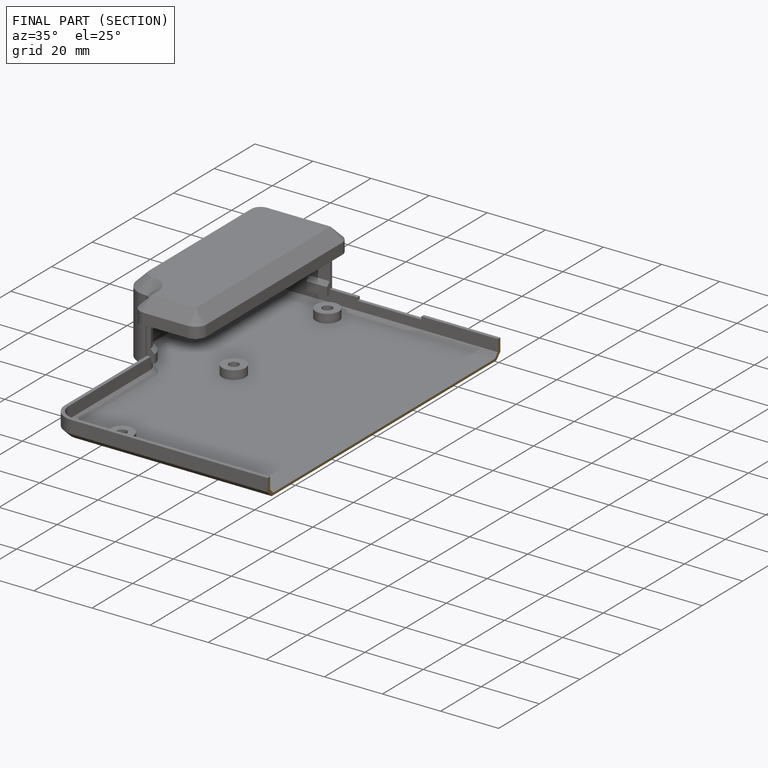
[diagram: finished part — half-section view (interior)]
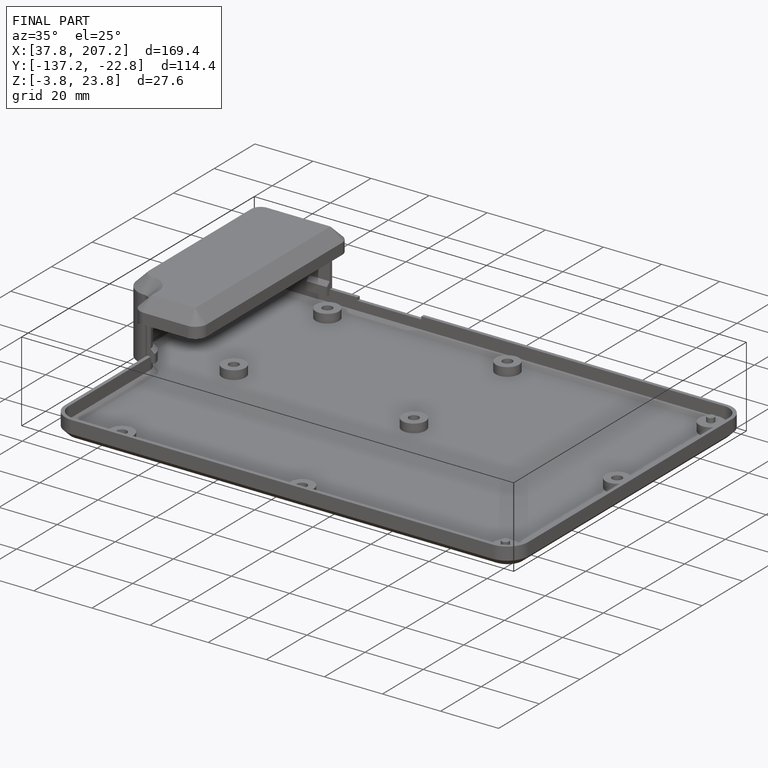
[diagram: finished part — iso view with bounding-box wireframe]
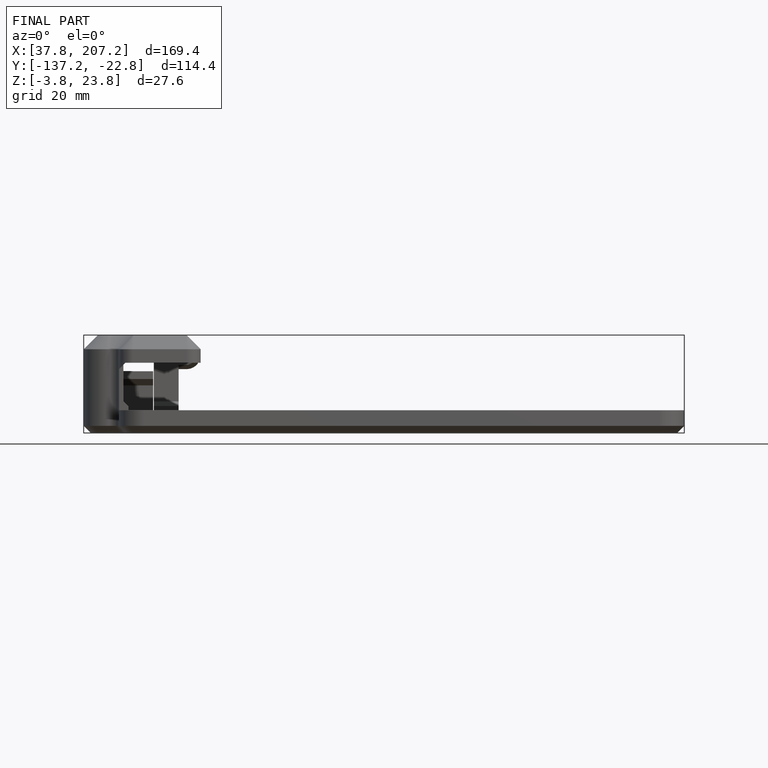
[diagram: finished part — front view with bounding-box wireframe]
